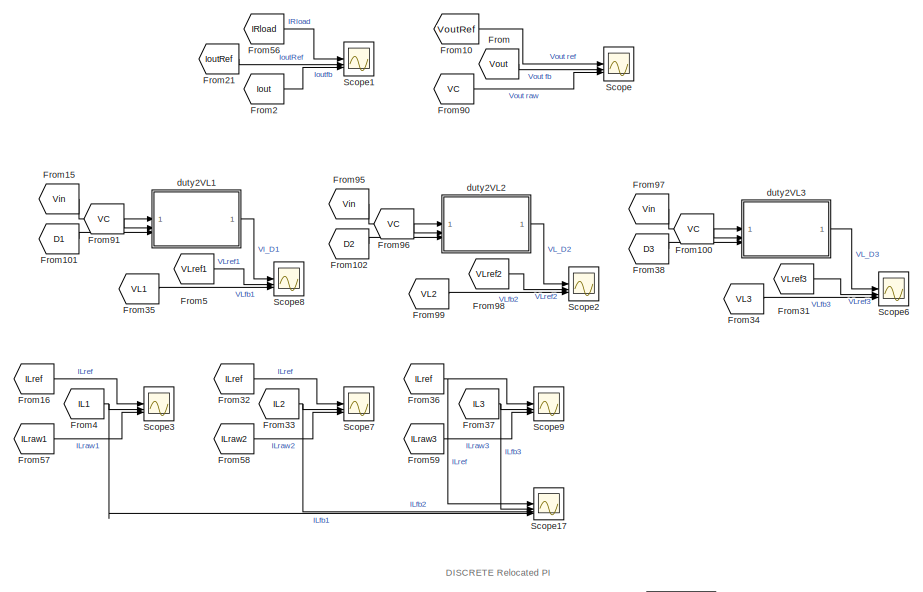
[diagram: root canvas - part 1/4, top center region]
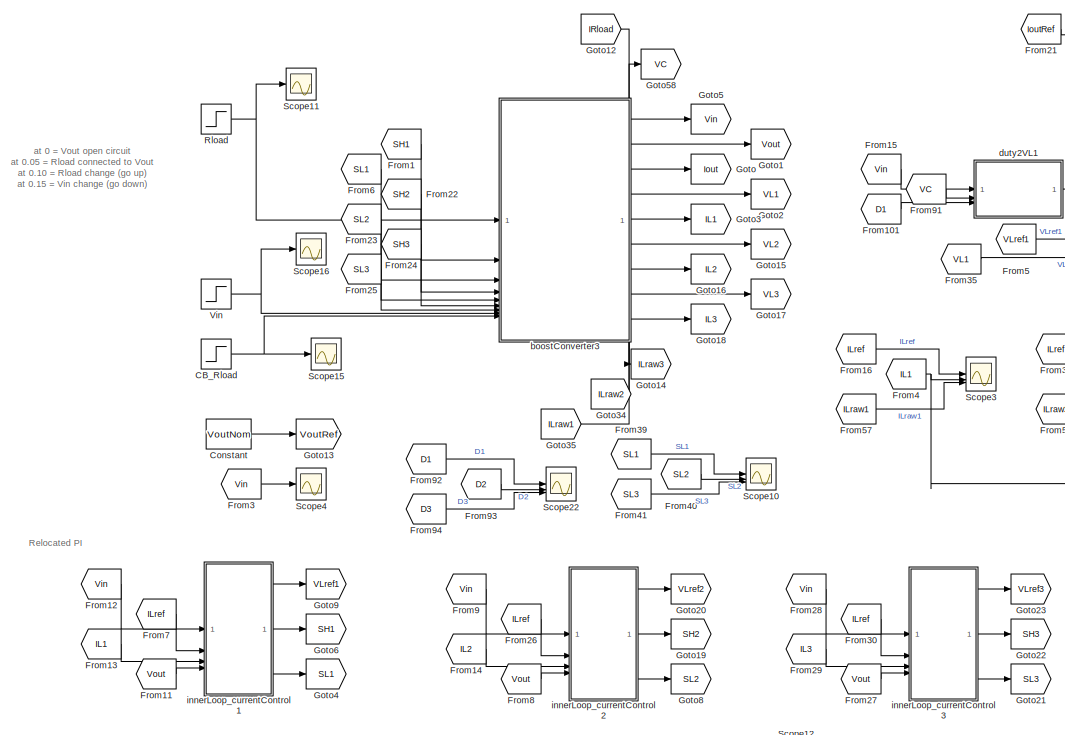
[diagram: root canvas - part 2/4, top left region]
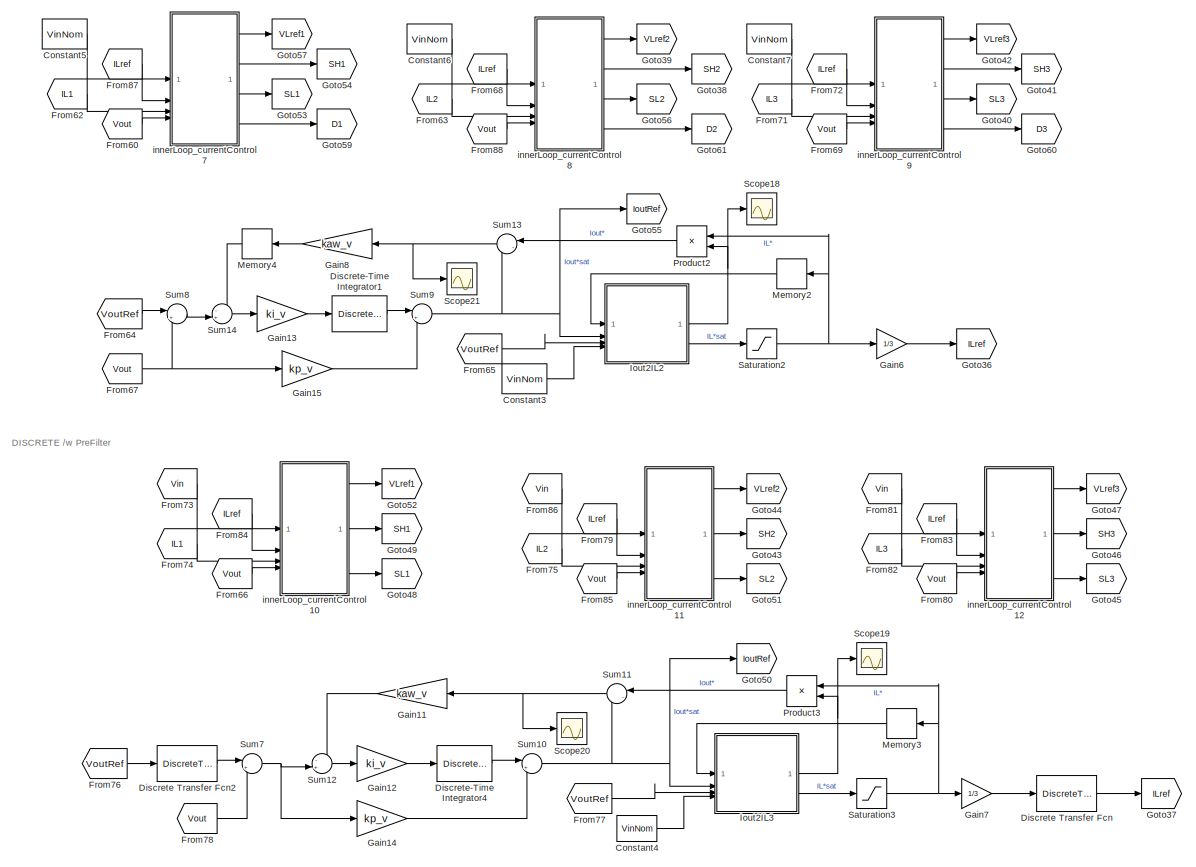
[diagram: root canvas - part 3/4, bottom right region]
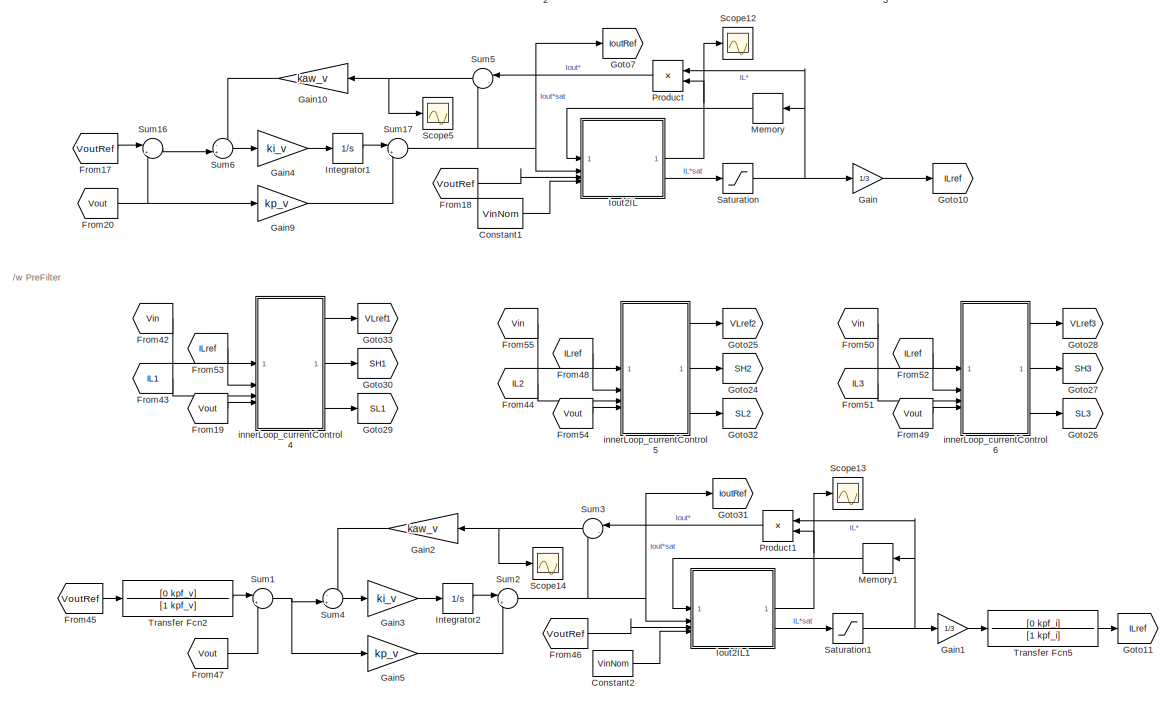
[diagram: root canvas - part 4/4, bottom left region]
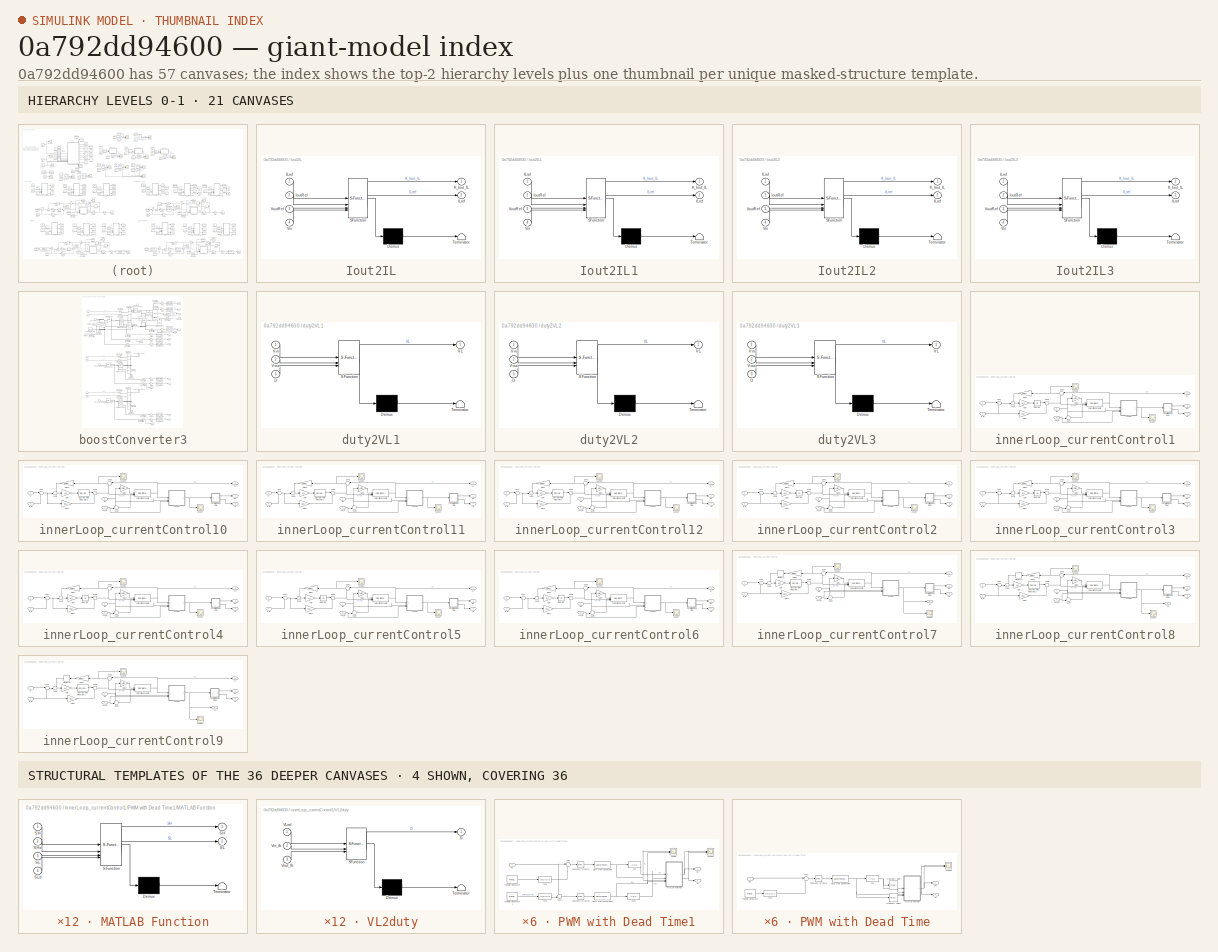
[diagram: thumbnail index - top-2 hierarchy levels (21 canvases) + 4 structural-template representatives of the remaining 36 canvases]
MODEL slx_0a792dd94600
KIND model
CONFIG AbsTol = auto
CONFIG EnableMultiTasking = off
CONFIG FixedStep = Tstep
CONFIG MaxStep = auto
CONFIG MinStep = auto
CONFIG RelTol = 1e-3
CONFIG SampleTimeConstraint = Unconstrained
CONFIG SolverName = VariableStepAuto
CONFIG StartTime = 0.0
CONFIG StopTime = Tsim_outLoop
BLOCK [Step] CB_Rload
  SampleTime = 0
  Time = 0.05
BLOCK [Constant] Constant
  Value = VoutNom
BLOCK [Constant] Constant1
  Commented = on
  Value = VinNom
BLOCK [Constant] Constant2
  Commented = on
  Value = VinNom
BLOCK [Constant] Constant3
  Value = VinNom
BLOCK [Constant] Constant4
  Commented = on
  Value = VinNom
BLOCK [Constant] Constant5
  Value = VinNom
BLOCK [Constant] Constant6
  Value = VinNom
BLOCK [Constant] Constant7
  Value = VinNom
BLOCK [DiscreteTransferFcn] Discrete Transfer Fcn
  Commented = on
  Denominator = zden_pf_i
  InputPortMap = u0
  Numerator = znum_pf_i
BLOCK [DiscreteTransferFcn] Discrete Transfer Fcn2
  Commented = on
  Denominator = zden_pf_v
  InputPortMap = u0
  Numerator = znum_pf_v
BLOCK [DiscreteIntegrator] Discrete-Time Integrator1
  ICPrevOutput = DiscIntNeverNeededParam
  ICPrevScaledInput = DiscIntNeverNeededParam
  InitialConditionSetting = Auto
  IntegratorMethod = Integration: Trapezoidal
  SampleTime = Tsw
BLOCK [DiscreteIntegrator] Discrete-Time Integrator4
  Commented = on
  ICPrevOutput = DiscIntNeverNeededParam
  ICPrevScaledInput = DiscIntNeverNeededParam
  InitialConditionSetting = Auto
  IntegratorMethod = Integration: Trapezoidal
  SampleTime = Tsw
BLOCK [From] From
  GotoTag = Vout
BLOCK [From] From1
  GotoTag = SH1
BLOCK [From] From10
  GotoTag = VoutRef
BLOCK [From] From100
  GotoTag = VC
BLOCK [From] From101
  GotoTag = D1
BLOCK [From] From102
  GotoTag = D2
BLOCK [From] From11
  Commented = on
  GotoTag = Vout
BLOCK [From] From12
  Commented = on
  GotoTag = Vin
BLOCK [From] From13
  Commented = on
  GotoTag = IL1
BLOCK [From] From14
  Commented = on
  GotoTag = IL2
BLOCK [From] From15
  GotoTag = Vin
BLOCK [From] From16
  GotoTag = ILref
BLOCK [From] From17
  Commented = on
  GotoTag = VoutRef
BLOCK [From] From18
  Commented = on
  GotoTag = VoutRef
BLOCK [From] From19
  Commented = on
  GotoTag = Vout
BLOCK [From] From2
  GotoTag = Iout
BLOCK [From] From20
  Commented = on
  GotoTag = Vout
BLOCK [From] From21
  GotoTag = IoutRef
BLOCK [From] From22
  GotoTag = SH2
BLOCK [From] From23
  GotoTag = SL2
BLOCK [From] From24
  GotoTag = SH3
BLOCK [From] From25
  GotoTag = SL3
BLOCK [From] From26
  Commented = on
  GotoTag = ILref
BLOCK [From] From27
  Commented = on
  GotoTag = Vout
BLOCK [From] From28
  Commented = on
  GotoTag = Vin
BLOCK [From] From29
  Commented = on
  GotoTag = IL3
BLOCK [From] From3
  GotoTag = Vin
BLOCK [From] From30
  Commented = on
  GotoTag = ILref
BLOCK [From] From31
  GotoTag = VLref3
BLOCK [From] From32
  GotoTag = ILref
BLOCK [From] From33
  GotoTag = IL2
BLOCK [From] From34
  GotoTag = VL3
BLOCK [From] From35
  GotoTag = VL1
BLOCK [From] From36
  GotoTag = ILref
BLOCK [From] From37
  GotoTag = IL3
BLOCK [From] From38
  GotoTag = D3
BLOCK [From] From39
  GotoTag = SL1
BLOCK [From] From4
  GotoTag = IL1
BLOCK [From] From40
  GotoTag = SL2
BLOCK [From] From41
  GotoTag = SL3
BLOCK [From] From42
  Commented = on
  GotoTag = Vin
BLOCK [From] From43
  Commented = on
  GotoTag = IL1
BLOCK [From] From44
  Commented = on
  GotoTag = IL2
BLOCK [From] From45
  Commented = on
  GotoTag = VoutRef
BLOCK [From] From46
  Commented = on
  GotoTag = VoutRef
BLOCK [From] From47
  Commented = on
  GotoTag = Vout
BLOCK [From] From48
  Commented = on
  GotoTag = ILref
BLOCK [From] From49
  Commented = on
  GotoTag = Vout
BLOCK [From] From5
  GotoTag = VLref1
BLOCK [From] From50
  Commented = on
  GotoTag = Vin
BLOCK [From] From51
  Commented = on
  GotoTag = IL3
BLOCK [From] From52
  Commented = on
  GotoTag = ILref
BLOCK [From] From53
  Commented = on
  GotoTag = ILref
BLOCK [From] From54
  Commented = on
  GotoTag = Vout
BLOCK [From] From55
  Commented = on
  GotoTag = Vin
BLOCK [From] From56
  GotoTag = IRload
BLOCK [From] From57
  GotoTag = ILraw1
BLOCK [From] From58
  GotoTag = ILraw2
BLOCK [From] From59
  GotoTag = ILraw3
BLOCK [From] From6
  GotoTag = SL1
BLOCK [From] From60
  GotoTag = Vout
BLOCK [From] From62
  GotoTag = IL1
BLOCK [From] From63
  GotoTag = IL2
BLOCK [From] From64
  GotoTag = VoutRef
BLOCK [From] From65
  GotoTag = VoutRef
BLOCK [From] From66
  Commented = on
  GotoTag = Vout
BLOCK [From] From67
  GotoTag = Vout
BLOCK [From] From68
  GotoTag = ILref
BLOCK [From] From69
  GotoTag = Vout
BLOCK [From] From7
  Commented = on
  GotoTag = ILref
BLOCK [From] From71
  GotoTag = IL3
BLOCK [From] From72
  GotoTag = ILref
BLOCK [From] From73
  Commented = on
  GotoTag = Vin
BLOCK [From] From74
  Commented = on
  GotoTag = IL1
BLOCK [From] From75
  Commented = on
  GotoTag = IL2
BLOCK [From] From76
  Commented = on
  GotoTag = VoutRef
BLOCK [From] From77
  Commented = on
  GotoTag = VoutRef
BLOCK [From] From78
  Commented = on
  GotoTag = Vout
BLOCK [From] From79
  Commented = on
  GotoTag = ILref
BLOCK [From] From8
  Commented = on
  GotoTag = Vout
BLOCK [From] From80
  Commented = on
  GotoTag = Vout
BLOCK [From] From81
  Commented = on
  GotoTag = Vin
BLOCK [From] From82
  Commented = on
  GotoTag = IL3
BLOCK [From] From83
  Commented = on
  GotoTag = ILref
BLOCK [From] From84
  Commented = on
  GotoTag = ILref
BLOCK [From] From85
  Commented = on
  GotoTag = Vout
BLOCK [From] From86
  Commented = on
  GotoTag = Vin
BLOCK [From] From87
  GotoTag = ILref
BLOCK [From] From88
  GotoTag = Vout
BLOCK [From] From9
  Commented = on
  GotoTag = Vin
BLOCK [From] From90
  GotoTag = VC
BLOCK [From] From91
  GotoTag = VC
BLOCK [From] From92
  GotoTag = D1
BLOCK [From] From93
  GotoTag = D2
BLOCK [From] From94
  GotoTag = D3
BLOCK [From] From95
  GotoTag = Vin
BLOCK [From] From96
  GotoTag = VC
BLOCK [From] From97
  GotoTag = Vin
BLOCK [From] From98
  GotoTag = VLref2
BLOCK [From] From99
  GotoTag = VL2
BLOCK [Gain] Gain
  Commented = on
  Gain = 1/3
BLOCK [Gain] Gain1
  Commented = on
  Gain = 1/3
BLOCK [Gain] Gain10
  Commented = on
  Gain = kaw_v
  NameLocation = top
BLOCK [Gain] Gain11
  Commented = on
  Gain = kaw_v
  NameLocation = top
BLOCK [Gain] Gain12
  Commented = on
  Gain = ki_v
BLOCK [Gain] Gain13
  Gain = ki_v
BLOCK [Gain] Gain14
  Commented = on
  Gain = kp_v
BLOCK [Gain] Gain15
  Gain = kp_v
BLOCK [Gain] Gain2
  Commented = on
  Gain = kaw_v
  NameLocation = top
BLOCK [Gain] Gain3
  Commented = on
  Gain = ki_v
BLOCK [Gain] Gain4
  Commented = on
  Gain = ki_v
BLOCK [Gain] Gain5
  Commented = on
  Gain = kp_v
BLOCK [Gain] Gain6
  Gain = 1/3
BLOCK [Gain] Gain7
  Commented = on
  Gain = 1/3
BLOCK [Gain] Gain8
  Gain = kaw_v
  NameLocation = top
BLOCK [Gain] Gain9
  Commented = on
  Gain = kp_v
BLOCK [Goto] Goto
  GotoTag = Iout
BLOCK [Goto] Goto1
  GotoTag = Vout
BLOCK [Goto] Goto10
  Commented = on
  GotoTag = ILref
BLOCK [Goto] Goto11
  Commented = on
  GotoTag = ILref
BLOCK [Goto] Goto12
  GotoTag = IRload
BLOCK [Goto] Goto13
  GotoTag = VoutRef
BLOCK [Goto] Goto14
  GotoTag = ILraw3
BLOCK [Goto] Goto15
  GotoTag = VL2
BLOCK [Goto] Goto16
  GotoTag = IL2
BLOCK [Goto] Goto17
  GotoTag = VL3
BLOCK [Goto] Goto18
  GotoTag = IL3
BLOCK [Goto] Goto19
  Commented = on
  GotoTag = SH2
BLOCK [Goto] Goto2
  GotoTag = VL1
BLOCK [Goto] Goto20
  Commented = on
  GotoTag = VLref2
BLOCK [Goto] Goto21
  Commented = on
  GotoTag = SL3
BLOCK [Goto] Goto22
  Commented = on
  GotoTag = SH3
BLOCK [Goto] Goto23
  Commented = on
  GotoTag = VLref3
BLOCK [Goto] Goto24
  Commented = on
  GotoTag = SH2
BLOCK [Goto] Goto25
  Commented = on
  GotoTag = VLref2
BLOCK [Goto] Goto26
  Commented = on
  GotoTag = SL3
BLOCK [Goto] Goto27
  Commented = on
  GotoTag = SH3
BLOCK [Goto] Goto28
  Commented = on
  GotoTag = VLref3
BLOCK [Goto] Goto29
  Commented = on
  GotoTag = SL1
BLOCK [Goto] Goto3
  GotoTag = IL1
BLOCK [Goto] Goto30
  Commented = on
  GotoTag = SH1
BLOCK [Goto] Goto31
  Commented = on
  GotoTag = IoutRef
BLOCK [Goto] Goto32
  Commented = on
  GotoTag = SL2
BLOCK [Goto] Goto33
  Commented = on
  GotoTag = VLref1
BLOCK [Goto] Goto34
  GotoTag = ILraw2
BLOCK [Goto] Goto35
  GotoTag = ILraw1
BLOCK [Goto] Goto36
  GotoTag = ILref
BLOCK [Goto] Goto37
  Commented = on
  GotoTag = ILref
BLOCK [Goto] Goto38
  GotoTag = SH2
BLOCK [Goto] Goto39
  GotoTag = VLref2
BLOCK [Goto] Goto4
  Commented = on
  GotoTag = SL1
BLOCK [Goto] Goto40
  GotoTag = SL3
BLOCK [Goto] Goto41
  GotoTag = SH3
BLOCK [Goto] Goto42
  GotoTag = VLref3
BLOCK [Goto] Goto43
  Commented = on
  GotoTag = SH2
BLOCK [Goto] Goto44
  Commented = on
  GotoTag = VLref2
BLOCK [Goto] Goto45
  Commented = on
  GotoTag = SL3
BLOCK [Goto] Goto46
  Commented = on
  GotoTag = SH3
BLOCK [Goto] Goto47
  Commented = on
  GotoTag = VLref3
BLOCK [Goto] Goto48
  Commented = on
  GotoTag = SL1
BLOCK [Goto] Goto49
  Commented = on
  GotoTag = SH1
BLOCK [Goto] Goto5
  GotoTag = Vin
BLOCK [Goto] Goto50
  Commented = on
  GotoTag = IoutRef
BLOCK [Goto] Goto51
  Commented = on
  GotoTag = SL2
BLOCK [Goto] Goto52
  Commented = on
  GotoTag = VLref1
BLOCK [Goto] Goto53
  GotoTag = SL1
BLOCK [Goto] Goto54
  GotoTag = SH1
BLOCK [Goto] Goto55
  GotoTag = IoutRef
BLOCK [Goto] Goto56
  GotoTag = SL2
BLOCK [Goto] Goto57
  GotoTag = VLref1
BLOCK [Goto] Goto58
  GotoTag = VC
BLOCK [Goto] Goto59
  GotoTag = D1
BLOCK [Goto] Goto6
  Commented = on
  GotoTag = SH1
BLOCK [Goto] Goto60
  GotoTag = D3
BLOCK [Goto] Goto61
  GotoTag = D2
BLOCK [Goto] Goto7
  Commented = on
  GotoTag = IoutRef
BLOCK [Goto] Goto8
  Commented = on
  GotoTag = SL2
BLOCK [Goto] Goto9
  Commented = on
  GotoTag = VLref1
BLOCK [Integrator] Integrator1
  Commented = on
BLOCK [Integrator] Integrator2
  Commented = on
BLOCK [SubSystem] Iout2IL
  Commented = on
  ErrorFcn = Stateflow.Translate.translate
  PermitHierarchicalResolution = ExplicitOnly
  SFBlockType = MATLAB Function
  TreatAsAtomicUnit = on
BLOCK [Demux] Iout2IL/ Demux 
  Outputs = 1
BLOCK [S-Function] Iout2IL/ SFunction 
  EnableBusSupport = on
  FunctionName = sf_sfun
  Parameters = RserL
  PortCounts = [4 3]
  SFcnIsStateOwnerBlock = off
  SFunctionDeploymentMode = off
  Tag = Stateflow S-Function 3
BLOCK [Terminator] Iout2IL/ Terminator 
BLOCK [Outport] Iout2IL/ILref
  Port = 2
  VectorParamsAs1DForOutWhenUnconnected = off
BLOCK [Inport] Iout2IL/ILref 
BLOCK [Inport] Iout2IL/IoutRef
  Port = 2
BLOCK [Outport] Iout2IL/K_Iout_IL
  VectorParamsAs1DForOutWhenUnconnected = off
BLOCK [Inport] Iout2IL/Vin
  Port = 4
BLOCK [Inport] Iout2IL/VoutRef
  Port = 3
BLOCK [SubSystem] Iout2IL1
  Commented = on
  ErrorFcn = Stateflow.Translate.translate
  PermitHierarchicalResolution = ExplicitOnly
  SFBlockType = MATLAB Function
  TreatAsAtomicUnit = on
BLOCK [Demux] Iout2IL1/ Demux 
  Outputs = 1
BLOCK [S-Function] Iout2IL1/ SFunction 
  EnableBusSupport = off
  FunctionName = sf_sfun
  Parameters = RserL
  PortCounts = [4 3]
  SFcnIsStateOwnerBlock = off
  SFunctionDeploymentMode = off
  Tag = Stateflow S-Function 6
BLOCK [Terminator] Iout2IL1/ Terminator 
BLOCK [Outport] Iout2IL1/ILref
  Port = 2
  VectorParamsAs1DForOutWhenUnconnected = off
BLOCK [Inport] Iout2IL1/ILref 
BLOCK [Inport] Iout2IL1/IoutRef
  Port = 2
BLOCK [Outport] Iout2IL1/K_Iout_IL
  VectorParamsAs1DForOutWhenUnconnected = off
BLOCK [Inport] Iout2IL1/Vin
  Port = 4
BLOCK [Inport] Iout2IL1/VoutRef
  Port = 3
BLOCK [SubSystem] Iout2IL2
  ErrorFcn = Stateflow.Translate.translate
  PermitHierarchicalResolution = ExplicitOnly
  SFBlockType = MATLAB Function
  TreatAsAtomicUnit = on
BLOCK [Demux] Iout2IL2/ Demux 
  Outputs = 1
BLOCK [S-Function] Iout2IL2/ SFunction 
  EnableBusSupport = on
  FunctionName = sf_sfun
  Parameters = RserL
  PortCounts = [4 3]
  SFcnIsStateOwnerBlock = off
  SFunctionDeploymentMode = off
  Tag = Stateflow S-Function 8
BLOCK [Terminator] Iout2IL2/ Terminator 
BLOCK [Outport] Iout2IL2/ILref
  Port = 2
  VectorParamsAs1DForOutWhenUnconnected = off
BLOCK [Inport] Iout2IL2/ILref 
BLOCK [Inport] Iout2IL2/IoutRef
  Port = 2
BLOCK [Outport] Iout2IL2/K_Iout_IL
  VectorParamsAs1DForOutWhenUnconnected = off
BLOCK [Inport] Iout2IL2/Vin
  Port = 4
BLOCK [Inport] Iout2IL2/VoutRef
  Port = 3
BLOCK [SubSystem] Iout2IL3
  Commented = on
  ErrorFcn = Stateflow.Translate.translate
  PermitHierarchicalResolution = ExplicitOnly
  SFBlockType = MATLAB Function
  TreatAsAtomicUnit = on
BLOCK [Demux] Iout2IL3/ Demux 
  Outputs = 1
BLOCK [S-Function] Iout2IL3/ SFunction 
  EnableBusSupport = on
  FunctionName = sf_sfun
  Parameters = RserL
  PortCounts = [4 3]
  SFcnIsStateOwnerBlock = off
  SFunctionDeploymentMode = off
  Tag = Stateflow S-Function 16
BLOCK [Terminator] Iout2IL3/ Terminator 
BLOCK [Outport] Iout2IL3/ILref
  Port = 2
  VectorParamsAs1DForOutWhenUnconnected = off
BLOCK [Inport] Iout2IL3/ILref 
BLOCK [Inport] Iout2IL3/IoutRef
  Port = 2
BLOCK [Outport] Iout2IL3/K_Iout_IL
  VectorParamsAs1DForOutWhenUnconnected = off
BLOCK [Inport] Iout2IL3/Vin
  Port = 4
BLOCK [Inport] Iout2IL3/VoutRef
  Port = 3
BLOCK [Memory] Memory
  Commented = on
  NameLocation = top
BLOCK [Memory] Memory1
  Commented = on
  NameLocation = top
BLOCK [Memory] Memory2
  NameLocation = top
BLOCK [Memory] Memory3
  Commented = on
  NameLocation = top
BLOCK [Memory] Memory4
  NameLocation = top
BLOCK [Product] Product
  Commented = on
  NameLocation = top
BLOCK [Product] Product1
  Commented = on
  NameLocation = top
BLOCK [Product] Product2
  NameLocation = top
BLOCK [Product] Product3
  Commented = on
  NameLocation = top
BLOCK [Step] Rload
  After = Rload*2
  Before = Rload
  SampleTime = 0
  Time = 0.1
BLOCK [Saturate] Saturation
  Commented = on
  LowerLimit = -ILmax
  UpperLimit = ILmax
BLOCK [Saturate] Saturation1
  Commented = on
  LowerLimit = -ILmax
  UpperLimit = ILmax
BLOCK [Saturate] Saturation2
  LowerLimit = -ILmax
  UpperLimit = ILmax
BLOCK [Saturate] Saturation3
  Commented = on
  LowerLimit = -ILmax
  UpperLimit = ILmax
BLOCK [Scope] Scope
  Floating = off
  NumInputPorts = 3
  ScopeSpecificationString = Simulink.scopes.TimeScopeBlockCfg('CurrentConfiguration', extmgr.ConfigurationSet(extmgr.Configuration('Core','General UI',true),extmgr.Configuration('Core','Source UI',true),extmgr.Configuration('Sources','WiredSimulink',true,'DataLoggingVariableName','ScopeData1'),extmgr.Configuration('Visuals','Time Domain',true,'SerializedDisplays',{struct('MinYLimReal','0','MaxYLimReal','70','YLabelReal','','...<+1524ch>
BLOCK [Scope] Scope1
  Floating = off
  NumInputPorts = 3
  ScopeSpecificationString = Simulink.scopes.TimeScopeBlockCfg('CurrentConfiguration', extmgr.ConfigurationSet(extmgr.Configuration('Core','General UI',true),extmgr.Configuration('Core','Source UI',true),extmgr.Configuration('Sources','WiredSimulink',true,'DataLoggingVariableName','ScopeData1'),extmgr.Configuration('Visuals','Time Domain',true,'SerializedDisplays',{struct('MinYLimReal','-16.24874','MaxYLimReal','41.06087','YL...<+1548ch>
BLOCK [Scope] Scope10
  Floating = off
  NumInputPorts = 3
  ScopeSpecificationString = Simulink.scopes.TimeScopeBlockCfg('CurrentConfiguration', extmgr.ConfigurationSet(extmgr.Configuration('Core','General UI',true),extmgr.Configuration('Core','Source UI',true),extmgr.Configuration('Sources','WiredSimulink',true,'DataLoggingVariableName','ScopeData5'),extmgr.Configuration('Visuals','Time Domain',true,'SerializedDisplays',{struct('MinYLimReal','-0.125','MaxYLimReal','1.125','YLabelRe...<+1474ch>
BLOCK [Scope] Scope11
  Floating = off
  NumInputPorts = 1
  ScopeSpecificationString = Simulink.scopes.TimeScopeBlockCfg('CurrentConfiguration', extmgr.ConfigurationSet(extmgr.Configuration('Core','General UI',true),extmgr.Configuration('Core','Source UI',true),extmgr.Configuration('Sources','WiredSimulink',true,'DataLoggingVariableName','ScopeData1'),extmgr.Configuration('Visuals','Time Domain',true,'SerializedDisplays',{struct('MinYLimReal','2.5','MaxYLimReal','22.5','YLabelReal',...<+1337ch>
BLOCK [Scope] Scope12
  Commented = on
  Floating = off
  NumInputPorts = 1
  ScopeSpecificationString = Simulink.scopes.TimeScopeBlockCfg('CurrentConfiguration', extmgr.ConfigurationSet(extmgr.Configuration('Core','General UI',true),extmgr.Configuration('Core','Source UI',true),extmgr.Configuration('Sources','WiredSimulink',true,'DataLoggingVariableName','ScopeData1'),extmgr.Configuration('Visuals','Time Domain',true,'SerializedDisplays',{struct('MinYLimReal','1.04374','MaxYLimReal','1.64016','YLabe...<+1374ch>
BLOCK [Scope] Scope13
  Commented = on
  Floating = off
  NumInputPorts = 1
  ScopeSpecificationString = Simulink.scopes.TimeScopeBlockCfg('CurrentConfiguration', extmgr.ConfigurationSet(extmgr.Configuration('Core','General UI',true),extmgr.Configuration('Core','Source UI',true),extmgr.Configuration('Sources','WiredSimulink',true,'DataLoggingVariableName','ScopeData3'),extmgr.Configuration('Visuals','Time Domain',true,'SerializedDisplays',{struct('MinYLimReal','1.04374','MaxYLimReal','1.64016','YLabe...<+1374ch>
BLOCK [Scope] Scope14
  Commented = on
  Floating = off
  NumInputPorts = 1
  ScopeSpecificationString = Simulink.scopes.TimeScopeBlockCfg('CurrentConfiguration', extmgr.ConfigurationSet(extmgr.Configuration('Core','General UI',true),extmgr.Configuration('Core','Source UI',true),extmgr.Configuration('Sources','WiredSimulink',true,'DataLoggingVariableName','ScopeData4'),extmgr.Configuration('Visuals','Time Domain',true,'SerializedDisplays',{struct('MinYLimReal','-0.0000000000000011','MaxYLimReal','0.0...<+1570ch>
BLOCK [Scope] Scope15
  Floating = off
  NumInputPorts = 1
  ScopeSpecificationString = Simulink.scopes.TimeScopeBlockCfg('CurrentConfiguration', extmgr.ConfigurationSet(extmgr.Configuration('Core','General UI',true),extmgr.Configuration('Core','Source UI',true),extmgr.Configuration('Sources','WiredSimulink',true,'DataLoggingVariableName','ScopeData1'),extmgr.Configuration('Visuals','Time Domain',true,'SerializedDisplays',{struct('MinYLimReal','0.9','MaxYLimReal','1.1','YLabelReal','...<+1333ch>
BLOCK [Scope] Scope16
  Floating = off
  NumInputPorts = 1
  ScopeSpecificationString = Simulink.scopes.TimeScopeBlockCfg('CurrentConfiguration', extmgr.ConfigurationSet(extmgr.Configuration('Core','General UI',true),extmgr.Configuration('Core','Source UI',true),extmgr.Configuration('Sources','WiredSimulink',true,'DataLoggingVariableName','ScopeData2'),extmgr.Configuration('Visuals','Time Domain',true,'SerializedDisplays',{struct('MinYLimReal','18.75','MaxYLimReal','31.25','YLabelRea...<+1344ch>
BLOCK [Scope] Scope17
  Floating = off
  NumInputPorts = 4
  ScopeSpecificationString = Simulink.scopes.TimeScopeBlockCfg('CurrentConfiguration', extmgr.ConfigurationSet(extmgr.Configuration('Core','General UI',true),extmgr.Configuration('Core','Source UI',true),extmgr.Configuration('Sources','WiredSimulink',true,'DataLoggingVariableName','ScopeData1'),extmgr.Configuration('Visuals','Time Domain',true,'SerializedDisplays',{struct('MinYLimReal','-8','MaxYLimReal','13','YLabelReal','',...<+1617ch>
BLOCK [Scope] Scope18
  Floating = off
  NumInputPorts = 1
  ScopeSpecificationString = Simulink.scopes.TimeScopeBlockCfg('CurrentConfiguration', extmgr.ConfigurationSet(extmgr.Configuration('Core','General UI',true),extmgr.Configuration('Core','Source UI',true),extmgr.Configuration('Sources','WiredSimulink',true,'DataLoggingVariableName','ScopeData1'),extmgr.Configuration('Visuals','Time Domain',true,'SerializedDisplays',{struct('MinYLimReal','1.04374','MaxYLimReal','1.64016','YLabe...<+1374ch>
BLOCK [Scope] Scope19
  Commented = on
  Floating = off
  NumInputPorts = 1
  ScopeSpecificationString = Simulink.scopes.TimeScopeBlockCfg('CurrentConfiguration', extmgr.ConfigurationSet(extmgr.Configuration('Core','General UI',true),extmgr.Configuration('Core','Source UI',true),extmgr.Configuration('Sources','WiredSimulink',true,'DataLoggingVariableName','ScopeData2'),extmgr.Configuration('Visuals','Time Domain',true,'SerializedDisplays',{struct('MinYLimReal','1.04374','MaxYLimReal','1.64016','YLabe...<+1374ch>
BLOCK [Scope] Scope2
  Floating = off
  NumInputPorts = 3
  ScopeSpecificationString = Simulink.scopes.TimeScopeBlockCfg('CurrentConfiguration', extmgr.ConfigurationSet(extmgr.Configuration('Core','General UI',true),extmgr.Configuration('Core','Source UI',true),extmgr.Configuration('Sources','WiredSimulink',true,'DataLoggingVariableName','ScopeData8'),extmgr.Configuration('Visuals','Time Domain',true,'SerializedDisplays',{struct('MinYLimReal','-113.80492','MaxYLimReal','151.46488','...<+1506ch>
BLOCK [Scope] Scope20
  Commented = on
  Floating = off
  NumInputPorts = 1
  ScopeSpecificationString = Simulink.scopes.TimeScopeBlockCfg('CurrentConfiguration', extmgr.ConfigurationSet(extmgr.Configuration('Core','General UI',true),extmgr.Configuration('Core','Source UI',true),extmgr.Configuration('Sources','WiredSimulink',true,'DataLoggingVariableName','ScopeData3'),extmgr.Configuration('Visuals','Time Domain',true,'SerializedDisplays',{struct('MinYLimReal','-0.0000000000000011','MaxYLimReal','0.0...<+1570ch>
BLOCK [Scope] Scope21
  Floating = off
  NumInputPorts = 1
  ScopeSpecificationString = Simulink.scopes.TimeScopeBlockCfg('CurrentConfiguration', extmgr.ConfigurationSet(extmgr.Configuration('Core','General UI',true),extmgr.Configuration('Core','Source UI',true),extmgr.Configuration('Sources','WiredSimulink',true,'DataLoggingVariableName','ScopeData4'),extmgr.Configuration('Visuals','Time Domain',true,'SerializedDisplays',{struct('MinYLimReal','-0.98393','MaxYLimReal','0.10933','YLab...<+1482ch>
BLOCK [Scope] Scope22
  Floating = off
  NumInputPorts = 3
  ScopeSpecificationString = Simulink.scopes.TimeScopeBlockCfg('CurrentConfiguration', extmgr.ConfigurationSet(extmgr.Configuration('Core','General UI',true),extmgr.Configuration('Core','Source UI',true),extmgr.Configuration('Sources','WiredSimulink',true,'DataLoggingVariableName','ScopeData2'),extmgr.Configuration('Visuals','Time Domain',true,'SerializedDisplays',{struct('MinYLimReal','-0.1','MaxYLimReal','1','YLabelReal',''...<+1597ch>
BLOCK [Scope] Scope3
  Floating = off
  NumInputPorts = 3
  ScopeSpecificationString = Simulink.scopes.TimeScopeBlockCfg('CurrentConfiguration', extmgr.ConfigurationSet(extmgr.Configuration('Core','General UI',true),extmgr.Configuration('Core','Source UI',true),extmgr.Configuration('Sources','WiredSimulink',true,'DataLoggingVariableName','ScopeData3'),extmgr.Configuration('Visuals','Time Domain',true,'SerializedDisplays',{struct('MinYLimReal','-7.68117','MaxYLimReal','13.93927','YLa...<+1612ch>
BLOCK [Scope] Scope4
  Floating = off
  NumInputPorts = 1
  ScopeSpecificationString = Simulink.scopes.TimeScopeBlockCfg('CurrentConfiguration', extmgr.ConfigurationSet(extmgr.Configuration('Core','General UI',true),extmgr.Configuration('Core','Source UI',true),extmgr.Configuration('Sources','WiredSimulink',true,'DataLoggingVariableName','ScopeData4'),extmgr.Configuration('Visuals','Time Domain',true),extmgr.Configuration('Tools','Plot Navigation',true),extmgr.Configuration('Tools',...<+40ch>
BLOCK [Scope] Scope5
  Commented = on
  Floating = off
  NumInputPorts = 1
  ScopeSpecificationString = Simulink.scopes.TimeScopeBlockCfg('CurrentConfiguration', extmgr.ConfigurationSet(extmgr.Configuration('Core','General UI',true),extmgr.Configuration('Core','Source UI',true),extmgr.Configuration('Sources','WiredSimulink',true,'DataLoggingVariableName','ScopeData2'),extmgr.Configuration('Visuals','Time Domain',true,'SerializedDisplays',{struct('MinYLimReal','-0.98393','MaxYLimReal','0.10933','YLab...<+1482ch>
BLOCK [Scope] Scope6
  Floating = off
  NumInputPorts = 3
  ScopeSpecificationString = Simulink.scopes.TimeScopeBlockCfg('CurrentConfiguration', extmgr.ConfigurationSet(extmgr.Configuration('Core','General UI',true),extmgr.Configuration('Core','Source UI',true),extmgr.Configuration('Sources','WiredSimulink',true,'DataLoggingVariableName','ScopeData9'),extmgr.Configuration('Visuals','Time Domain',true,'SerializedDisplays',{struct('MinYLimReal','-33.23663','MaxYLimReal','37.02629','YL...<+1520ch>
BLOCK [Scope] Scope7
  Floating = off
  NumInputPorts = 3
  ScopeSpecificationString = Simulink.scopes.TimeScopeBlockCfg('CurrentConfiguration', extmgr.ConfigurationSet(extmgr.Configuration('Core','General UI',true),extmgr.Configuration('Core','Source UI',true),extmgr.Configuration('Sources','WiredSimulink',true,'DataLoggingVariableName','ScopeData2'),extmgr.Configuration('Visuals','Time Domain',true,'SerializedDisplays',{struct('MinYLimReal','-7.72731','MaxYLimReal','13.94439','YLa...<+1545ch>
BLOCK [Scope] Scope8
  Floating = off
  NumInputPorts = 3
  ScopeSpecificationString = Simulink.scopes.TimeScopeBlockCfg('CurrentConfiguration', extmgr.ConfigurationSet(extmgr.Configuration('Core','General UI',true),extmgr.Configuration('Core','Source UI',true),extmgr.Configuration('Sources','WiredSimulink',true,'DataLoggingVariableName','ScopeData10'),extmgr.Configuration('Visuals','Time Domain',true,'SerializedDisplays',{struct('MinYLimReal','-33.73418','MaxYLimReal','37.07114','Y...<+1548ch>
BLOCK [Scope] Scope9
  Floating = off
  NumInputPorts = 3
  ScopeSpecificationString = Simulink.scopes.TimeScopeBlockCfg('CurrentConfiguration', extmgr.ConfigurationSet(extmgr.Configuration('Core','General UI',true),extmgr.Configuration('Core','Source UI',true),extmgr.Configuration('Sources','WiredSimulink',true,'DataLoggingVariableName','ScopeData4'),extmgr.Configuration('Visuals','Time Domain',true,'SerializedDisplays',{struct('MinYLimReal','-52.0635','MaxYLimReal','155.812','YLab...<+1442ch>
BLOCK [Sum] Sum1
  Commented = on
  Inputs = |+-
BLOCK [Sum] Sum10
  Commented = on
  Inputs = |++
BLOCK [Sum] Sum11
  Commented = on
  Inputs = |-+
  NameLocation = top
BLOCK [Sum] Sum12
  Commented = on
  Inputs = -+|
BLOCK [Sum] Sum13
  Inputs = |-+
  NameLocation = top
BLOCK [Sum] Sum14
  Inputs = -+|
BLOCK [Sum] Sum16
  Commented = on
  Inputs = |+-
BLOCK [Sum] Sum17
  Commented = on
  Inputs = |+-
BLOCK [Sum] Sum2
  Commented = on
  Inputs = |++
BLOCK [Sum] Sum3
  Commented = on
  Inputs = |-+
  NameLocation = top
BLOCK [Sum] Sum4
  Commented = on
  Inputs = -+|
BLOCK [Sum] Sum5
  Commented = on
  Inputs = |-+
  NameLocation = top
BLOCK [Sum] Sum6
  Commented = on
  Inputs = -+|
BLOCK [Sum] Sum7
  Commented = on
  Inputs = |+-
BLOCK [Sum] Sum8
  Inputs = |+-
BLOCK [Sum] Sum9
  Inputs = |+-
BLOCK [TransferFcn] Transfer Fcn2
  Commented = on
  Denominator = [1 kpf_v]
  Numerator = [0 kpf_v]
BLOCK [TransferFcn] Transfer Fcn5
  Commented = on
  Denominator = [1 kpf_i]
  Numerator = [0 kpf_i]
BLOCK [Step] Vin
  After = 20
  Before = VinNom
  SampleTime = 0
  Time = 0.15
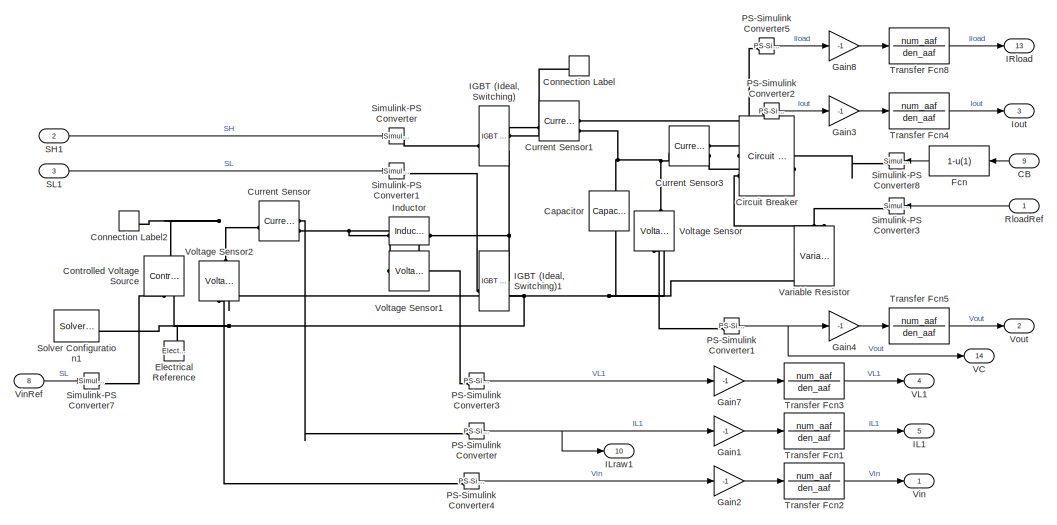
[diagram: boostConverter3 - part 1/2, full width, top band]
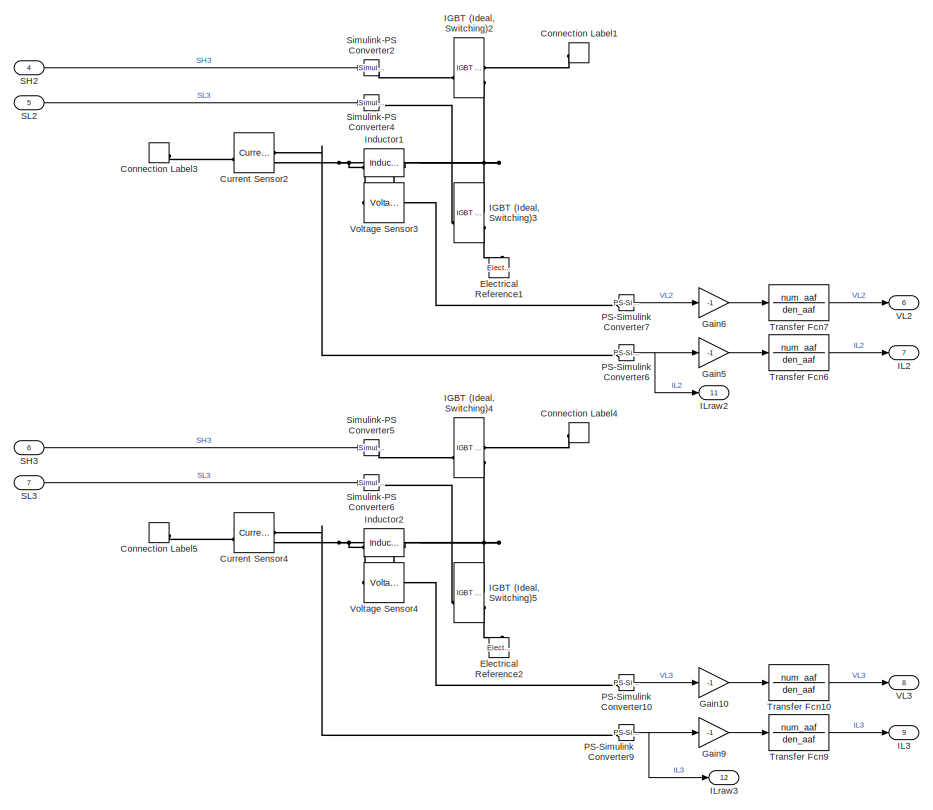
[diagram: boostConverter3 - part 2/2, full width, bottom band]
BLOCK [SubSystem] boostConverter3
  NameLocation = top
  PortSchema = {"entries":[{"content":{"sides":[{"content":{"connectorIds":["In1","In2","In3","In4","In5","In6","In7","In8","In9"]},"type":"ConnectorPlacement.EquallySpacedRectSide","uuid":"b55511d0-facb-4a91-89ed-441d6ed333ad"},{"content":{"connectorIds":["Out1","Out2","Out3","Out4","Out5","Out6","Out7","Out8","Out9"],"side":"RIGHT"},"type":"ConnectorPlacement.EquallySpacedRectSide","uuid":"ead4c989-543f-44ce-a...<+526ch>
BLOCK [Inport] boostConverter3/CB
  NameLocation = top
  Port = 9
BLOCK [Reference] boostConverter3/Capacitor  REF=fl_lib/Electrical/Electrical Elements/Capacitor
  NameLocation = left
  SourceBlock = fl_lib/Electrical/Electrical Elements/Capacitor
  SourceType = Capacitor
BLOCK [Reference] boostConverter3/Circuit Breaker  REF=ee_lib/Switches & Breakers/Circuit Breaker
  NameLocation = top
  SourceBlock = ee_lib/Switches & Breakers/Circuit Breaker
  SourceType = Circuit Breaker
BLOCK [ConnectionLabel] boostConverter3/Connection Label
  Label = Vout_DClink
BLOCK [ConnectionLabel] boostConverter3/Connection Label1
  Label = Vout_DClink
BLOCK [ConnectionLabel] boostConverter3/Connection Label2
  Label = Vin
  NameLocation = top
BLOCK [ConnectionLabel] boostConverter3/Connection Label3
  Label = Vin
  NameLocation = top
BLOCK [ConnectionLabel] boostConverter3/Connection Label4
  Label = Vout_DClink
BLOCK [ConnectionLabel] boostConverter3/Connection Label5
  Label = Vin
  NameLocation = top
BLOCK [Reference] boostConverter3/Controlled Voltage Source  REF=fl_lib/Electrical/Electrical Sources/Controlled Voltage
Source
  NameLocation = right
  SourceBlock = fl_lib/Electrical/Electrical Sources/Controlled Voltage\nSource
  SourceType = Controlled Voltage\nSource
BLOCK [Reference] boostConverter3/Current Sensor  REF=fl_lib/Electrical/Electrical Sensors/Current Sensor
  LibrarySourceBlock = ee_lib/Sensors &\nTransducers/Current Sensor
  SourceBlock = fl_lib/Electrical/Electrical Sensors/Current Sensor
  SourceType = Current Sensor
BLOCK [Reference] boostConverter3/Current Sensor1  REF=fl_lib/Electrical/Electrical Sensors/Current Sensor
  LibrarySourceBlock = ee_lib/Sensors &\nTransducers/Current Sensor
  SourceBlock = fl_lib/Electrical/Electrical Sensors/Current Sensor
  SourceType = Current Sensor
BLOCK [Reference] boostConverter3/Current Sensor2  REF=fl_lib/Electrical/Electrical Sensors/Current Sensor
  LibrarySourceBlock = ee_lib/Sensors &\nTransducers/Current Sensor
  SourceBlock = fl_lib/Electrical/Electrical Sensors/Current Sensor
  SourceType = Current Sensor
BLOCK [Reference] boostConverter3/Current Sensor3  REF=fl_lib/Electrical/Electrical Sensors/Current Sensor
  LibrarySourceBlock = ee_lib/Sensors &\nTransducers/Current Sensor
  SourceBlock = fl_lib/Electrical/Electrical Sensors/Current Sensor
  SourceType = Current Sensor
BLOCK [Reference] boostConverter3/Current Sensor4  REF=fl_lib/Electrical/Electrical Sensors/Current Sensor
  LibrarySourceBlock = ee_lib/Sensors &\nTransducers/Current Sensor
  SourceBlock = fl_lib/Electrical/Electrical Sensors/Current Sensor
  SourceType = Current Sensor
BLOCK [Reference] boostConverter3/Electrical Reference  REF=fl_lib/Electrical/Electrical Elements/Electrical Reference
  NameLocation = right
  SourceBlock = fl_lib/Electrical/Electrical Elements/Electrical Reference
  SourceType = Electrical Reference
BLOCK [Reference] boostConverter3/Electrical Reference1  REF=fl_lib/Electrical/Electrical Elements/Electrical Reference
  NameLocation = right
  SourceBlock = fl_lib/Electrical/Electrical Elements/Electrical Reference
  SourceType = Electrical Reference
BLOCK [Reference] boostConverter3/Electrical Reference2  REF=fl_lib/Electrical/Electrical Elements/Electrical Reference
  NameLocation = right
  SourceBlock = fl_lib/Electrical/Electrical Elements/Electrical Reference
  SourceType = Electrical Reference
BLOCK [Fcn] boostConverter3/Fcn
  Expr = 1-u(1)
  NameLocation = top
BLOCK [Gain] boostConverter3/Gain1
  Gain = -1
BLOCK [Gain] boostConverter3/Gain10
  Gain = -1
BLOCK [Gain] boostConverter3/Gain2
  Gain = -1
BLOCK [Gain] boostConverter3/Gain3
  Gain = -1
BLOCK [Gain] boostConverter3/Gain4
  Gain = -1
BLOCK [Gain] boostConverter3/Gain5
  Gain = -1
BLOCK [Gain] boostConverter3/Gain6
  Gain = -1
BLOCK [Gain] boostConverter3/Gain7
  Gain = -1
BLOCK [Gain] boostConverter3/Gain8
  Gain = -1
BLOCK [Gain] boostConverter3/Gain9
  Gain = -1
BLOCK [Reference] boostConverter3/IGBT (Ideal, Switching)  REF=ee_lib/Semiconductors &
Converters/IGBT
(Ideal,
Switching)
  SourceBlock = ee_lib/Semiconductors &\nConverters/IGBT\n(Ideal,\nSwitching)
  SourceType = IGBT\n(Ideal,\nSwitching)
BLOCK [Reference] boostConverter3/IGBT (Ideal, Switching)1  REF=ee_lib/Semiconductors &
Converters/IGBT
(Ideal,
Switching)
  SourceBlock = ee_lib/Semiconductors &\nConverters/IGBT\n(Ideal,\nSwitching)
  SourceType = IGBT\n(Ideal,\nSwitching)
BLOCK [Reference] boostConverter3/IGBT (Ideal, Switching)2  REF=ee_lib/Semiconductors &
Converters/IGBT
(Ideal,
Switching)
  SourceBlock = ee_lib/Semiconductors &\nConverters/IGBT\n(Ideal,\nSwitching)
  SourceType = IGBT\n(Ideal,\nSwitching)
BLOCK [Reference] boostConverter3/IGBT (Ideal, Switching)3  REF=ee_lib/Semiconductors &
Converters/IGBT
(Ideal,
Switching)
  SourceBlock = ee_lib/Semiconductors &\nConverters/IGBT\n(Ideal,\nSwitching)
  SourceType = IGBT\n(Ideal,\nSwitching)
BLOCK [Reference] boostConverter3/IGBT (Ideal, Switching)4  REF=ee_lib/Semiconductors &
Converters/IGBT
(Ideal,
Switching)
  SourceBlock = ee_lib/Semiconductors &\nConverters/IGBT\n(Ideal,\nSwitching)
  SourceType = IGBT\n(Ideal,\nSwitching)
BLOCK [Reference] boostConverter3/IGBT (Ideal, Switching)5  REF=ee_lib/Semiconductors &
Converters/IGBT
(Ideal,
Switching)
  SourceBlock = ee_lib/Semiconductors &\nConverters/IGBT\n(Ideal,\nSwitching)
  SourceType = IGBT\n(Ideal,\nSwitching)
BLOCK [Outport] boostConverter3/IL1
  Port = 5
BLOCK [Outport] boostConverter3/IL2
  Port = 7
BLOCK [Outport] boostConverter3/IL3
  Port = 9
BLOCK [Outport] boostConverter3/ILraw1
  Port = 10
BLOCK [Outport] boostConverter3/ILraw2
  Port = 11
BLOCK [Outport] boostConverter3/ILraw3
  Port = 12
BLOCK [Outport] boostConverter3/IRload
  Port = 13
BLOCK [Reference] boostConverter3/Inductor  REF=fl_lib/Electrical/Electrical Elements/Inductor
  SourceBlock = fl_lib/Electrical/Electrical Elements/Inductor
  SourceType = Inductor
BLOCK [Reference] boostConverter3/Inductor1  REF=fl_lib/Electrical/Electrical Elements/Inductor
  SourceBlock = fl_lib/Electrical/Electrical Elements/Inductor
  SourceType = Inductor
BLOCK [Reference] boostConverter3/Inductor2  REF=fl_lib/Electrical/Electrical Elements/Inductor
  SourceBlock = fl_lib/Electrical/Electrical Elements/Inductor
  SourceType = Inductor
BLOCK [Outport] boostConverter3/Iout
  Port = 3
BLOCK [Reference] boostConverter3/PS-Simulink Converter  REF=nesl_utility/PS-Simulink
Converter
  SourceBlock = nesl_utility/PS-Simulink\nConverter
  SourceType = PS-Simulink\nConverter
BLOCK [Reference] boostConverter3/PS-Simulink Converter1  REF=nesl_utility/PS-Simulink
Converter
  SourceBlock = nesl_utility/PS-Simulink\nConverter
  SourceType = PS-Simulink\nConverter
BLOCK [Reference] boostConverter3/PS-Simulink Converter10  REF=nesl_utility/PS-Simulink
Converter
  SourceBlock = nesl_utility/PS-Simulink\nConverter
  SourceType = PS-Simulink\nConverter
BLOCK [Reference] boostConverter3/PS-Simulink Converter2  REF=nesl_utility/PS-Simulink
Converter
  SourceBlock = nesl_utility/PS-Simulink\nConverter
  SourceType = PS-Simulink\nConverter
BLOCK [Reference] boostConverter3/PS-Simulink Converter3  REF=nesl_utility/PS-Simulink
Converter
  SourceBlock = nesl_utility/PS-Simulink\nConverter
  SourceType = PS-Simulink\nConverter
BLOCK [Reference] boostConverter3/PS-Simulink Converter4  REF=nesl_utility/PS-Simulink
Converter
  SourceBlock = nesl_utility/PS-Simulink\nConverter
  SourceType = PS-Simulink\nConverter
BLOCK [Reference] boostConverter3/PS-Simulink Converter5  REF=nesl_utility/PS-Simulink
Converter
  SourceBlock = nesl_utility/PS-Simulink\nConverter
  SourceType = PS-Simulink\nConverter
BLOCK [Reference] boostConverter3/PS-Simulink Converter6  REF=nesl_utility/PS-Simulink
Converter
  SourceBlock = nesl_utility/PS-Simulink\nConverter
  SourceType = PS-Simulink\nConverter
BLOCK [Reference] boostConverter3/PS-Simulink Converter7  REF=nesl_utility/PS-Simulink
Converter
  SourceBlock = nesl_utility/PS-Simulink\nConverter
  SourceType = PS-Simulink\nConverter
BLOCK [Reference] boostConverter3/PS-Simulink Converter9  REF=nesl_utility/PS-Simulink
Converter
  SourceBlock = nesl_utility/PS-Simulink\nConverter
  SourceType = PS-Simulink\nConverter
BLOCK [Inport] boostConverter3/RloadRef
  NameLocation = top
BLOCK [Inport] boostConverter3/SH1
  Port = 2
BLOCK [Inport] boostConverter3/SH2
  Port = 4
BLOCK [Inport] boostConverter3/SH3
  Port = 6
BLOCK [Inport] boostConverter3/SL1
  Port = 3
BLOCK [Inport] boostConverter3/SL2
  Port = 5
BLOCK [Inport] boostConverter3/SL3
  Port = 7
BLOCK [Reference] boostConverter3/Simulink-PS Converter  REF=nesl_utility/Simulink-PS
Converter
  SourceBlock = nesl_utility/Simulink-PS\nConverter
  SourceType = Simulink-PS\nConverter
BLOCK [Reference] boostConverter3/Simulink-PS Converter1  REF=nesl_utility/Simulink-PS
Converter
  SourceBlock = nesl_utility/Simulink-PS\nConverter
  SourceType = Simulink-PS\nConverter
BLOCK [Reference] boostConverter3/Simulink-PS Converter2  REF=nesl_utility/Simulink-PS
Converter
  SourceBlock = nesl_utility/Simulink-PS\nConverter
  SourceType = Simulink-PS\nConverter
BLOCK [Reference] boostConverter3/Simulink-PS Converter3  REF=nesl_utility/Simulink-PS
Converter
  SourceBlock = nesl_utility/Simulink-PS\nConverter
  SourceType = Simulink-PS\nConverter
BLOCK [Reference] boostConverter3/Simulink-PS Converter4  REF=nesl_utility/Simulink-PS
Converter
  SourceBlock = nesl_utility/Simulink-PS\nConverter
  SourceType = Simulink-PS\nConverter
BLOCK [Reference] boostConverter3/Simulink-PS Converter5  REF=nesl_utility/Simulink-PS
Converter
  SourceBlock = nesl_utility/Simulink-PS\nConverter
  SourceType = Simulink-PS\nConverter
BLOCK [Reference] boostConverter3/Simulink-PS Converter6  REF=nesl_utility/Simulink-PS
Converter
  SourceBlock = nesl_utility/Simulink-PS\nConverter
  SourceType = Simulink-PS\nConverter
BLOCK [Reference] boostConverter3/Simulink-PS Converter7  REF=nesl_utility/Simulink-PS
Converter
  SourceBlock = nesl_utility/Simulink-PS\nConverter
  SourceType = Simulink-PS\nConverter
BLOCK [Reference] boostConverter3/Simulink-PS Converter8  REF=nesl_utility/Simulink-PS
Converter
  SourceBlock = nesl_utility/Simulink-PS\nConverter
  SourceType = Simulink-PS\nConverter
BLOCK [Reference] boostConverter3/Solver Configuration1  REF=nesl_utility/Solver
Configuration
  SourceBlock = nesl_utility/Solver\nConfiguration
  SourceType = Solver\nConfiguration
BLOCK [TransferFcn] boostConverter3/Transfer Fcn1
  Denominator = den_aaf
  Numerator = num_aaf
BLOCK [TransferFcn] boostConverter3/Transfer Fcn10
  Denominator = den_aaf
  Numerator = num_aaf
BLOCK [TransferFcn] boostConverter3/Transfer Fcn2
  Denominator = den_aaf
  Numerator = num_aaf
BLOCK [TransferFcn] boostConverter3/Transfer Fcn3
  Denominator = den_aaf
  Numerator = num_aaf
BLOCK [TransferFcn] boostConverter3/Transfer Fcn4
  Denominator = den_aaf
  Numerator = num_aaf
BLOCK [TransferFcn] boostConverter3/Transfer Fcn5
  Denominator = den_aaf
  Numerator = num_aaf
BLOCK [TransferFcn] boostConverter3/Transfer Fcn6
  Denominator = den_aaf
  Numerator = num_aaf
BLOCK [TransferFcn] boostConverter3/Transfer Fcn7
  Denominator = den_aaf
  Numerator = num_aaf
BLOCK [TransferFcn] boostConverter3/Transfer Fcn8
  Denominator = den_aaf
  Numerator = num_aaf
BLOCK [TransferFcn] boostConverter3/Transfer Fcn9
  Denominator = den_aaf
  Numerator = num_aaf
BLOCK [Outport] boostConverter3/VC
  Port = 14
BLOCK [Outport] boostConverter3/VL1
  Port = 4
BLOCK [Outport] boostConverter3/VL2
  Port = 6
BLOCK [Outport] boostConverter3/VL3
  Port = 8
BLOCK [Reference] boostConverter3/Variable Resistor  REF=fl_lib/Electrical/Electrical Elements/Variable Resistor
  NameLocation = left
  SourceBlock = fl_lib/Electrical/Electrical Elements/Variable Resistor
  SourceType = Variable Resistor
BLOCK [Outport] boostConverter3/Vin
BLOCK [Inport] boostConverter3/VinRef
  Port = 8
BLOCK [Reference] boostConverter3/Voltage Sensor  REF=fl_lib/Electrical/Electrical Sensors/Voltage Sensor
  LibrarySourceBlock = ee_lib/Sensors &\nTransducers/Voltage Sensor
  NameLocation = right
  SourceBlock = fl_lib/Electrical/Electrical Sensors/Voltage Sensor
  SourceType = Voltage Sensor
BLOCK [Reference] boostConverter3/Voltage Sensor1  REF=fl_lib/Electrical/Electrical Sensors/Voltage Sensor
  LibrarySourceBlock = ee_lib/Sensors &\nTransducers/Voltage Sensor
  NameLocation = top
  SourceBlock = fl_lib/Electrical/Electrical Sensors/Voltage Sensor
  SourceType = Voltage Sensor
BLOCK [Reference] boostConverter3/Voltage Sensor2  REF=fl_lib/Electrical/Electrical Sensors/Voltage Sensor
  LibrarySourceBlock = ee_lib/Sensors &\nTransducers/Voltage Sensor
  NameLocation = right
  SourceBlock = fl_lib/Electrical/Electrical Sensors/Voltage Sensor
  SourceType = Voltage Sensor
BLOCK [Reference] boostConverter3/Voltage Sensor3  REF=fl_lib/Electrical/Electrical Sensors/Voltage Sensor
  LibrarySourceBlock = ee_lib/Sensors &\nTransducers/Voltage Sensor
  NameLocation = top
  SourceBlock = fl_lib/Electrical/Electrical Sensors/Voltage Sensor
  SourceType = Voltage Sensor
BLOCK [Reference] boostConverter3/Voltage Sensor4  REF=fl_lib/Electrical/Electrical Sensors/Voltage Sensor
  LibrarySourceBlock = ee_lib/Sensors &\nTransducers/Voltage Sensor
  NameLocation = top
  SourceBlock = fl_lib/Electrical/Electrical Sensors/Voltage Sensor
  SourceType = Voltage Sensor
BLOCK [Outport] boostConverter3/Vout
  Port = 2
BLOCK [SubSystem] duty2VL1
  ErrorFcn = Stateflow.Translate.translate
  NameLocation = top
  PermitHierarchicalResolution = ExplicitOnly
  SFBlockType = MATLAB Function
  TreatAsAtomicUnit = on
BLOCK [Demux] duty2VL1/ Demux 
  Outputs = 1
BLOCK [S-Function] duty2VL1/ SFunction 
  EnableBusSupport = on
  FunctionName = sf_sfun
  PortCounts = [3 2]
  SFcnIsStateOwnerBlock = off
  SFunctionDeploymentMode = off
  Tag = Stateflow S-Function 29
BLOCK [Terminator] duty2VL1/ Terminator 
BLOCK [Inport] duty2VL1/D
  Port = 3
BLOCK [Outport] duty2VL1/VL
  VectorParamsAs1DForOutWhenUnconnected = off
BLOCK [Inport] duty2VL1/Vin
BLOCK [Inport] duty2VL1/Vout
  Port = 2
BLOCK [SubSystem] duty2VL2
  ErrorFcn = Stateflow.Translate.translate
  NameLocation = top
  PermitHierarchicalResolution = ExplicitOnly
  SFBlockType = MATLAB Function
  TreatAsAtomicUnit = on
BLOCK [Demux] duty2VL2/ Demux 
  Outputs = 1
BLOCK [S-Function] duty2VL2/ SFunction 
  EnableBusSupport = on
  FunctionName = sf_sfun
  PortCounts = [3 2]
  SFcnIsStateOwnerBlock = off
  SFunctionDeploymentMode = off
  Tag = Stateflow S-Function 30
BLOCK [Terminator] duty2VL2/ Terminator 
BLOCK [Inport] duty2VL2/D
  Port = 3
BLOCK [Outport] duty2VL2/VL
  VectorParamsAs1DForOutWhenUnconnected = off
BLOCK [Inport] duty2VL2/Vin
BLOCK [Inport] duty2VL2/Vout
  Port = 2
BLOCK [SubSystem] duty2VL3
  ErrorFcn = Stateflow.Translate.translate
  NameLocation = top
  PermitHierarchicalResolution = ExplicitOnly
  SFBlockType = MATLAB Function
  TreatAsAtomicUnit = on
BLOCK [Demux] duty2VL3/ Demux 
  Outputs = 1
BLOCK [S-Function] duty2VL3/ SFunction 
  EnableBusSupport = on
  FunctionName = sf_sfun
  PortCounts = [3 2]
  SFcnIsStateOwnerBlock = off
  SFunctionDeploymentMode = off
  Tag = Stateflow S-Function 31
BLOCK [Terminator] duty2VL3/ Terminator 
BLOCK [Inport] duty2VL3/D
  Port = 3
BLOCK [Outport] duty2VL3/VL
  VectorParamsAs1DForOutWhenUnconnected = off
BLOCK [Inport] duty2VL3/Vin
BLOCK [Inport] duty2VL3/Vout
  Port = 2
BLOCK [SubSystem] innerLoop_currentControl1
  Commented = on
BLOCK [Gain] innerLoop_currentControl1/Gain
  Gain = ki_i
BLOCK [Gain] innerLoop_currentControl1/Gain1
  Gain = kp_i
BLOCK [Gain] innerLoop_currentControl1/Gain2
  Gain = kaw_i
  NameLocation = top
BLOCK [Gain] innerLoop_currentControl1/Gain3
  Gain = VLlim
BLOCK [Inport] innerLoop_currentControl1/IL*
  Port = 2
BLOCK [Inport] innerLoop_currentControl1/IL_fb
  Port = 3
BLOCK [Integrator] innerLoop_currentControl1/Integrator
BLOCK [SubSystem] innerLoop_currentControl1/PWM with Dead Time1
BLOCK [Reference] innerLoop_currentControl1/PWM with Dead Time1/Compare To Zero1  REF=simulink/Logic and Bit
Operations/Compare
To Zero
  SourceBlock = simulink/Logic and Bit\nOperations/Compare\nTo Zero
  SourceType = Compare To Zero
BLOCK [Reference] innerLoop_currentControl1/PWM with Dead Time1/Compare To Zero2  REF=simulink/Logic and Bit
Operations/Compare
To Zero
  SourceBlock = simulink/Logic and Bit\nOperations/Compare\nTo Zero
  SourceType = Compare To Zero
BLOCK [Inport] innerLoop_currentControl1/PWM with Dead Time1/DC
BLOCK [DataTypeConversion] innerLoop_currentControl1/PWM with Dead Time1/Data Type Conversion
  RndMeth = Floor
  SaturateOnIntegerOverflow = off
BLOCK [DataTypeConversion] innerLoop_currentControl1/PWM with Dead Time1/Data Type Conversion1
  RndMeth = Floor
  SaturateOnIntegerOverflow = off
BLOCK [Fcn] innerLoop_currentControl1/PWM with Dead Time1/Fcn
  Expr = 1-u(1)
BLOCK [Fcn] innerLoop_currentControl1/PWM with Dead Time1/Fcn1
  Expr = (u(1)+1)/2
BLOCK [Fcn] innerLoop_currentControl1/PWM with Dead Time1/Fcn2
  Expr = (u(1)+1)/2
BLOCK [Fcn] innerLoop_currentControl1/PWM with Dead Time1/Fcn3
  Expr = 1-u(1)
BLOCK [SubSystem] innerLoop_currentControl1/PWM with Dead Time1/MATLAB Function
  ErrorFcn = Stateflow.Translate.translate
  PermitHierarchicalResolution = ExplicitOnly
  SFBlockType = MATLAB Function
  TreatAsAtomicUnit = on
BLOCK [Demux] innerLoop_currentControl1/PWM with Dead Time1/MATLAB Function/ Demux 
  Outputs = 1
BLOCK [S-Function] innerLoop_currentControl1/PWM with Dead Time1/MATLAB Function/ SFunction 
  EnableBusSupport = on
  FunctionName = sf_sfun
  PortCounts = [4 3]
  SFcnIsStateOwnerBlock = off
  SFunctionDeploymentMode = off
  Tag = Stateflow S-Function 4
BLOCK [Terminator] innerLoop_currentControl1/PWM with Dead Time1/MATLAB Function/ Terminator 
BLOCK [Outport] innerLoop_currentControl1/PWM with Dead Time1/MATLAB Function/SH
BLOCK [Inport] innerLoop_currentControl1/PWM with Dead Time1/MATLAB Function/SH 
BLOCK [Inport] innerLoop_currentControl1/PWM with Dead Time1/MATLAB Function/SHd
  Port = 2
BLOCK [Outport] innerLoop_currentControl1/PWM with Dead Time1/MATLAB Function/SL
  Port = 2
BLOCK [Inport] innerLoop_currentControl1/PWM with Dead Time1/MATLAB Function/SL 
  Port = 3
BLOCK [Inport] innerLoop_currentControl1/PWM with Dead Time1/MATLAB Function/SLd
  Port = 4
BLOCK [Outport] innerLoop_currentControl1/PWM with Dead Time1/SH
BLOCK [Outport] innerLoop_currentControl1/PWM with Dead Time1/SL
  Port = 2
BLOCK [Scope] innerLoop_currentControl1/PWM with Dead Time1/Scope
  Floating = off
  NameLocation = left
  NumInputPorts = 2
  ScopeSpecificationString = Simulink.scopes.TimeScopeBlockCfg('CurrentConfiguration', extmgr.ConfigurationSet(extmgr.Configuration('Core','General UI',true),extmgr.Configuration('Core','Source UI',true),extmgr.Configuration('Sources','WiredSimulink',true,'DataLoggingVariableName','ScopeData1'),extmgr.Configuration('Visuals','Time Domain',true,'SerializedDisplays',{struct('MinYLimReal','-0.125','MaxYLimReal','1.125','YLabelRe...<+1399ch>  <repeated x6 — deduplicated; at blocks: Scope>
BLOCK [Scope] innerLoop_currentControl1/PWM with Dead Time1/Scope5
  Floating = off
  NumInputPorts = 2
  ScopeSpecificationString = Simulink.scopes.TimeScopeBlockCfg('CurrentConfiguration', extmgr.ConfigurationSet(extmgr.Configuration('Core','General UI',true),extmgr.Configuration('Core','Source UI',true),extmgr.Configuration('Sources','WiredSimulink',true,'DataLoggingVariableName','ScopeData1'),extmgr.Configuration('Visuals','Time Domain',true,'SerializedDisplays',{struct('MinYLimReal','-0.125','MaxYLimReal','1.125','YLabelRe...<+1482ch>  <repeated x6 — deduplicated; at blocks: Scope5>
BLOCK [Sum] innerLoop_currentControl1/PWM with Dead Time1/Sum
  Inputs = |+-
BLOCK [Sum] innerLoop_currentControl1/PWM with Dead Time1/Sum1
  Inputs = +-|
BLOCK [Reference] innerLoop_currentControl1/PWM with Dead Time1/Triangle Generator  REF=spsTriangleGeneratorLib/Triangle
Generator
  LibrarySourceBlock = sps_lib/Sources/Signal Generator Sources/Triangle\nGenerator
  SourceBlock = spsTriangleGeneratorLib/Triangle\nGenerator
  SourceType = Triangle Generator
BLOCK [Reference] innerLoop_currentControl1/PWM with Dead Time1/Triangle Generator1  REF=spsTriangleGeneratorLib/Triangle
Generator
  LibrarySourceBlock = sps_lib/Sources/Signal Generator Sources/Triangle\nGenerator
  SourceBlock = spsTriangleGeneratorLib/Triangle\nGenerator
  SourceType = Triangle Generator
BLOCK [Outport] innerLoop_currentControl1/SH
  Port = 2
BLOCK [Outport] innerLoop_currentControl1/SL
  Port = 3
BLOCK [Reference] innerLoop_currentControl1/Saturation Dynamic  REF=simulink/Discontinuities/Saturation
Dynamic
  SourceBlock = simulink/Discontinuities/Saturation\nDynamic
  SourceType = Saturation Dynamic
BLOCK [Scope] innerLoop_currentControl1/Scope6
  Floating = off
  NumInputPorts = 1
  ScopeSpecificationString = Simulink.scopes.TimeScopeBlockCfg('CurrentConfiguration', extmgr.ConfigurationSet(extmgr.Configuration('Core','General UI',true),extmgr.Configuration('Core','Source UI',true),extmgr.Configuration('Sources','WiredSimulink',true,'DataLoggingVariableName','ScopeData2'),extmgr.Configuration('Visuals','Time Domain',true,'SerializedDisplays',{struct('MinYLimReal','-67.46443','MaxYLimReal','7.49605','YLa...<+1367ch>
BLOCK [Scope] innerLoop_currentControl1/Scope7
  Floating = off
  NumInputPorts = 1
  ScopeSpecificationString = Simulink.scopes.TimeScopeBlockCfg('CurrentConfiguration', extmgr.ConfigurationSet(extmgr.Configuration('Core','General UI',true),extmgr.Configuration('Core','Source UI',true),extmgr.Configuration('Sources','WiredSimulink',true,'DataLoggingVariableName','ScopeData2'),extmgr.Configuration('Visuals','Time Domain',true,'SerializedDisplays',{struct('MinYLimReal','-0.09453','MaxYLimReal','0.85081','YLab...<+1366ch>
BLOCK [Sum] innerLoop_currentControl1/Sum
  Inputs = |+-
BLOCK [Sum] innerLoop_currentControl1/Sum1
  Inputs = |+-
BLOCK [Sum] innerLoop_currentControl1/Sum2
  Inputs = |-+
  NameLocation = top
BLOCK [Sum] innerLoop_currentControl1/Sum3
  Inputs = -+|
BLOCK [Sum] innerLoop_currentControl1/Sum4
  Inputs = +-|
BLOCK [Outport] innerLoop_currentControl1/VL*
BLOCK [SubSystem] innerLoop_currentControl1/VL2duty
  ErrorFcn = Stateflow.Translate.translate
  PermitHierarchicalResolution = ExplicitOnly
  SFBlockType = MATLAB Function
  TreatAsAtomicUnit = on
BLOCK [Demux] innerLoop_currentControl1/VL2duty/ Demux 
  Outputs = 1
BLOCK [S-Function] innerLoop_currentControl1/VL2duty/ SFunction 
  EnableBusSupport = on
  FunctionName = sf_sfun
  PortCounts = [3 2]
  SFcnIsStateOwnerBlock = off
  SFunctionDeploymentMode = off
  Tag = Stateflow S-Function 1
BLOCK [Terminator] innerLoop_currentControl1/VL2duty/ Terminator 
BLOCK [Outport] innerLoop_currentControl1/VL2duty/D
  VectorParamsAs1DForOutWhenUnconnected = off
BLOCK [Inport] innerLoop_currentControl1/VL2duty/VLref
BLOCK [Inport] innerLoop_currentControl1/VL2duty/Vin_fb
  Port = 2
BLOCK [Inport] innerLoop_currentControl1/VL2duty/Vout_fb
  Port = 3
BLOCK [Inport] innerLoop_currentControl1/Vin
BLOCK [Inport] innerLoop_currentControl1/Vout_fb
  Port = 4
BLOCK [SubSystem] innerLoop_currentControl10
  Commented = on
BLOCK [DiscreteIntegrator] innerLoop_currentControl10/Discrete-Time Integrator3
  ICPrevOutput = DiscIntNeverNeededParam
  ICPrevScaledInput = DiscIntNeverNeededParam
  InitialConditionSetting = Auto
  IntegratorMethod = Integration: Trapezoidal
  SampleTime = Tsw
BLOCK [Gain] innerLoop_currentControl10/Gain
  Gain = ki_i
BLOCK [Gain] innerLoop_currentControl10/Gain1
  Gain = kp_i
BLOCK [Gain] innerLoop_currentControl10/Gain2
  Gain = kaw_i
  NameLocation = top
BLOCK [Gain] innerLoop_currentControl10/Gain3
  Gain = VLlim
BLOCK [Inport] innerLoop_currentControl10/IL*
  Port = 2
BLOCK [Inport] innerLoop_currentControl10/IL_fb
  Port = 3
BLOCK [SubSystem] innerLoop_currentControl10/PWM with Dead Time
BLOCK [Reference] innerLoop_currentControl10/PWM with Dead Time/Compare To Zero1  REF=simulink/Logic and Bit
Operations/Compare
To Zero
  SourceBlock = simulink/Logic and Bit\nOperations/Compare\nTo Zero
  SourceType = Compare To Zero
BLOCK [Inport] innerLoop_currentControl10/PWM with Dead Time/DC
BLOCK [DataTypeConversion] innerLoop_currentControl10/PWM with Dead Time/Data Type Conversion
  RndMeth = Floor
  SaturateOnIntegerOverflow = off
BLOCK [Fcn] innerLoop_currentControl10/PWM with Dead Time/Fcn
  Expr = 1-u(1)
BLOCK [Fcn] innerLoop_currentControl10/PWM with Dead Time/Fcn1
  Expr = (u(1)+1)/2
BLOCK [SubSystem] innerLoop_currentControl10/PWM with Dead Time/MATLAB Function
  ErrorFcn = Stateflow.Translate.translate
  PermitHierarchicalResolution = ExplicitOnly
  SFBlockType = MATLAB Function
  TreatAsAtomicUnit = on
BLOCK [Demux] innerLoop_currentControl10/PWM with Dead Time/MATLAB Function/ Demux 
  Outputs = 1
BLOCK [S-Function] innerLoop_currentControl10/PWM with Dead Time/MATLAB Function/ SFunction 
  EnableBusSupport = on
  FunctionName = sf_sfun
  PortCounts = [4 3]
  SFcnIsStateOwnerBlock = off
  SFunctionDeploymentMode = off
  Tag = Stateflow S-Function 17
BLOCK [Terminator] innerLoop_currentControl10/PWM with Dead Time/MATLAB Function/ Terminator 
BLOCK [Outport] innerLoop_currentControl10/PWM with Dead Time/MATLAB Function/SH
BLOCK [Inport] innerLoop_currentControl10/PWM with Dead Time/MATLAB Function/SH 
BLOCK [Inport] innerLoop_currentControl10/PWM with Dead Time/MATLAB Function/SHd
  Port = 2
BLOCK [Outport] innerLoop_currentControl10/PWM with Dead Time/MATLAB Function/SL
  Port = 2
BLOCK [Inport] innerLoop_currentControl10/PWM with Dead Time/MATLAB Function/SL 
  Port = 3
BLOCK [Inport] innerLoop_currentControl10/PWM with Dead Time/MATLAB Function/SLd
  Port = 4
BLOCK [Outport] innerLoop_currentControl10/PWM with Dead Time/SH
BLOCK [Outport] innerLoop_currentControl10/PWM with Dead Time/SL
  Port = 2
BLOCK [Scope] innerLoop_currentControl10/PWM with Dead Time/Scope5
  Floating = off
  NumInputPorts = 2
  ScopeSpecificationString = Simulink.scopes.TimeScopeBlockCfg('CurrentConfiguration', extmgr.ConfigurationSet(extmgr.Configuration('Core','General UI',true),extmgr.Configuration('Core','Source UI',true),extmgr.Configuration('Sources','WiredSimulink',true,'DataLoggingVariableName','ScopeData1'),extmgr.Configuration('Visuals','Time Domain',true,'SerializedDisplays',{struct('MinYLimReal','-0.125','MaxYLimReal','1.125','YLabelRe...<+1430ch>  <repeated x6 — deduplicated; at blocks: Scope5>
BLOCK [Sum] innerLoop_currentControl10/PWM with Dead Time/Sum
  Inputs = |+-
BLOCK [TransportDelay] innerLoop_currentControl10/PWM with Dead Time/Transport Delay
  DelayTime = deadtimesw
  InitialOutput = 1
BLOCK [TransportDelay] innerLoop_currentControl10/PWM with Dead Time/Transport Delay1
  DelayTime = deadtimesw
  InitialOutput = 1
BLOCK [Reference] innerLoop_currentControl10/PWM with Dead Time/Triangle Generator  REF=spsTriangleGeneratorLib/Triangle
Generator
  LibrarySourceBlock = sps_lib/Sources/Signal Generator Sources/Triangle\nGenerator
  SourceBlock = spsTriangleGeneratorLib/Triangle\nGenerator
  SourceType = Triangle Generator
BLOCK [Outport] innerLoop_currentControl10/SH
  Port = 2
BLOCK [Outport] innerLoop_currentControl10/SL
  Port = 3
BLOCK [Reference] innerLoop_currentControl10/Saturation Dynamic  REF=simulink/Discontinuities/Saturation
Dynamic
  SourceBlock = simulink/Discontinuities/Saturation\nDynamic
  SourceType = Saturation Dynamic
BLOCK [Scope] innerLoop_currentControl10/Scope6
  Floating = off
  NumInputPorts = 1
  ScopeSpecificationString = Simulink.scopes.TimeScopeBlockCfg('CurrentConfiguration', extmgr.ConfigurationSet(extmgr.Configuration('Core','General UI',true),extmgr.Configuration('Core','Source UI',true),extmgr.Configuration('Sources','WiredSimulink',true,'DataLoggingVariableName','ScopeData2'),extmgr.Configuration('Visuals','Time Domain',true,'SerializedDisplays',{struct('MinYLimReal','-417.1238','MaxYLimReal','46.38546','YL...<+1371ch>  <repeated x6 — deduplicated; at blocks: Scope6>
BLOCK [Scope] innerLoop_currentControl10/Scope7
  Floating = off
  NumInputPorts = 1
  ScopeSpecificationString = Simulink.scopes.TimeScopeBlockCfg('CurrentConfiguration', extmgr.ConfigurationSet(extmgr.Configuration('Core','General UI',true),extmgr.Configuration('Core','Source UI',true),extmgr.Configuration('Sources','WiredSimulink',true,'DataLoggingVariableName','ScopeData2'),extmgr.Configuration('Visuals','Time Domain',true,'SerializedDisplays',{struct('MinYLimReal','-0.125','MaxYLimReal','1.125','YLabelRe...<+1354ch>
BLOCK [Sum] innerLoop_currentControl10/Sum
  Inputs = |+-
BLOCK [Sum] innerLoop_currentControl10/Sum1
  Inputs = |++
BLOCK [Sum] innerLoop_currentControl10/Sum2
  Inputs = |-+
  NameLocation = top
BLOCK [Sum] innerLoop_currentControl10/Sum3
  Inputs = -+|
BLOCK [Sum] innerLoop_currentControl10/Sum4
  Inputs = +-|
BLOCK [Outport] innerLoop_currentControl10/VL*
BLOCK [SubSystem] innerLoop_currentControl10/VL2duty
  ErrorFcn = Stateflow.Translate.translate
  PermitHierarchicalResolution = ExplicitOnly
  SFBlockType = MATLAB Function
  TreatAsAtomicUnit = on
BLOCK [Demux] innerLoop_currentControl10/VL2duty/ Demux 
  Outputs = 1
BLOCK [S-Function] innerLoop_currentControl10/VL2duty/ SFunction 
  EnableBusSupport = on
  FunctionName = sf_sfun
  PortCounts = [3 2]
  SFcnIsStateOwnerBlock = off
  SFunctionDeploymentMode = off
  Tag = Stateflow S-Function 18
BLOCK [Terminator] innerLoop_currentControl10/VL2duty/ Terminator 
BLOCK [Outport] innerLoop_currentControl10/VL2duty/D
  VectorParamsAs1DForOutWhenUnconnected = off
BLOCK [Inport] innerLoop_currentControl10/VL2duty/VLref
BLOCK [Inport] innerLoop_currentControl10/VL2duty/Vin_fb
  Port = 2
BLOCK [Inport] innerLoop_currentControl10/VL2duty/Vout_fb
  Port = 3
BLOCK [Inport] innerLoop_currentControl10/Vin
BLOCK [Inport] innerLoop_currentControl10/Vout_fb
  Port = 4
BLOCK [SubSystem] innerLoop_currentControl11
  Commented = on
BLOCK [DiscreteIntegrator] innerLoop_currentControl11/Discrete-Time Integrator3
  ICPrevOutput = DiscIntNeverNeededParam
  ICPrevScaledInput = DiscIntNeverNeededParam
  InitialConditionSetting = Auto
  IntegratorMethod = Integration: Trapezoidal
  SampleTime = Tsw
BLOCK [Gain] innerLoop_currentControl11/Gain
  Gain = ki_i
BLOCK [Gain] innerLoop_currentControl11/Gain1
  Gain = kp_i
BLOCK [Gain] innerLoop_currentControl11/Gain2
  Gain = kaw_i
  NameLocation = top
BLOCK [Gain] innerLoop_currentControl11/Gain3
  Gain = VLlim
BLOCK [Inport] innerLoop_currentControl11/IL*
  Port = 2
BLOCK [Inport] innerLoop_currentControl11/IL_fb
  Port = 3
BLOCK [SubSystem] innerLoop_currentControl11/PWM with Dead Time
BLOCK [Reference] innerLoop_currentControl11/PWM with Dead Time/Compare To Zero1  REF=simulink/Logic and Bit
Operations/Compare
To Zero
  SourceBlock = simulink/Logic and Bit\nOperations/Compare\nTo Zero
  SourceType = Compare To Zero
BLOCK [Inport] innerLoop_currentControl11/PWM with Dead Time/DC
BLOCK [DataTypeConversion] innerLoop_currentControl11/PWM with Dead Time/Data Type Conversion
  RndMeth = Floor
  SaturateOnIntegerOverflow = off
BLOCK [Fcn] innerLoop_currentControl11/PWM with Dead Time/Fcn
  Expr = 1-u(1)
BLOCK [Fcn] innerLoop_currentControl11/PWM with Dead Time/Fcn1
  Expr = (u(1)+1)/2
BLOCK [SubSystem] innerLoop_currentControl11/PWM with Dead Time/MATLAB Function
  ErrorFcn = Stateflow.Translate.translate
  PermitHierarchicalResolution = ExplicitOnly
  SFBlockType = MATLAB Function
  TreatAsAtomicUnit = on
BLOCK [Demux] innerLoop_currentControl11/PWM with Dead Time/MATLAB Function/ Demux 
  Outputs = 1
BLOCK [S-Function] innerLoop_currentControl11/PWM with Dead Time/MATLAB Function/ SFunction 
  EnableBusSupport = on
  FunctionName = sf_sfun
  PortCounts = [4 3]
  SFcnIsStateOwnerBlock = off
  SFunctionDeploymentMode = off
  Tag = Stateflow S-Function 19
BLOCK [Terminator] innerLoop_currentControl11/PWM with Dead Time/MATLAB Function/ Terminator 
BLOCK [Outport] innerLoop_currentControl11/PWM with Dead Time/MATLAB Function/SH
BLOCK [Inport] innerLoop_currentControl11/PWM with Dead Time/MATLAB Function/SH 
BLOCK [Inport] innerLoop_currentControl11/PWM with Dead Time/MATLAB Function/SHd
  Port = 2
BLOCK [Outport] innerLoop_currentControl11/PWM with Dead Time/MATLAB Function/SL
  Port = 2
BLOCK [Inport] innerLoop_currentControl11/PWM with Dead Time/MATLAB Function/SL 
  Port = 3
BLOCK [Inport] innerLoop_currentControl11/PWM with Dead Time/MATLAB Function/SLd
  Port = 4
BLOCK [Outport] innerLoop_currentControl11/PWM with Dead Time/SH
BLOCK [Outport] innerLoop_currentControl11/PWM with Dead Time/SL
  Port = 2
BLOCK [Scope] innerLoop_currentControl11/PWM with Dead Time/Scope5
  Floating = off
  NumInputPorts = 2
BLOCK [Sum] innerLoop_currentControl11/PWM with Dead Time/Sum
  Inputs = |+-
BLOCK [TransportDelay] innerLoop_currentControl11/PWM with Dead Time/Transport Delay
  DelayTime = deadtimesw
  InitialOutput = 1
BLOCK [TransportDelay] innerLoop_currentControl11/PWM with Dead Time/Transport Delay1
  DelayTime = deadtimesw
  InitialOutput = 1
BLOCK [Reference] innerLoop_currentControl11/PWM with Dead Time/Triangle Generator  REF=spsTriangleGeneratorLib/Triangle
Generator
  LibrarySourceBlock = sps_lib/Sources/Signal Generator Sources/Triangle\nGenerator
  SourceBlock = spsTriangleGeneratorLib/Triangle\nGenerator
  SourceType = Triangle Generator
BLOCK [Outport] innerLoop_currentControl11/SH
  Port = 2
BLOCK [Outport] innerLoop_currentControl11/SL
  Port = 3
BLOCK [Reference] innerLoop_currentControl11/Saturation Dynamic  REF=simulink/Discontinuities/Saturation
Dynamic
  SourceBlock = simulink/Discontinuities/Saturation\nDynamic
  SourceType = Saturation Dynamic
BLOCK [Scope] innerLoop_currentControl11/Scope6
  Floating = off
  NumInputPorts = 1
BLOCK [Scope] innerLoop_currentControl11/Scope7
  Floating = off
  NumInputPorts = 1
  ScopeSpecificationString = Simulink.scopes.TimeScopeBlockCfg('CurrentConfiguration', extmgr.ConfigurationSet(extmgr.Configuration('Core','General UI',true),extmgr.Configuration('Core','Source UI',true),extmgr.Configuration('Sources','WiredSimulink',true,'DataLoggingVariableName','ScopeData2'),extmgr.Configuration('Visuals','Time Domain',true,'SerializedDisplays',{struct('MinYLimReal','-1.00000','MaxYLimReal','1.00000','YLab...<+1366ch>  <repeated x8 — deduplicated; at blocks: Scope7>
BLOCK [Sum] innerLoop_currentControl11/Sum
  Inputs = |+-
BLOCK [Sum] innerLoop_currentControl11/Sum1
  Inputs = |++
BLOCK [Sum] innerLoop_currentControl11/Sum2
  Inputs = |-+
  NameLocation = top
BLOCK [Sum] innerLoop_currentControl11/Sum3
  Inputs = -+|
BLOCK [Sum] innerLoop_currentControl11/Sum4
  Inputs = +-|
BLOCK [Outport] innerLoop_currentControl11/VL*
BLOCK [SubSystem] innerLoop_currentControl11/VL2duty
  ErrorFcn = Stateflow.Translate.translate
  PermitHierarchicalResolution = ExplicitOnly
  SFBlockType = MATLAB Function
  TreatAsAtomicUnit = on
BLOCK [Demux] innerLoop_currentControl11/VL2duty/ Demux 
  Outputs = 1
BLOCK [S-Function] innerLoop_currentControl11/VL2duty/ SFunction 
  EnableBusSupport = on
  FunctionName = sf_sfun
  PortCounts = [3 2]
  SFcnIsStateOwnerBlock = off
  SFunctionDeploymentMode = off
  Tag = Stateflow S-Function 20
BLOCK [Terminator] innerLoop_currentControl11/VL2duty/ Terminator 
BLOCK [Outport] innerLoop_currentControl11/VL2duty/D
  VectorParamsAs1DForOutWhenUnconnected = off
BLOCK [Inport] innerLoop_currentControl11/VL2duty/VLref
BLOCK [Inport] innerLoop_currentControl11/VL2duty/Vin_fb
  Port = 2
BLOCK [Inport] innerLoop_currentControl11/VL2duty/Vout_fb
  Port = 3
BLOCK [Inport] innerLoop_currentControl11/Vin
BLOCK [Inport] innerLoop_currentControl11/Vout_fb
  Port = 4
BLOCK [SubSystem] innerLoop_currentControl12
  Commented = on
BLOCK [DiscreteIntegrator] innerLoop_currentControl12/Discrete-Time Integrator3
  ICPrevOutput = DiscIntNeverNeededParam
  ICPrevScaledInput = DiscIntNeverNeededParam
  InitialConditionSetting = Auto
  IntegratorMethod = Integration: Trapezoidal
  SampleTime = Tsw
BLOCK [Gain] innerLoop_currentControl12/Gain
  Gain = ki_i
BLOCK [Gain] innerLoop_currentControl12/Gain1
  Gain = kp_i
BLOCK [Gain] innerLoop_currentControl12/Gain2
  Gain = kaw_i
  NameLocation = top
BLOCK [Gain] innerLoop_currentControl12/Gain3
  Gain = VLlim
BLOCK [Inport] innerLoop_currentControl12/IL*
  Port = 2
BLOCK [Inport] innerLoop_currentControl12/IL_fb
  Port = 3
BLOCK [SubSystem] innerLoop_currentControl12/PWM with Dead Time
BLOCK [Reference] innerLoop_currentControl12/PWM with Dead Time/Compare To Zero1  REF=simulink/Logic and Bit
Operations/Compare
To Zero
  SourceBlock = simulink/Logic and Bit\nOperations/Compare\nTo Zero
  SourceType = Compare To Zero
BLOCK [Inport] innerLoop_currentControl12/PWM with Dead Time/DC
BLOCK [DataTypeConversion] innerLoop_currentControl12/PWM with Dead Time/Data Type Conversion
  RndMeth = Floor
  SaturateOnIntegerOverflow = off
BLOCK [Fcn] innerLoop_currentControl12/PWM with Dead Time/Fcn
  Expr = 1-u(1)
BLOCK [Fcn] innerLoop_currentControl12/PWM with Dead Time/Fcn1
  Expr = (u(1)+1)/2
BLOCK [SubSystem] innerLoop_currentControl12/PWM with Dead Time/MATLAB Function
  ErrorFcn = Stateflow.Translate.translate
  PermitHierarchicalResolution = ExplicitOnly
  SFBlockType = MATLAB Function
  TreatAsAtomicUnit = on
BLOCK [Demux] innerLoop_currentControl12/PWM with Dead Time/MATLAB Function/ Demux 
  Outputs = 1
BLOCK [S-Function] innerLoop_currentControl12/PWM with Dead Time/MATLAB Function/ SFunction 
  EnableBusSupport = on
  FunctionName = sf_sfun
  PortCounts = [4 3]
  SFcnIsStateOwnerBlock = off
  SFunctionDeploymentMode = off
  Tag = Stateflow S-Function 21
BLOCK [Terminator] innerLoop_currentControl12/PWM with Dead Time/MATLAB Function/ Terminator 
BLOCK [Outport] innerLoop_currentControl12/PWM with Dead Time/MATLAB Function/SH
BLOCK [Inport] innerLoop_currentControl12/PWM with Dead Time/MATLAB Function/SH 
BLOCK [Inport] innerLoop_currentControl12/PWM with Dead Time/MATLAB Function/SHd
  Port = 2
BLOCK [Outport] innerLoop_currentControl12/PWM with Dead Time/MATLAB Function/SL
  Port = 2
BLOCK [Inport] innerLoop_currentControl12/PWM with Dead Time/MATLAB Function/SL 
  Port = 3
BLOCK [Inport] innerLoop_currentControl12/PWM with Dead Time/MATLAB Function/SLd
  Port = 4
BLOCK [Outport] innerLoop_currentControl12/PWM with Dead Time/SH
BLOCK [Outport] innerLoop_currentControl12/PWM with Dead Time/SL
  Port = 2
BLOCK [Scope] innerLoop_currentControl12/PWM with Dead Time/Scope5
  Floating = off
  NumInputPorts = 2
BLOCK [Sum] innerLoop_currentControl12/PWM with Dead Time/Sum
  Inputs = |+-
BLOCK [TransportDelay] innerLoop_currentControl12/PWM with Dead Time/Transport Delay
  DelayTime = deadtimesw
  InitialOutput = 1
BLOCK [TransportDelay] innerLoop_currentControl12/PWM with Dead Time/Transport Delay1
  DelayTime = deadtimesw
  InitialOutput = 1
BLOCK [Reference] innerLoop_currentControl12/PWM with Dead Time/Triangle Generator  REF=spsTriangleGeneratorLib/Triangle
Generator
  LibrarySourceBlock = sps_lib/Sources/Signal Generator Sources/Triangle\nGenerator
  SourceBlock = spsTriangleGeneratorLib/Triangle\nGenerator
  SourceType = Triangle Generator
BLOCK [Outport] innerLoop_currentControl12/SH
  Port = 2
BLOCK [Outport] innerLoop_currentControl12/SL
  Port = 3
BLOCK [Reference] innerLoop_currentControl12/Saturation Dynamic  REF=simulink/Discontinuities/Saturation
Dynamic
  SourceBlock = simulink/Discontinuities/Saturation\nDynamic
  SourceType = Saturation Dynamic
BLOCK [Scope] innerLoop_currentControl12/Scope6
  Floating = off
  NumInputPorts = 1
  ScopeSpecificationString = Simulink.scopes.TimeScopeBlockCfg('CurrentConfiguration', extmgr.ConfigurationSet(extmgr.Configuration('Core','General UI',true),extmgr.Configuration('Core','Source UI',true),extmgr.Configuration('Sources','WiredSimulink',true,'DataLoggingVariableName','ScopeData2'),extmgr.Configuration('Visuals','Time Domain',true,'SerializedDisplays',{struct('MinYLimReal','-1.00000','MaxYLimReal','1.00000','YLab...<+1363ch>  <repeated x4 — deduplicated; at blocks: Scope6>
BLOCK [Scope] innerLoop_currentControl12/Scope7
  Floating = off
  NumInputPorts = 1
BLOCK [Sum] innerLoop_currentControl12/Sum
  Inputs = |+-
BLOCK [Sum] innerLoop_currentControl12/Sum1
  Inputs = |++
BLOCK [Sum] innerLoop_currentControl12/Sum2
  Inputs = |-+
  NameLocation = top
BLOCK [Sum] innerLoop_currentControl12/Sum3
  Inputs = -+|
BLOCK [Sum] innerLoop_currentControl12/Sum4
  Inputs = +-|
BLOCK [Outport] innerLoop_currentControl12/VL*
BLOCK [SubSystem] innerLoop_currentControl12/VL2duty
  ErrorFcn = Stateflow.Translate.translate
  PermitHierarchicalResolution = ExplicitOnly
  SFBlockType = MATLAB Function
  TreatAsAtomicUnit = on
BLOCK [Demux] innerLoop_currentControl12/VL2duty/ Demux 
  Outputs = 1
BLOCK [S-Function] innerLoop_currentControl12/VL2duty/ SFunction 
  EnableBusSupport = on
  FunctionName = sf_sfun
  PortCounts = [3 2]
  SFcnIsStateOwnerBlock = off
  SFunctionDeploymentMode = off
  Tag = Stateflow S-Function 22
BLOCK [Terminator] innerLoop_currentControl12/VL2duty/ Terminator 
BLOCK [Outport] innerLoop_currentControl12/VL2duty/D
  VectorParamsAs1DForOutWhenUnconnected = off
BLOCK [Inport] innerLoop_currentControl12/VL2duty/VLref
BLOCK [Inport] innerLoop_currentControl12/VL2duty/Vin_fb
  Port = 2
BLOCK [Inport] innerLoop_currentControl12/VL2duty/Vout_fb
  Port = 3
BLOCK [Inport] innerLoop_currentControl12/Vin
BLOCK [Inport] innerLoop_currentControl12/Vout_fb
  Port = 4
BLOCK [SubSystem] innerLoop_currentControl2
  Commented = on
BLOCK [Gain] innerLoop_currentControl2/Gain
  Gain = ki_i
BLOCK [Gain] innerLoop_currentControl2/Gain1
  Gain = kp_i
BLOCK [Gain] innerLoop_currentControl2/Gain2
  Gain = kaw_i
  NameLocation = top
BLOCK [Gain] innerLoop_currentControl2/Gain3
  Gain = VLlim
BLOCK [Inport] innerLoop_currentControl2/IL*
  Port = 2
BLOCK [Inport] innerLoop_currentControl2/IL_fb
  Port = 3
BLOCK [Integrator] innerLoop_currentControl2/Integrator
BLOCK [SubSystem] innerLoop_currentControl2/PWM with Dead Time2
BLOCK [Reference] innerLoop_currentControl2/PWM with Dead Time2/Compare To Zero1  REF=simulink/Logic and Bit
Operations/Compare
To Zero
  SourceBlock = simulink/Logic and Bit\nOperations/Compare\nTo Zero
  SourceType = Compare To Zero
BLOCK [Reference] innerLoop_currentControl2/PWM with Dead Time2/Compare To Zero2  REF=simulink/Logic and Bit
Operations/Compare
To Zero
  SourceBlock = simulink/Logic and Bit\nOperations/Compare\nTo Zero
  SourceType = Compare To Zero
BLOCK [Inport] innerLoop_currentControl2/PWM with Dead Time2/DC
BLOCK [DataTypeConversion] innerLoop_currentControl2/PWM with Dead Time2/Data Type Conversion
  RndMeth = Floor
  SaturateOnIntegerOverflow = off
BLOCK [DataTypeConversion] innerLoop_currentControl2/PWM with Dead Time2/Data Type Conversion1
  RndMeth = Floor
  SaturateOnIntegerOverflow = off
BLOCK [Fcn] innerLoop_currentControl2/PWM with Dead Time2/Fcn
  Expr = 1-u(1)
BLOCK [Fcn] innerLoop_currentControl2/PWM with Dead Time2/Fcn1
  Expr = (u(1)+1)/2
BLOCK [Fcn] innerLoop_currentControl2/PWM with Dead Time2/Fcn2
  Expr = (u(1)+1)/2
BLOCK [Fcn] innerLoop_currentControl2/PWM with Dead Time2/Fcn3
  Expr = 1-u(1)
BLOCK [SubSystem] innerLoop_currentControl2/PWM with Dead Time2/MATLAB Function
  ErrorFcn = Stateflow.Translate.translate
  PermitHierarchicalResolution = ExplicitOnly
  SFBlockType = MATLAB Function
  TreatAsAtomicUnit = on
BLOCK [Demux] innerLoop_currentControl2/PWM with Dead Time2/MATLAB Function/ Demux 
  Outputs = 1
BLOCK [S-Function] innerLoop_currentControl2/PWM with Dead Time2/MATLAB Function/ SFunction 
  EnableBusSupport = on
  FunctionName = sf_sfun
  PortCounts = [4 3]
  SFcnIsStateOwnerBlock = off
  SFunctionDeploymentMode = off
  Tag = Stateflow S-Function 2
BLOCK [Terminator] innerLoop_currentControl2/PWM with Dead Time2/MATLAB Function/ Terminator 
BLOCK [Outport] innerLoop_currentControl2/PWM with Dead Time2/MATLAB Function/SH
BLOCK [Inport] innerLoop_currentControl2/PWM with Dead Time2/MATLAB Function/SH 
BLOCK [Inport] innerLoop_currentControl2/PWM with Dead Time2/MATLAB Function/SHd
  Port = 2
BLOCK [Outport] innerLoop_currentControl2/PWM with Dead Time2/MATLAB Function/SL
  Port = 2
BLOCK [Inport] innerLoop_currentControl2/PWM with Dead Time2/MATLAB Function/SL 
  Port = 3
BLOCK [Inport] innerLoop_currentControl2/PWM with Dead Time2/MATLAB Function/SLd
  Port = 4
BLOCK [Outport] innerLoop_currentControl2/PWM with Dead Time2/SH
BLOCK [Outport] innerLoop_currentControl2/PWM with Dead Time2/SL
  Port = 2
BLOCK [Scope] innerLoop_currentControl2/PWM with Dead Time2/Scope
  Floating = off
  NameLocation = left
  NumInputPorts = 2
BLOCK [Scope] innerLoop_currentControl2/PWM with Dead Time2/Scope5
  Floating = off
  NumInputPorts = 2
BLOCK [Sum] innerLoop_currentControl2/PWM with Dead Time2/Sum
  Inputs = |+-
BLOCK [Sum] innerLoop_currentControl2/PWM with Dead Time2/Sum1
  Inputs = +-|
BLOCK [Reference] innerLoop_currentControl2/PWM with Dead Time2/Triangle Generator  REF=spsTriangleGeneratorLib/Triangle
Generator
  LibrarySourceBlock = sps_lib/Sources/Signal Generator Sources/Triangle\nGenerator
  SourceBlock = spsTriangleGeneratorLib/Triangle\nGenerator
  SourceType = Triangle Generator
BLOCK [Reference] innerLoop_currentControl2/PWM with Dead Time2/Triangle Generator1  REF=spsTriangleGeneratorLib/Triangle
Generator
  LibrarySourceBlock = sps_lib/Sources/Signal Generator Sources/Triangle\nGenerator
  SourceBlock = spsTriangleGeneratorLib/Triangle\nGenerator
  SourceType = Triangle Generator
BLOCK [Outport] innerLoop_currentControl2/SH
  Port = 2
BLOCK [Outport] innerLoop_currentControl2/SL
  Port = 3
BLOCK [Reference] innerLoop_currentControl2/Saturation Dynamic  REF=simulink/Discontinuities/Saturation
Dynamic
  SourceBlock = simulink/Discontinuities/Saturation\nDynamic
  SourceType = Saturation Dynamic
BLOCK [Scope] innerLoop_currentControl2/Scope6
  Floating = off
  NumInputPorts = 1
BLOCK [Scope] innerLoop_currentControl2/Scope7
  Floating = off
  NumInputPorts = 1
BLOCK [Sum] innerLoop_currentControl2/Sum
  Inputs = |+-
BLOCK [Sum] innerLoop_currentControl2/Sum1
  Inputs = |+-
BLOCK [Sum] innerLoop_currentControl2/Sum2
  Inputs = |-+
  NameLocation = top
BLOCK [Sum] innerLoop_currentControl2/Sum3
  Inputs = -+|
BLOCK [Sum] innerLoop_currentControl2/Sum4
  Inputs = +-|
BLOCK [Outport] innerLoop_currentControl2/VL*
BLOCK [SubSystem] innerLoop_currentControl2/VL2duty
  ErrorFcn = Stateflow.Translate.translate
  PermitHierarchicalResolution = ExplicitOnly
  SFBlockType = MATLAB Function
  TreatAsAtomicUnit = on
BLOCK [Demux] innerLoop_currentControl2/VL2duty/ Demux 
  Outputs = 1
BLOCK [S-Function] innerLoop_currentControl2/VL2duty/ SFunction 
  EnableBusSupport = on
  FunctionName = sf_sfun
  PortCounts = [3 2]
  SFcnIsStateOwnerBlock = off
  SFunctionDeploymentMode = off
  Tag = Stateflow S-Function 5
BLOCK [Terminator] innerLoop_currentControl2/VL2duty/ Terminator 
BLOCK [Outport] innerLoop_currentControl2/VL2duty/D
  VectorParamsAs1DForOutWhenUnconnected = off
BLOCK [Inport] innerLoop_currentControl2/VL2duty/VLref
BLOCK [Inport] innerLoop_currentControl2/VL2duty/Vin_fb
  Port = 2
BLOCK [Inport] innerLoop_currentControl2/VL2duty/Vout_fb
  Port = 3
BLOCK [Inport] innerLoop_currentControl2/Vin
BLOCK [Inport] innerLoop_currentControl2/Vout_fb
  Port = 4
BLOCK [SubSystem] innerLoop_currentControl3
  Commented = on
BLOCK [Gain] innerLoop_currentControl3/Gain
  Gain = ki_i
BLOCK [Gain] innerLoop_currentControl3/Gain1
  Gain = kp_i
BLOCK [Gain] innerLoop_currentControl3/Gain2
  Gain = kaw_i
  NameLocation = top
BLOCK [Gain] innerLoop_currentControl3/Gain3
  Gain = VLlim
BLOCK [Inport] innerLoop_currentControl3/IL*
  Port = 2
BLOCK [Inport] innerLoop_currentControl3/IL_fb
  Port = 3
BLOCK [Integrator] innerLoop_currentControl3/Integrator
BLOCK [SubSystem] innerLoop_currentControl3/PWM with Dead Time3
BLOCK [Reference] innerLoop_currentControl3/PWM with Dead Time3/Compare To Zero1  REF=simulink/Logic and Bit
Operations/Compare
To Zero
  SourceBlock = simulink/Logic and Bit\nOperations/Compare\nTo Zero
  SourceType = Compare To Zero
BLOCK [Reference] innerLoop_currentControl3/PWM with Dead Time3/Compare To Zero2  REF=simulink/Logic and Bit
Operations/Compare
To Zero
  SourceBlock = simulink/Logic and Bit\nOperations/Compare\nTo Zero
  SourceType = Compare To Zero
BLOCK [Inport] innerLoop_currentControl3/PWM with Dead Time3/DC
BLOCK [DataTypeConversion] innerLoop_currentControl3/PWM with Dead Time3/Data Type Conversion
  RndMeth = Floor
  SaturateOnIntegerOverflow = off
BLOCK [DataTypeConversion] innerLoop_currentControl3/PWM with Dead Time3/Data Type Conversion1
  RndMeth = Floor
  SaturateOnIntegerOverflow = off
BLOCK [Fcn] innerLoop_currentControl3/PWM with Dead Time3/Fcn
  Expr = 1-u(1)
BLOCK [Fcn] innerLoop_currentControl3/PWM with Dead Time3/Fcn1
  Expr = (u(1)+1)/2
BLOCK [Fcn] innerLoop_currentControl3/PWM with Dead Time3/Fcn2
  Expr = (u(1)+1)/2
BLOCK [Fcn] innerLoop_currentControl3/PWM with Dead Time3/Fcn3
  Expr = 1-u(1)
BLOCK [SubSystem] innerLoop_currentControl3/PWM with Dead Time3/MATLAB Function
  ErrorFcn = Stateflow.Translate.translate
  PermitHierarchicalResolution = ExplicitOnly
  SFBlockType = MATLAB Function
  TreatAsAtomicUnit = on
BLOCK [Demux] innerLoop_currentControl3/PWM with Dead Time3/MATLAB Function/ Demux 
  Outputs = 1
BLOCK [S-Function] innerLoop_currentControl3/PWM with Dead Time3/MATLAB Function/ SFunction 
  EnableBusSupport = on
  FunctionName = sf_sfun
  PortCounts = [4 3]
  SFcnIsStateOwnerBlock = off
  SFunctionDeploymentMode = off
  Tag = Stateflow S-Function 15
BLOCK [Terminator] innerLoop_currentControl3/PWM with Dead Time3/MATLAB Function/ Terminator 
BLOCK [Outport] innerLoop_currentControl3/PWM with Dead Time3/MATLAB Function/SH
BLOCK [Inport] innerLoop_currentControl3/PWM with Dead Time3/MATLAB Function/SH 
BLOCK [Inport] innerLoop_currentControl3/PWM with Dead Time3/MATLAB Function/SHd
  Port = 2
BLOCK [Outport] innerLoop_currentControl3/PWM with Dead Time3/MATLAB Function/SL
  Port = 2
BLOCK [Inport] innerLoop_currentControl3/PWM with Dead Time3/MATLAB Function/SL 
  Port = 3
BLOCK [Inport] innerLoop_currentControl3/PWM with Dead Time3/MATLAB Function/SLd
  Port = 4
BLOCK [Outport] innerLoop_currentControl3/PWM with Dead Time3/SH
BLOCK [Outport] innerLoop_currentControl3/PWM with Dead Time3/SL
  Port = 2
BLOCK [Scope] innerLoop_currentControl3/PWM with Dead Time3/Scope
  Floating = off
  NameLocation = left
  NumInputPorts = 2
BLOCK [Scope] innerLoop_currentControl3/PWM with Dead Time3/Scope5
  Floating = off
  NumInputPorts = 2
BLOCK [Sum] innerLoop_currentControl3/PWM with Dead Time3/Sum
  Inputs = |+-
BLOCK [Sum] innerLoop_currentControl3/PWM with Dead Time3/Sum1
  Inputs = +-|
BLOCK [Reference] innerLoop_currentControl3/PWM with Dead Time3/Triangle Generator  REF=spsTriangleGeneratorLib/Triangle
Generator
  LibrarySourceBlock = sps_lib/Sources/Signal Generator Sources/Triangle\nGenerator
  SourceBlock = spsTriangleGeneratorLib/Triangle\nGenerator
  SourceType = Triangle Generator
BLOCK [Reference] innerLoop_currentControl3/PWM with Dead Time3/Triangle Generator1  REF=spsTriangleGeneratorLib/Triangle
Generator
  LibrarySourceBlock = sps_lib/Sources/Signal Generator Sources/Triangle\nGenerator
  SourceBlock = spsTriangleGeneratorLib/Triangle\nGenerator
  SourceType = Triangle Generator
BLOCK [Outport] innerLoop_currentControl3/SH
  Port = 2
BLOCK [Outport] innerLoop_currentControl3/SL
  Port = 3
BLOCK [Reference] innerLoop_currentControl3/Saturation Dynamic  REF=simulink/Discontinuities/Saturation
Dynamic
  SourceBlock = simulink/Discontinuities/Saturation\nDynamic
  SourceType = Saturation Dynamic
BLOCK [Scope] innerLoop_currentControl3/Scope6
  Floating = off
  NumInputPorts = 1
BLOCK [Scope] innerLoop_currentControl3/Scope7
  Floating = off
  NumInputPorts = 1
BLOCK [Sum] innerLoop_currentControl3/Sum
  Inputs = |+-
BLOCK [Sum] innerLoop_currentControl3/Sum1
  Inputs = |+-
BLOCK [Sum] innerLoop_currentControl3/Sum2
  Inputs = |-+
  NameLocation = top
BLOCK [Sum] innerLoop_currentControl3/Sum3
  Inputs = -+|
BLOCK [Sum] innerLoop_currentControl3/Sum4
  Inputs = +-|
BLOCK [Outport] innerLoop_currentControl3/VL*
BLOCK [SubSystem] innerLoop_currentControl3/VL2duty
  ErrorFcn = Stateflow.Translate.translate
  PermitHierarchicalResolution = ExplicitOnly
  SFBlockType = MATLAB Function
  TreatAsAtomicUnit = on
BLOCK [Demux] innerLoop_currentControl3/VL2duty/ Demux 
  Outputs = 1
BLOCK [S-Function] innerLoop_currentControl3/VL2duty/ SFunction 
  EnableBusSupport = on
  FunctionName = sf_sfun
  PortCounts = [3 2]
  SFcnIsStateOwnerBlock = off
  SFunctionDeploymentMode = off
  Tag = Stateflow S-Function 7
BLOCK [Terminator] innerLoop_currentControl3/VL2duty/ Terminator 
BLOCK [Outport] innerLoop_currentControl3/VL2duty/D
  VectorParamsAs1DForOutWhenUnconnected = off
BLOCK [Inport] innerLoop_currentControl3/VL2duty/VLref
BLOCK [Inport] innerLoop_currentControl3/VL2duty/Vin_fb
  Port = 2
BLOCK [Inport] innerLoop_currentControl3/VL2duty/Vout_fb
  Port = 3
BLOCK [Inport] innerLoop_currentControl3/Vin
BLOCK [Inport] innerLoop_currentControl3/Vout_fb
  Port = 4
BLOCK [SubSystem] innerLoop_currentControl4
  Commented = on
BLOCK [Gain] innerLoop_currentControl4/Gain
  Gain = ki_i
BLOCK [Gain] innerLoop_currentControl4/Gain1
  Gain = kp_i
BLOCK [Gain] innerLoop_currentControl4/Gain2
  Gain = kaw_i
  NameLocation = top
BLOCK [Gain] innerLoop_currentControl4/Gain3
  Gain = VLlim
BLOCK [Inport] innerLoop_currentControl4/IL*
  Port = 2
BLOCK [Inport] innerLoop_currentControl4/IL_fb
  Port = 3
BLOCK [Integrator] innerLoop_currentControl4/Integrator
BLOCK [SubSystem] innerLoop_currentControl4/PWM with Dead Time
BLOCK [Reference] innerLoop_currentControl4/PWM with Dead Time/Compare To Zero1  REF=simulink/Logic and Bit
Operations/Compare
To Zero
  SourceBlock = simulink/Logic and Bit\nOperations/Compare\nTo Zero
  SourceType = Compare To Zero
BLOCK [Inport] innerLoop_currentControl4/PWM with Dead Time/DC
BLOCK [DataTypeConversion] innerLoop_currentControl4/PWM with Dead Time/Data Type Conversion
  RndMeth = Floor
  SaturateOnIntegerOverflow = off
BLOCK [Fcn] innerLoop_currentControl4/PWM with Dead Time/Fcn
  Expr = 1-u(1)
BLOCK [Fcn] innerLoop_currentControl4/PWM with Dead Time/Fcn1
  Expr = (u(1)+1)/2
BLOCK [SubSystem] innerLoop_currentControl4/PWM with Dead Time/MATLAB Function
  ErrorFcn = Stateflow.Translate.translate
  PermitHierarchicalResolution = ExplicitOnly
  SFBlockType = MATLAB Function
  TreatAsAtomicUnit = on
BLOCK [Demux] innerLoop_currentControl4/PWM with Dead Time/MATLAB Function/ Demux 
  Outputs = 1
BLOCK [S-Function] innerLoop_currentControl4/PWM with Dead Time/MATLAB Function/ SFunction 
  EnableBusSupport = off
  FunctionName = sf_sfun
  PortCounts = [4 3]
  SFcnIsStateOwnerBlock = off
  SFunctionDeploymentMode = off
  Tag = Stateflow S-Function 9
BLOCK [Terminator] innerLoop_currentControl4/PWM with Dead Time/MATLAB Function/ Terminator 
BLOCK [Outport] innerLoop_currentControl4/PWM with Dead Time/MATLAB Function/SH
BLOCK [Inport] innerLoop_currentControl4/PWM with Dead Time/MATLAB Function/SH 
BLOCK [Inport] innerLoop_currentControl4/PWM with Dead Time/MATLAB Function/SHd
  Port = 2
BLOCK [Outport] innerLoop_currentControl4/PWM with Dead Time/MATLAB Function/SL
  Port = 2
BLOCK [Inport] innerLoop_currentControl4/PWM with Dead Time/MATLAB Function/SL 
  Port = 3
BLOCK [Inport] innerLoop_currentControl4/PWM with Dead Time/MATLAB Function/SLd
  Port = 4
BLOCK [Outport] innerLoop_currentControl4/PWM with Dead Time/SH
BLOCK [Outport] innerLoop_currentControl4/PWM with Dead Time/SL
  Port = 2
BLOCK [Scope] innerLoop_currentControl4/PWM with Dead Time/Scope5
  Floating = off
  NumInputPorts = 2
BLOCK [Sum] innerLoop_currentControl4/PWM with Dead Time/Sum
  Inputs = |+-
BLOCK [TransportDelay] innerLoop_currentControl4/PWM with Dead Time/Transport Delay
  DelayTime = deadtimesw
  InitialOutput = 1
BLOCK [TransportDelay] innerLoop_currentControl4/PWM with Dead Time/Transport Delay1
  DelayTime = deadtimesw
  InitialOutput = 1
BLOCK [Reference] innerLoop_currentControl4/PWM with Dead Time/Triangle Generator  REF=spsTriangleGeneratorLib/Triangle
Generator
  LibrarySourceBlock = sps_lib/Sources/Signal Generator Sources/Triangle\nGenerator
  SourceBlock = spsTriangleGeneratorLib/Triangle\nGenerator
  SourceType = Triangle Generator
BLOCK [Outport] innerLoop_currentControl4/SH
  Port = 2
BLOCK [Outport] innerLoop_currentControl4/SL
  Port = 3
BLOCK [Reference] innerLoop_currentControl4/Saturation Dynamic  REF=simulink/Discontinuities/Saturation
Dynamic
  SourceBlock = simulink/Discontinuities/Saturation\nDynamic
  SourceType = Saturation Dynamic
BLOCK [Scope] innerLoop_currentControl4/Scope6
  Floating = off
  NumInputPorts = 1
BLOCK [Scope] innerLoop_currentControl4/Scope7
  Floating = off
  NumInputPorts = 1
  ScopeSpecificationString = Simulink.scopes.TimeScopeBlockCfg('CurrentConfiguration', extmgr.ConfigurationSet(extmgr.Configuration('Core','General UI',true),extmgr.Configuration('Core','Source UI',true),extmgr.Configuration('Sources','WiredSimulink',true,'DataLoggingVariableName','ScopeData2'),extmgr.Configuration('Visuals','Time Domain',true,'SerializedDisplays',{struct('MinYLimReal','-0.125','MaxYLimReal','1.125','YLabelRe...<+1354ch>
BLOCK [Sum] innerLoop_currentControl4/Sum
  Inputs = |+-
BLOCK [Sum] innerLoop_currentControl4/Sum1
  Inputs = |++
BLOCK [Sum] innerLoop_currentControl4/Sum2
  Inputs = |-+
  NameLocation = top
BLOCK [Sum] innerLoop_currentControl4/Sum3
  Inputs = -+|
BLOCK [Sum] innerLoop_currentControl4/Sum4
  Inputs = +-|
BLOCK [Outport] innerLoop_currentControl4/VL*
BLOCK [SubSystem] innerLoop_currentControl4/VL2duty
  ErrorFcn = Stateflow.Translate.translate
  PermitHierarchicalResolution = ExplicitOnly
  SFBlockType = MATLAB Function
  TreatAsAtomicUnit = on
BLOCK [Demux] innerLoop_currentControl4/VL2duty/ Demux 
  Outputs = 1
BLOCK [S-Function] innerLoop_currentControl4/VL2duty/ SFunction 
  EnableBusSupport = off
  FunctionName = sf_sfun
  PortCounts = [3 2]
  SFcnIsStateOwnerBlock = off
  SFunctionDeploymentMode = off
  Tag = Stateflow S-Function 10
BLOCK [Terminator] innerLoop_currentControl4/VL2duty/ Terminator 
BLOCK [Outport] innerLoop_currentControl4/VL2duty/D
  VectorParamsAs1DForOutWhenUnconnected = off
BLOCK [Inport] innerLoop_currentControl4/VL2duty/VLref
BLOCK [Inport] innerLoop_currentControl4/VL2duty/Vin_fb
  Port = 2
BLOCK [Inport] innerLoop_currentControl4/VL2duty/Vout_fb
  Port = 3
BLOCK [Inport] innerLoop_currentControl4/Vin
BLOCK [Inport] innerLoop_currentControl4/Vout_fb
  Port = 4
BLOCK [SubSystem] innerLoop_currentControl5
  Commented = on
BLOCK [Gain] innerLoop_currentControl5/Gain
  Gain = ki_i
BLOCK [Gain] innerLoop_currentControl5/Gain1
  Gain = kp_i
BLOCK [Gain] innerLoop_currentControl5/Gain2
  Gain = kaw_i
  NameLocation = top
BLOCK [Gain] innerLoop_currentControl5/Gain3
  Gain = VLlim
BLOCK [Inport] innerLoop_currentControl5/IL*
  Port = 2
BLOCK [Inport] innerLoop_currentControl5/IL_fb
  Port = 3
BLOCK [Integrator] innerLoop_currentControl5/Integrator
BLOCK [SubSystem] innerLoop_currentControl5/PWM with Dead Time
BLOCK [Reference] innerLoop_currentControl5/PWM with Dead Time/Compare To Zero1  REF=simulink/Logic and Bit
Operations/Compare
To Zero
  SourceBlock = simulink/Logic and Bit\nOperations/Compare\nTo Zero
  SourceType = Compare To Zero
BLOCK [Inport] innerLoop_currentControl5/PWM with Dead Time/DC
BLOCK [DataTypeConversion] innerLoop_currentControl5/PWM with Dead Time/Data Type Conversion
  RndMeth = Floor
  SaturateOnIntegerOverflow = off
BLOCK [Fcn] innerLoop_currentControl5/PWM with Dead Time/Fcn
  Expr = 1-u(1)
BLOCK [Fcn] innerLoop_currentControl5/PWM with Dead Time/Fcn1
  Expr = (u(1)+1)/2
BLOCK [SubSystem] innerLoop_currentControl5/PWM with Dead Time/MATLAB Function
  ErrorFcn = Stateflow.Translate.translate
  PermitHierarchicalResolution = ExplicitOnly
  SFBlockType = MATLAB Function
  TreatAsAtomicUnit = on
BLOCK [Demux] innerLoop_currentControl5/PWM with Dead Time/MATLAB Function/ Demux 
  Outputs = 1
BLOCK [S-Function] innerLoop_currentControl5/PWM with Dead Time/MATLAB Function/ SFunction 
  EnableBusSupport = off
  FunctionName = sf_sfun
  PortCounts = [4 3]
  SFcnIsStateOwnerBlock = off
  SFunctionDeploymentMode = off
  Tag = Stateflow S-Function 11
BLOCK [Terminator] innerLoop_currentControl5/PWM with Dead Time/MATLAB Function/ Terminator 
BLOCK [Outport] innerLoop_currentControl5/PWM with Dead Time/MATLAB Function/SH
BLOCK [Inport] innerLoop_currentControl5/PWM with Dead Time/MATLAB Function/SH 
BLOCK [Inport] innerLoop_currentControl5/PWM with Dead Time/MATLAB Function/SHd
  Port = 2
BLOCK [Outport] innerLoop_currentControl5/PWM with Dead Time/MATLAB Function/SL
  Port = 2
BLOCK [Inport] innerLoop_currentControl5/PWM with Dead Time/MATLAB Function/SL 
  Port = 3
BLOCK [Inport] innerLoop_currentControl5/PWM with Dead Time/MATLAB Function/SLd
  Port = 4
BLOCK [Outport] innerLoop_currentControl5/PWM with Dead Time/SH
BLOCK [Outport] innerLoop_currentControl5/PWM with Dead Time/SL
  Port = 2
BLOCK [Scope] innerLoop_currentControl5/PWM with Dead Time/Scope5
  Floating = off
  NumInputPorts = 2
BLOCK [Sum] innerLoop_currentControl5/PWM with Dead Time/Sum
  Inputs = |+-
BLOCK [TransportDelay] innerLoop_currentControl5/PWM with Dead Time/Transport Delay
  DelayTime = deadtimesw
  InitialOutput = 1
BLOCK [TransportDelay] innerLoop_currentControl5/PWM with Dead Time/Transport Delay1
  DelayTime = deadtimesw
  InitialOutput = 1
BLOCK [Reference] innerLoop_currentControl5/PWM with Dead Time/Triangle Generator  REF=spsTriangleGeneratorLib/Triangle
Generator
  LibrarySourceBlock = sps_lib/Sources/Signal Generator Sources/Triangle\nGenerator
  SourceBlock = spsTriangleGeneratorLib/Triangle\nGenerator
  SourceType = Triangle Generator
BLOCK [Outport] innerLoop_currentControl5/SH
  Port = 2
BLOCK [Outport] innerLoop_currentControl5/SL
  Port = 3
BLOCK [Reference] innerLoop_currentControl5/Saturation Dynamic  REF=simulink/Discontinuities/Saturation
Dynamic
  SourceBlock = simulink/Discontinuities/Saturation\nDynamic
  SourceType = Saturation Dynamic
BLOCK [Scope] innerLoop_currentControl5/Scope6
  Floating = off
  NumInputPorts = 1
BLOCK [Scope] innerLoop_currentControl5/Scope7
  Floating = off
  NumInputPorts = 1
BLOCK [Sum] innerLoop_currentControl5/Sum
  Inputs = |+-
BLOCK [Sum] innerLoop_currentControl5/Sum1
  Inputs = |++
BLOCK [Sum] innerLoop_currentControl5/Sum2
  Inputs = |-+
  NameLocation = top
BLOCK [Sum] innerLoop_currentControl5/Sum3
  Inputs = -+|
BLOCK [Sum] innerLoop_currentControl5/Sum4
  Inputs = +-|
BLOCK [Outport] innerLoop_currentControl5/VL*
BLOCK [SubSystem] innerLoop_currentControl5/VL2duty
  ErrorFcn = Stateflow.Translate.translate
  PermitHierarchicalResolution = ExplicitOnly
  SFBlockType = MATLAB Function
  TreatAsAtomicUnit = on
BLOCK [Demux] innerLoop_currentControl5/VL2duty/ Demux 
  Outputs = 1
BLOCK [S-Function] innerLoop_currentControl5/VL2duty/ SFunction 
  EnableBusSupport = off
  FunctionName = sf_sfun
  PortCounts = [3 2]
  SFcnIsStateOwnerBlock = off
  SFunctionDeploymentMode = off
  Tag = Stateflow S-Function 12
BLOCK [Terminator] innerLoop_currentControl5/VL2duty/ Terminator 
BLOCK [Outport] innerLoop_currentControl5/VL2duty/D
  VectorParamsAs1DForOutWhenUnconnected = off
BLOCK [Inport] innerLoop_currentControl5/VL2duty/VLref
BLOCK [Inport] innerLoop_currentControl5/VL2duty/Vin_fb
  Port = 2
BLOCK [Inport] innerLoop_currentControl5/VL2duty/Vout_fb
  Port = 3
BLOCK [Inport] innerLoop_currentControl5/Vin
BLOCK [Inport] innerLoop_currentControl5/Vout_fb
  Port = 4
BLOCK [SubSystem] innerLoop_currentControl6
  Commented = on
BLOCK [Gain] innerLoop_currentControl6/Gain
  Gain = ki_i
BLOCK [Gain] innerLoop_currentControl6/Gain1
  Gain = kp_i
BLOCK [Gain] innerLoop_currentControl6/Gain2
  Gain = kaw_i
  NameLocation = top
BLOCK [Gain] innerLoop_currentControl6/Gain3
  Gain = VLlim
BLOCK [Inport] innerLoop_currentControl6/IL*
  Port = 2
BLOCK [Inport] innerLoop_currentControl6/IL_fb
  Port = 3
BLOCK [Integrator] innerLoop_currentControl6/Integrator
BLOCK [SubSystem] innerLoop_currentControl6/PWM with Dead Time
BLOCK [Reference] innerLoop_currentControl6/PWM with Dead Time/Compare To Zero1  REF=simulink/Logic and Bit
Operations/Compare
To Zero
  SourceBlock = simulink/Logic and Bit\nOperations/Compare\nTo Zero
  SourceType = Compare To Zero
BLOCK [Inport] innerLoop_currentControl6/PWM with Dead Time/DC
BLOCK [DataTypeConversion] innerLoop_currentControl6/PWM with Dead Time/Data Type Conversion
  RndMeth = Floor
  SaturateOnIntegerOverflow = off
BLOCK [Fcn] innerLoop_currentControl6/PWM with Dead Time/Fcn
  Expr = 1-u(1)
BLOCK [Fcn] innerLoop_currentControl6/PWM with Dead Time/Fcn1
  Expr = (u(1)+1)/2
BLOCK [SubSystem] innerLoop_currentControl6/PWM with Dead Time/MATLAB Function
  ErrorFcn = Stateflow.Translate.translate
  PermitHierarchicalResolution = ExplicitOnly
  SFBlockType = MATLAB Function
  TreatAsAtomicUnit = on
BLOCK [Demux] innerLoop_currentControl6/PWM with Dead Time/MATLAB Function/ Demux 
  Outputs = 1
BLOCK [S-Function] innerLoop_currentControl6/PWM with Dead Time/MATLAB Function/ SFunction 
  EnableBusSupport = off
  FunctionName = sf_sfun
  PortCounts = [4 3]
  SFcnIsStateOwnerBlock = off
  SFunctionDeploymentMode = off
  Tag = Stateflow S-Function 13
BLOCK [Terminator] innerLoop_currentControl6/PWM with Dead Time/MATLAB Function/ Terminator 
BLOCK [Outport] innerLoop_currentControl6/PWM with Dead Time/MATLAB Function/SH
BLOCK [Inport] innerLoop_currentControl6/PWM with Dead Time/MATLAB Function/SH 
BLOCK [Inport] innerLoop_currentControl6/PWM with Dead Time/MATLAB Function/SHd
  Port = 2
BLOCK [Outport] innerLoop_currentControl6/PWM with Dead Time/MATLAB Function/SL
  Port = 2
BLOCK [Inport] innerLoop_currentControl6/PWM with Dead Time/MATLAB Function/SL 
  Port = 3
BLOCK [Inport] innerLoop_currentControl6/PWM with Dead Time/MATLAB Function/SLd
  Port = 4
BLOCK [Outport] innerLoop_currentControl6/PWM with Dead Time/SH
BLOCK [Outport] innerLoop_currentControl6/PWM with Dead Time/SL
  Port = 2
BLOCK [Scope] innerLoop_currentControl6/PWM with Dead Time/Scope5
  Floating = off
  NumInputPorts = 2
BLOCK [Sum] innerLoop_currentControl6/PWM with Dead Time/Sum
  Inputs = |+-
BLOCK [TransportDelay] innerLoop_currentControl6/PWM with Dead Time/Transport Delay
  DelayTime = deadtimesw
  InitialOutput = 1
BLOCK [TransportDelay] innerLoop_currentControl6/PWM with Dead Time/Transport Delay1
  DelayTime = deadtimesw
  InitialOutput = 1
BLOCK [Reference] innerLoop_currentControl6/PWM with Dead Time/Triangle Generator  REF=spsTriangleGeneratorLib/Triangle
Generator
  LibrarySourceBlock = sps_lib/Sources/Signal Generator Sources/Triangle\nGenerator
  SourceBlock = spsTriangleGeneratorLib/Triangle\nGenerator
  SourceType = Triangle Generator
BLOCK [Outport] innerLoop_currentControl6/SH
  Port = 2
BLOCK [Outport] innerLoop_currentControl6/SL
  Port = 3
BLOCK [Reference] innerLoop_currentControl6/Saturation Dynamic  REF=simulink/Discontinuities/Saturation
Dynamic
  SourceBlock = simulink/Discontinuities/Saturation\nDynamic
  SourceType = Saturation Dynamic
BLOCK [Scope] innerLoop_currentControl6/Scope6
  Floating = off
  NumInputPorts = 1
BLOCK [Scope] innerLoop_currentControl6/Scope7
  Floating = off
  NumInputPorts = 1
BLOCK [Sum] innerLoop_currentControl6/Sum
  Inputs = |+-
BLOCK [Sum] innerLoop_currentControl6/Sum1
  Inputs = |++
BLOCK [Sum] innerLoop_currentControl6/Sum2
  Inputs = |-+
  NameLocation = top
BLOCK [Sum] innerLoop_currentControl6/Sum3
  Inputs = -+|
BLOCK [Sum] innerLoop_currentControl6/Sum4
  Inputs = +-|
BLOCK [Outport] innerLoop_currentControl6/VL*
BLOCK [SubSystem] innerLoop_currentControl6/VL2duty
  ErrorFcn = Stateflow.Translate.translate
  PermitHierarchicalResolution = ExplicitOnly
  SFBlockType = MATLAB Function
  TreatAsAtomicUnit = on
BLOCK [Demux] innerLoop_currentControl6/VL2duty/ Demux 
  Outputs = 1
BLOCK [S-Function] innerLoop_currentControl6/VL2duty/ SFunction 
  EnableBusSupport = off
  FunctionName = sf_sfun
  PortCounts = [3 2]
  SFcnIsStateOwnerBlock = off
  SFunctionDeploymentMode = off
  Tag = Stateflow S-Function 14
BLOCK [Terminator] innerLoop_currentControl6/VL2duty/ Terminator 
BLOCK [Outport] innerLoop_currentControl6/VL2duty/D
  VectorParamsAs1DForOutWhenUnconnected = off
BLOCK [Inport] innerLoop_currentControl6/VL2duty/VLref
BLOCK [Inport] innerLoop_currentControl6/VL2duty/Vin_fb
  Port = 2
BLOCK [Inport] innerLoop_currentControl6/VL2duty/Vout_fb
  Port = 3
BLOCK [Inport] innerLoop_currentControl6/Vin
BLOCK [Inport] innerLoop_currentControl6/Vout_fb
  Port = 4
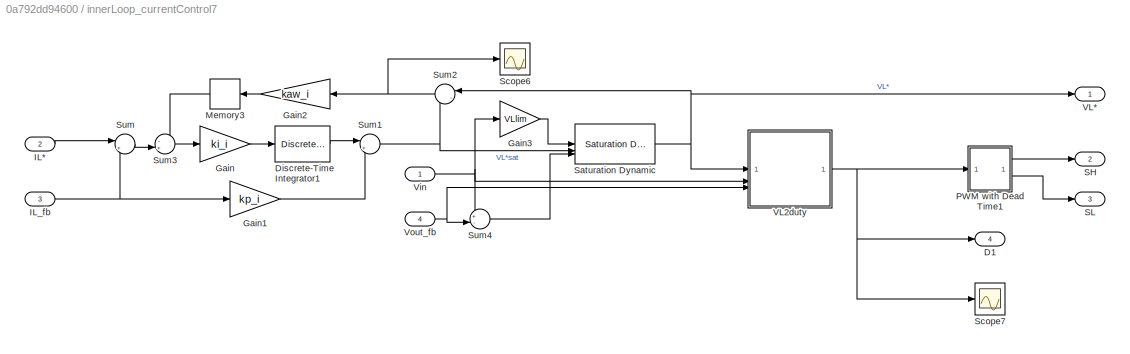
BLOCK [SubSystem] innerLoop_currentControl7
BLOCK [Outport] innerLoop_currentControl7/D1
  Port = 4
BLOCK [DiscreteIntegrator] innerLoop_currentControl7/Discrete-Time Integrator1
  ICPrevOutput = DiscIntNeverNeededParam
  ICPrevScaledInput = DiscIntNeverNeededParam
  InitialConditionSetting = Auto
  IntegratorMethod = Integration: Trapezoidal
  SampleTime = Tsw
BLOCK [Gain] innerLoop_currentControl7/Gain
  Gain = ki_i
BLOCK [Gain] innerLoop_currentControl7/Gain1
  Gain = kp_i
BLOCK [Gain] innerLoop_currentControl7/Gain2
  Gain = kaw_i
  NameLocation = top
BLOCK [Gain] innerLoop_currentControl7/Gain3
  Gain = VLlim
BLOCK [Inport] innerLoop_currentControl7/IL*
  Port = 2
BLOCK [Inport] innerLoop_currentControl7/IL_fb
  Port = 3
BLOCK [Memory] innerLoop_currentControl7/Memory3
  NameLocation = top
BLOCK [SubSystem] innerLoop_currentControl7/PWM with Dead Time1
BLOCK [Reference] innerLoop_currentControl7/PWM with Dead Time1/Compare To Zero1  REF=simulink/Logic and Bit
Operations/Compare
To Zero
  SourceBlock = simulink/Logic and Bit\nOperations/Compare\nTo Zero
  SourceType = Compare To Zero
BLOCK [Reference] innerLoop_currentControl7/PWM with Dead Time1/Compare To Zero2  REF=simulink/Logic and Bit
Operations/Compare
To Zero
  SourceBlock = simulink/Logic and Bit\nOperations/Compare\nTo Zero
  SourceType = Compare To Zero
BLOCK [Inport] innerLoop_currentControl7/PWM with Dead Time1/DC
BLOCK [DataTypeConversion] innerLoop_currentControl7/PWM with Dead Time1/Data Type Conversion
  RndMeth = Floor
  SaturateOnIntegerOverflow = off
BLOCK [DataTypeConversion] innerLoop_currentControl7/PWM with Dead Time1/Data Type Conversion1
  RndMeth = Floor
  SaturateOnIntegerOverflow = off
BLOCK [Fcn] innerLoop_currentControl7/PWM with Dead Time1/Fcn
  Expr = 1-u(1)
BLOCK [Fcn] innerLoop_currentControl7/PWM with Dead Time1/Fcn1
  Expr = (u(1)+1)/2
BLOCK [Fcn] innerLoop_currentControl7/PWM with Dead Time1/Fcn2
  Expr = (u(1)+1)/2
BLOCK [Fcn] innerLoop_currentControl7/PWM with Dead Time1/Fcn3
  Expr = 1-u(1)
BLOCK [SubSystem] innerLoop_currentControl7/PWM with Dead Time1/MATLAB Function
  ErrorFcn = Stateflow.Translate.translate
  PermitHierarchicalResolution = ExplicitOnly
  SFBlockType = MATLAB Function
  TreatAsAtomicUnit = on
BLOCK [Demux] innerLoop_currentControl7/PWM with Dead Time1/MATLAB Function/ Demux 
  Outputs = 1
BLOCK [S-Function] innerLoop_currentControl7/PWM with Dead Time1/MATLAB Function/ SFunction 
  EnableBusSupport = on
  FunctionName = sf_sfun
  PortCounts = [4 3]
  SFcnIsStateOwnerBlock = off
  SFunctionDeploymentMode = off
  Tag = Stateflow S-Function 23
BLOCK [Terminator] innerLoop_currentControl7/PWM with Dead Time1/MATLAB Function/ Terminator 
BLOCK [Outport] innerLoop_currentControl7/PWM with Dead Time1/MATLAB Function/SH
BLOCK [Inport] innerLoop_currentControl7/PWM with Dead Time1/MATLAB Function/SH 
BLOCK [Inport] innerLoop_currentControl7/PWM with Dead Time1/MATLAB Function/SHd
  Port = 2
BLOCK [Outport] innerLoop_currentControl7/PWM with Dead Time1/MATLAB Function/SL
  Port = 2
BLOCK [Inport] innerLoop_currentControl7/PWM with Dead Time1/MATLAB Function/SL 
  Port = 3
BLOCK [Inport] innerLoop_currentControl7/PWM with Dead Time1/MATLAB Function/SLd
  Port = 4
BLOCK [Outport] innerLoop_currentControl7/PWM with Dead Time1/SH
BLOCK [Outport] innerLoop_currentControl7/PWM with Dead Time1/SL
  Port = 2
BLOCK [Scope] innerLoop_currentControl7/PWM with Dead Time1/Scope
  Floating = off
  NameLocation = left
  NumInputPorts = 2
BLOCK [Scope] innerLoop_currentControl7/PWM with Dead Time1/Scope5
  Floating = off
  NumInputPorts = 2
BLOCK [Sum] innerLoop_currentControl7/PWM with Dead Time1/Sum
  Inputs = |+-
BLOCK [Sum] innerLoop_currentControl7/PWM with Dead Time1/Sum1
  Inputs = +-|
BLOCK [Reference] innerLoop_currentControl7/PWM with Dead Time1/Triangle Generator  REF=spsTriangleGeneratorLib/Triangle
Generator
  LibrarySourceBlock = sps_lib/Sources/Signal Generator Sources/Triangle\nGenerator
  SourceBlock = spsTriangleGeneratorLib/Triangle\nGenerator
  SourceType = Triangle Generator
BLOCK [Reference] innerLoop_currentControl7/PWM with Dead Time1/Triangle Generator1  REF=spsTriangleGeneratorLib/Triangle
Generator
  LibrarySourceBlock = sps_lib/Sources/Signal Generator Sources/Triangle\nGenerator
  SourceBlock = spsTriangleGeneratorLib/Triangle\nGenerator
  SourceType = Triangle Generator
BLOCK [Outport] innerLoop_currentControl7/SH
  Port = 2
BLOCK [Outport] innerLoop_currentControl7/SL
  Port = 3
BLOCK [Reference] innerLoop_currentControl7/Saturation Dynamic  REF=simulink/Discontinuities/Saturation
Dynamic
  SourceBlock = simulink/Discontinuities/Saturation\nDynamic
  SourceType = Saturation Dynamic
BLOCK [Scope] innerLoop_currentControl7/Scope6
  Floating = off
  NumInputPorts = 1
  ScopeSpecificationString = Simulink.scopes.TimeScopeBlockCfg('CurrentConfiguration', extmgr.ConfigurationSet(extmgr.Configuration('Core','General UI',true),extmgr.Configuration('Core','Source UI',true),extmgr.Configuration('Sources','WiredSimulink',true,'DataLoggingVariableName','ScopeData2'),extmgr.Configuration('Visuals','Time Domain',true,'SerializedDisplays',{struct('MinYLimReal','-67.46443','MaxYLimReal','7.49605','YLa...<+1367ch>
BLOCK [Scope] innerLoop_currentControl7/Scope7
  Floating = off
  NumInputPorts = 1
  ScopeSpecificationString = Simulink.scopes.TimeScopeBlockCfg('CurrentConfiguration', extmgr.ConfigurationSet(extmgr.Configuration('Core','General UI',true),extmgr.Configuration('Core','Source UI',true),extmgr.Configuration('Sources','WiredSimulink',true,'DataLoggingVariableName','ScopeData2'),extmgr.Configuration('Visuals','Time Domain',true,'SerializedDisplays',{struct('MinYLimReal','-0.05496','MaxYLimReal','0.4946','YLabe...<+1451ch>
BLOCK [Sum] innerLoop_currentControl7/Sum
  Inputs = |+-
BLOCK [Sum] innerLoop_currentControl7/Sum1
  Inputs = |+-
BLOCK [Sum] innerLoop_currentControl7/Sum2
  Inputs = |-+
  NameLocation = top
BLOCK [Sum] innerLoop_currentControl7/Sum3
  Inputs = -+|
BLOCK [Sum] innerLoop_currentControl7/Sum4
  Inputs = +-|
BLOCK [Outport] innerLoop_currentControl7/VL*
BLOCK [SubSystem] innerLoop_currentControl7/VL2duty
  ErrorFcn = Stateflow.Translate.translate
  PermitHierarchicalResolution = ExplicitOnly
  SFBlockType = MATLAB Function
  TreatAsAtomicUnit = on
BLOCK [Demux] innerLoop_currentControl7/VL2duty/ Demux 
  Outputs = 1
BLOCK [S-Function] innerLoop_currentControl7/VL2duty/ SFunction 
  EnableBusSupport = on
  FunctionName = sf_sfun
  PortCounts = [3 2]
  SFcnIsStateOwnerBlock = off
  SFunctionDeploymentMode = off
  Tag = Stateflow S-Function 24
BLOCK [Terminator] innerLoop_currentControl7/VL2duty/ Terminator 
BLOCK [Outport] innerLoop_currentControl7/VL2duty/D
  VectorParamsAs1DForOutWhenUnconnected = off
BLOCK [Inport] innerLoop_currentControl7/VL2duty/VLref
BLOCK [Inport] innerLoop_currentControl7/VL2duty/Vin_fb
  Port = 2
BLOCK [Inport] innerLoop_currentControl7/VL2duty/Vout_fb
  Port = 3
BLOCK [Inport] innerLoop_currentControl7/Vin
BLOCK [Inport] innerLoop_currentControl7/Vout_fb
  Port = 4
BLOCK [SubSystem] innerLoop_currentControl8
BLOCK [Outport] innerLoop_currentControl8/D2
  Port = 4
BLOCK [DiscreteIntegrator] innerLoop_currentControl8/Discrete-Time Integrator1
  ICPrevOutput = DiscIntNeverNeededParam
  ICPrevScaledInput = DiscIntNeverNeededParam
  InitialConditionSetting = Auto
  IntegratorMethod = Integration: Trapezoidal
  SampleTime = Tsw
BLOCK [Gain] innerLoop_currentControl8/Gain
  Gain = ki_i
BLOCK [Gain] innerLoop_currentControl8/Gain1
  Gain = kp_i
BLOCK [Gain] innerLoop_currentControl8/Gain2
  Gain = kaw_i
  NameLocation = top
BLOCK [Gain] innerLoop_currentControl8/Gain3
  Gain = VLlim
BLOCK [Inport] innerLoop_currentControl8/IL*
  Port = 2
BLOCK [Inport] innerLoop_currentControl8/IL_fb
  Port = 3
BLOCK [Memory] innerLoop_currentControl8/Memory3
  NameLocation = top
BLOCK [SubSystem] innerLoop_currentControl8/PWM with Dead Time2
BLOCK [Reference] innerLoop_currentControl8/PWM with Dead Time2/Compare To Zero1  REF=simulink/Logic and Bit
Operations/Compare
To Zero
  SourceBlock = simulink/Logic and Bit\nOperations/Compare\nTo Zero
  SourceType = Compare To Zero
BLOCK [Reference] innerLoop_currentControl8/PWM with Dead Time2/Compare To Zero2  REF=simulink/Logic and Bit
Operations/Compare
To Zero
  SourceBlock = simulink/Logic and Bit\nOperations/Compare\nTo Zero
  SourceType = Compare To Zero
BLOCK [Inport] innerLoop_currentControl8/PWM with Dead Time2/DC
BLOCK [DataTypeConversion] innerLoop_currentControl8/PWM with Dead Time2/Data Type Conversion
  RndMeth = Floor
  SaturateOnIntegerOverflow = off
BLOCK [DataTypeConversion] innerLoop_currentControl8/PWM with Dead Time2/Data Type Conversion1
  RndMeth = Floor
  SaturateOnIntegerOverflow = off
BLOCK [Fcn] innerLoop_currentControl8/PWM with Dead Time2/Fcn
  Expr = 1-u(1)
BLOCK [Fcn] innerLoop_currentControl8/PWM with Dead Time2/Fcn1
  Expr = (u(1)+1)/2
BLOCK [Fcn] innerLoop_currentControl8/PWM with Dead Time2/Fcn2
  Expr = (u(1)+1)/2
BLOCK [Fcn] innerLoop_currentControl8/PWM with Dead Time2/Fcn3
  Expr = 1-u(1)
BLOCK [SubSystem] innerLoop_currentControl8/PWM with Dead Time2/MATLAB Function
  ErrorFcn = Stateflow.Translate.translate
  PermitHierarchicalResolution = ExplicitOnly
  SFBlockType = MATLAB Function
  TreatAsAtomicUnit = on
BLOCK [Demux] innerLoop_currentControl8/PWM with Dead Time2/MATLAB Function/ Demux 
  Outputs = 1
BLOCK [S-Function] innerLoop_currentControl8/PWM with Dead Time2/MATLAB Function/ SFunction 
  EnableBusSupport = on
  FunctionName = sf_sfun
  PortCounts = [4 3]
  SFcnIsStateOwnerBlock = off
  SFunctionDeploymentMode = off
  Tag = Stateflow S-Function 25
BLOCK [Terminator] innerLoop_currentControl8/PWM with Dead Time2/MATLAB Function/ Terminator 
BLOCK [Outport] innerLoop_currentControl8/PWM with Dead Time2/MATLAB Function/SH
BLOCK [Inport] innerLoop_currentControl8/PWM with Dead Time2/MATLAB Function/SH 
BLOCK [Inport] innerLoop_currentControl8/PWM with Dead Time2/MATLAB Function/SHd
  Port = 2
BLOCK [Outport] innerLoop_currentControl8/PWM with Dead Time2/MATLAB Function/SL
  Port = 2
BLOCK [Inport] innerLoop_currentControl8/PWM with Dead Time2/MATLAB Function/SL 
  Port = 3
BLOCK [Inport] innerLoop_currentControl8/PWM with Dead Time2/MATLAB Function/SLd
  Port = 4
BLOCK [Outport] innerLoop_currentControl8/PWM with Dead Time2/SH
BLOCK [Outport] innerLoop_currentControl8/PWM with Dead Time2/SL
  Port = 2
BLOCK [Scope] innerLoop_currentControl8/PWM with Dead Time2/Scope
  Floating = off
  NameLocation = left
  NumInputPorts = 2
BLOCK [Scope] innerLoop_currentControl8/PWM with Dead Time2/Scope5
  Floating = off
  NumInputPorts = 2
BLOCK [Sum] innerLoop_currentControl8/PWM with Dead Time2/Sum
  Inputs = |+-
BLOCK [Sum] innerLoop_currentControl8/PWM with Dead Time2/Sum1
  Inputs = +-|
BLOCK [Reference] innerLoop_currentControl8/PWM with Dead Time2/Triangle Generator  REF=spsTriangleGeneratorLib/Triangle
Generator
  LibrarySourceBlock = sps_lib/Sources/Signal Generator Sources/Triangle\nGenerator
  SourceBlock = spsTriangleGeneratorLib/Triangle\nGenerator
  SourceType = Triangle Generator
BLOCK [Reference] innerLoop_currentControl8/PWM with Dead Time2/Triangle Generator1  REF=spsTriangleGeneratorLib/Triangle
Generator
  LibrarySourceBlock = sps_lib/Sources/Signal Generator Sources/Triangle\nGenerator
  SourceBlock = spsTriangleGeneratorLib/Triangle\nGenerator
  SourceType = Triangle Generator
BLOCK [Outport] innerLoop_currentControl8/SH
  Port = 2
BLOCK [Outport] innerLoop_currentControl8/SL
  Port = 3
BLOCK [Reference] innerLoop_currentControl8/Saturation Dynamic  REF=simulink/Discontinuities/Saturation
Dynamic
  SourceBlock = simulink/Discontinuities/Saturation\nDynamic
  SourceType = Saturation Dynamic
BLOCK [Scope] innerLoop_currentControl8/Scope6
  Floating = off
  NumInputPorts = 1
BLOCK [Scope] innerLoop_currentControl8/Scope7
  Floating = off
  NumInputPorts = 1
BLOCK [Sum] innerLoop_currentControl8/Sum
  Inputs = |+-
BLOCK [Sum] innerLoop_currentControl8/Sum1
  Inputs = |+-
BLOCK [Sum] innerLoop_currentControl8/Sum2
  Inputs = |-+
  NameLocation = top
BLOCK [Sum] innerLoop_currentControl8/Sum3
  Inputs = -+|
BLOCK [Sum] innerLoop_currentControl8/Sum4
  Inputs = +-|
BLOCK [Outport] innerLoop_currentControl8/VL*
BLOCK [SubSystem] innerLoop_currentControl8/VL2duty
  ErrorFcn = Stateflow.Translate.translate
  PermitHierarchicalResolution = ExplicitOnly
  SFBlockType = MATLAB Function
  TreatAsAtomicUnit = on
BLOCK [Demux] innerLoop_currentControl8/VL2duty/ Demux 
  Outputs = 1
BLOCK [S-Function] innerLoop_currentControl8/VL2duty/ SFunction 
  EnableBusSupport = on
  FunctionName = sf_sfun
  PortCounts = [3 2]
  SFcnIsStateOwnerBlock = off
  SFunctionDeploymentMode = off
  Tag = Stateflow S-Function 26
BLOCK [Terminator] innerLoop_currentControl8/VL2duty/ Terminator 
BLOCK [Outport] innerLoop_currentControl8/VL2duty/D
  VectorParamsAs1DForOutWhenUnconnected = off
BLOCK [Inport] innerLoop_currentControl8/VL2duty/VLref
BLOCK [Inport] innerLoop_currentControl8/VL2duty/Vin_fb
  Port = 2
BLOCK [Inport] innerLoop_currentControl8/VL2duty/Vout_fb
  Port = 3
BLOCK [Inport] innerLoop_currentControl8/Vin
BLOCK [Inport] innerLoop_currentControl8/Vout_fb
  Port = 4
BLOCK [SubSystem] innerLoop_currentControl9
BLOCK [Outport] innerLoop_currentControl9/D3
  Port = 4
BLOCK [DiscreteIntegrator] innerLoop_currentControl9/Discrete-Time Integrator1
  ICPrevOutput = DiscIntNeverNeededParam
  ICPrevScaledInput = DiscIntNeverNeededParam
  InitialConditionSetting = Auto
  IntegratorMethod = Integration: Trapezoidal
  SampleTime = Tsw
BLOCK [Gain] innerLoop_currentControl9/Gain
  Gain = ki_i
BLOCK [Gain] innerLoop_currentControl9/Gain1
  Gain = kp_i
BLOCK [Gain] innerLoop_currentControl9/Gain2
  Gain = kaw_i
  NameLocation = top
BLOCK [Gain] innerLoop_currentControl9/Gain3
  Gain = VLlim
BLOCK [Inport] innerLoop_currentControl9/IL*
  Port = 2
BLOCK [Inport] innerLoop_currentControl9/IL_fb
  Port = 3
BLOCK [Memory] innerLoop_currentControl9/Memory3
  NameLocation = top
BLOCK [SubSystem] innerLoop_currentControl9/PWM with Dead Time3
BLOCK [Reference] innerLoop_currentControl9/PWM with Dead Time3/Compare To Zero1  REF=simulink/Logic and Bit
Operations/Compare
To Zero
  SourceBlock = simulink/Logic and Bit\nOperations/Compare\nTo Zero
  SourceType = Compare To Zero
BLOCK [Reference] innerLoop_currentControl9/PWM with Dead Time3/Compare To Zero2  REF=simulink/Logic and Bit
Operations/Compare
To Zero
  SourceBlock = simulink/Logic and Bit\nOperations/Compare\nTo Zero
  SourceType = Compare To Zero
BLOCK [Inport] innerLoop_currentControl9/PWM with Dead Time3/DC
BLOCK [DataTypeConversion] innerLoop_currentControl9/PWM with Dead Time3/Data Type Conversion
  RndMeth = Floor
  SaturateOnIntegerOverflow = off
BLOCK [DataTypeConversion] innerLoop_currentControl9/PWM with Dead Time3/Data Type Conversion1
  RndMeth = Floor
  SaturateOnIntegerOverflow = off
BLOCK [Fcn] innerLoop_currentControl9/PWM with Dead Time3/Fcn
  Expr = 1-u(1)
BLOCK [Fcn] innerLoop_currentControl9/PWM with Dead Time3/Fcn1
  Expr = (u(1)+1)/2
BLOCK [Fcn] innerLoop_currentControl9/PWM with Dead Time3/Fcn2
  Expr = (u(1)+1)/2
BLOCK [Fcn] innerLoop_currentControl9/PWM with Dead Time3/Fcn3
  Expr = 1-u(1)
BLOCK [SubSystem] innerLoop_currentControl9/PWM with Dead Time3/MATLAB Function
  ErrorFcn = Stateflow.Translate.translate
  PermitHierarchicalResolution = ExplicitOnly
  SFBlockType = MATLAB Function
  TreatAsAtomicUnit = on
BLOCK [Demux] innerLoop_currentControl9/PWM with Dead Time3/MATLAB Function/ Demux 
  Outputs = 1
BLOCK [S-Function] innerLoop_currentControl9/PWM with Dead Time3/MATLAB Function/ SFunction 
  EnableBusSupport = on
  FunctionName = sf_sfun
  PortCounts = [4 3]
  SFcnIsStateOwnerBlock = off
  SFunctionDeploymentMode = off
  Tag = Stateflow S-Function 27
BLOCK [Terminator] innerLoop_currentControl9/PWM with Dead Time3/MATLAB Function/ Terminator 
BLOCK [Outport] innerLoop_currentControl9/PWM with Dead Time3/MATLAB Function/SH
BLOCK [Inport] innerLoop_currentControl9/PWM with Dead Time3/MATLAB Function/SH 
BLOCK [Inport] innerLoop_currentControl9/PWM with Dead Time3/MATLAB Function/SHd
  Port = 2
BLOCK [Outport] innerLoop_currentControl9/PWM with Dead Time3/MATLAB Function/SL
  Port = 2
BLOCK [Inport] innerLoop_currentControl9/PWM with Dead Time3/MATLAB Function/SL 
  Port = 3
BLOCK [Inport] innerLoop_currentControl9/PWM with Dead Time3/MATLAB Function/SLd
  Port = 4
BLOCK [Outport] innerLoop_currentControl9/PWM with Dead Time3/SH
BLOCK [Outport] innerLoop_currentControl9/PWM with Dead Time3/SL
  Port = 2
BLOCK [Scope] innerLoop_currentControl9/PWM with Dead Time3/Scope
  Floating = off
  NameLocation = left
  NumInputPorts = 2
BLOCK [Scope] innerLoop_currentControl9/PWM with Dead Time3/Scope5
  Floating = off
  NumInputPorts = 2
BLOCK [Sum] innerLoop_currentControl9/PWM with Dead Time3/Sum
  Inputs = |+-
BLOCK [Sum] innerLoop_currentControl9/PWM with Dead Time3/Sum1
  Inputs = +-|
BLOCK [Reference] innerLoop_currentControl9/PWM with Dead Time3/Triangle Generator  REF=spsTriangleGeneratorLib/Triangle
Generator
  LibrarySourceBlock = sps_lib/Sources/Signal Generator Sources/Triangle\nGenerator
  SourceBlock = spsTriangleGeneratorLib/Triangle\nGenerator
  SourceType = Triangle Generator
BLOCK [Reference] innerLoop_currentControl9/PWM with Dead Time3/Triangle Generator1  REF=spsTriangleGeneratorLib/Triangle
Generator
  LibrarySourceBlock = sps_lib/Sources/Signal Generator Sources/Triangle\nGenerator
  SourceBlock = spsTriangleGeneratorLib/Triangle\nGenerator
  SourceType = Triangle Generator
BLOCK [Outport] innerLoop_currentControl9/SH
  Port = 2
BLOCK [Outport] innerLoop_currentControl9/SL
  Port = 3
BLOCK [Reference] innerLoop_currentControl9/Saturation Dynamic  REF=simulink/Discontinuities/Saturation
Dynamic
  SourceBlock = simulink/Discontinuities/Saturation\nDynamic
  SourceType = Saturation Dynamic
BLOCK [Scope] innerLoop_currentControl9/Scope6
  Floating = off
  NumInputPorts = 1
BLOCK [Scope] innerLoop_currentControl9/Scope7
  Floating = off
  NumInputPorts = 1
BLOCK [Sum] innerLoop_currentControl9/Sum
  Inputs = |+-
BLOCK [Sum] innerLoop_currentControl9/Sum1
  Inputs = |+-
BLOCK [Sum] innerLoop_currentControl9/Sum2
  Inputs = |-+
  NameLocation = top
BLOCK [Sum] innerLoop_currentControl9/Sum3
  Inputs = -+|
BLOCK [Sum] innerLoop_currentControl9/Sum4
  Inputs = +-|
BLOCK [Outport] innerLoop_currentControl9/VL*
BLOCK [SubSystem] innerLoop_currentControl9/VL2duty
  ErrorFcn = Stateflow.Translate.translate
  PermitHierarchicalResolution = ExplicitOnly
  SFBlockType = MATLAB Function
  TreatAsAtomicUnit = on
BLOCK [Demux] innerLoop_currentControl9/VL2duty/ Demux 
  Outputs = 1
BLOCK [S-Function] innerLoop_currentControl9/VL2duty/ SFunction 
  EnableBusSupport = on
  FunctionName = sf_sfun
  PortCounts = [3 2]
  SFcnIsStateOwnerBlock = off
  SFunctionDeploymentMode = off
  Tag = Stateflow S-Function 28
BLOCK [Terminator] innerLoop_currentControl9/VL2duty/ Terminator 
BLOCK [Outport] innerLoop_currentControl9/VL2duty/D
  VectorParamsAs1DForOutWhenUnconnected = off
BLOCK [Inport] innerLoop_currentControl9/VL2duty/VLref
BLOCK [Inport] innerLoop_currentControl9/VL2duty/Vin_fb
  Port = 2
BLOCK [Inport] innerLoop_currentControl9/VL2duty/Vout_fb
  Port = 3
BLOCK [Inport] innerLoop_currentControl9/Vin
BLOCK [Inport] innerLoop_currentControl9/Vout_fb
  Port = 4
ANNOTATION (root): /w PreFilter
ANNOTATION (root): DISCRETE /w PreFilter
ANNOTATION (root): DISCRETE Relocated PI
ANNOTATION (root): Relocated PI
ANNOTATION (root): at 0 = Vout open circuit at 0.05 = Rload connected to Vout at 0.10 = Rload change (go up) at 0.15 = Vin change (go down)
NET CB_Rload:1 -> Scope15:1, boostConverter3:9
LINE Constant1:1 -> Iout2IL:4
LINE Constant2:1 -> Iout2IL1:4
LINE Constant3:1 -> Iout2IL2:4
LINE Constant4:1 -> Iout2IL3:4
LINE Constant5:1 -> innerLoop_currentControl7:1
LINE Constant6:1 -> innerLoop_currentControl8:1
LINE Constant7:1 -> innerLoop_currentControl9:1
LINE Constant:1 -> Goto13:1
LINE Discrete Transfer Fcn2:1 -> Sum7:1
LINE Discrete Transfer Fcn:1 -> Goto37:1
LINE Discrete-Time Integrator1:1 -> Sum9:1
LINE Discrete-Time Integrator4:1 -> Sum10:1
LINE From100:1 -> duty2VL3:2
LINE From101:1 -> duty2VL1:3
LINE From102:1 -> duty2VL2:3
LINE From10:1 -> Scope:1
LINE From11:1 -> innerLoop_currentControl1:4
LINE From12:1 -> innerLoop_currentControl1:1
LINE From13:1 -> innerLoop_currentControl1:3
LINE From14:1 -> innerLoop_currentControl2:3
LINE From15:1 -> duty2VL1:1
LINE From16:1 -> Scope3:1
LINE From17:1 -> Sum16:1
LINE From18:1 -> Iout2IL:3
LINE From19:1 -> innerLoop_currentControl4:4
LINE From1:1 -> boostConverter3:2
NET From20:1 -> Gain9:1, Sum16:2
LINE From21:1 -> Scope1:2
LINE From22:1 -> boostConverter3:4
LINE From23:1 -> boostConverter3:5
LINE From24:1 -> boostConverter3:6
LINE From25:1 -> boostConverter3:7
LINE From26:1 -> innerLoop_currentControl2:2
LINE From27:1 -> innerLoop_currentControl3:4
LINE From28:1 -> innerLoop_currentControl3:1
LINE From29:1 -> innerLoop_currentControl3:3
LINE From2:1 -> Scope1:3
LINE From30:1 -> innerLoop_currentControl3:2
LINE From31:1 -> Scope6:2
LINE From32:1 -> Scope7:1
NET From33:1 -> Scope17:3, Scope7:2
LINE From34:1 -> Scope6:3
LINE From35:1 -> Scope8:3
NET From36:1 -> Scope17:1, Scope9:1
NET From37:1 -> Scope17:2, Scope9:2
LINE From38:1 -> duty2VL3:3
LINE From39:1 -> Scope10:1
LINE From3:1 -> Scope4:1
LINE From40:1 -> Scope10:2
LINE From41:1 -> Scope10:3
LINE From42:1 -> innerLoop_currentControl4:1
LINE From43:1 -> innerLoop_currentControl4:3
LINE From44:1 -> innerLoop_currentControl5:3
LINE From45:1 -> Transfer Fcn2:1
LINE From46:1 -> Iout2IL1:3
LINE From47:1 -> Sum1:2
LINE From48:1 -> innerLoop_currentControl5:2
LINE From49:1 -> innerLoop_currentControl6:4
NET From4:1 -> Scope17:4, Scope3:2
LINE From50:1 -> innerLoop_currentControl6:1
LINE From51:1 -> innerLoop_currentControl6:3
LINE From52:1 -> innerLoop_currentControl6:2
LINE From53:1 -> innerLoop_currentControl4:2
LINE From54:1 -> innerLoop_currentControl5:4
LINE From55:1 -> innerLoop_currentControl5:1
LINE From56:1 -> Scope1:1
LINE From57:1 -> Scope3:3
LINE From58:1 -> Scope7:3
LINE From59:1 -> Scope9:3
LINE From5:1 -> Scope8:2
LINE From60:1 -> innerLoop_currentControl7:4
LINE From62:1 -> innerLoop_currentControl7:3
LINE From63:1 -> innerLoop_currentControl8:3
LINE From64:1 -> Sum8:1
LINE From65:1 -> Iout2IL2:3
LINE From66:1 -> innerLoop_currentControl10:4
NET From67:1 -> Gain15:1, Sum8:2
LINE From68:1 -> innerLoop_currentControl8:2
LINE From69:1 -> innerLoop_currentControl9:4
LINE From6:1 -> boostConverter3:3
LINE From71:1 -> innerLoop_currentControl9:3
LINE From72:1 -> innerLoop_currentControl9:2
LINE From73:1 -> innerLoop_currentControl10:1
LINE From74:1 -> innerLoop_currentControl10:3
LINE From75:1 -> innerLoop_currentControl11:3
LINE From76:1 -> Discrete Transfer Fcn2:1
LINE From77:1 -> Iout2IL3:3
LINE From78:1 -> Sum7:2
LINE From79:1 -> innerLoop_currentControl11:2
LINE From7:1 -> innerLoop_currentControl1:2
LINE From80:1 -> innerLoop_currentControl12:4
LINE From81:1 -> innerLoop_currentControl12:1
LINE From82:1 -> innerLoop_currentControl12:3
LINE From83:1 -> innerLoop_currentControl12:2
LINE From84:1 -> innerLoop_currentControl10:2
LINE From85:1 -> innerLoop_currentControl11:4
LINE From86:1 -> innerLoop_currentControl11:1
LINE From87:1 -> innerLoop_currentControl7:2
LINE From88:1 -> innerLoop_currentControl8:4
LINE From8:1 -> innerLoop_currentControl2:4
LINE From90:1 -> Scope:3
LINE From91:1 -> duty2VL1:2
LINE From92:1 -> Scope22:1
LINE From93:1 -> Scope22:2
LINE From94:1 -> Scope22:3
LINE From95:1 -> duty2VL2:1
LINE From96:1 -> duty2VL2:2
LINE From97:1 -> duty2VL3:1
LINE From98:1 -> Scope2:2
LINE From99:1 -> Scope2:3
LINE From9:1 -> innerLoop_currentControl2:1
LINE From:1 -> Scope:2
LINE Gain10:1 -> Sum6:1
LINE Gain11:1 -> Sum12:1
LINE Gain12:1 -> Discrete-Time Integrator4:1
LINE Gain13:1 -> Discrete-Time Integrator1:1
LINE Gain14:1 -> Sum10:2
LINE Gain15:1 -> Sum9:2
LINE Gain1:1 -> Transfer Fcn5:1
LINE Gain2:1 -> Sum4:1
LINE Gain3:1 -> Integrator2:1
LINE Gain4:1 -> Integrator1:1
LINE Gain5:1 -> Sum2:2
LINE Gain6:1 -> Goto36:1
LINE Gain7:1 -> Discrete Transfer Fcn:1
LINE Gain8:1 -> Memory4:1
LINE Gain9:1 -> Sum17:2
LINE Gain:1 -> Goto10:1
LINE Integrator1:1 -> Sum17:1
LINE Integrator2:1 -> Sum2:1
NET Iout2IL1:1 -> Product1:2, Scope13:1
LINE Iout2IL1:2 -> Saturation1:1
NET Iout2IL2:1 -> Product2:2, Scope18:1
LINE Iout2IL2:2 -> Saturation2:1
NET Iout2IL3:1 -> Product3:2, Scope19:1
LINE Iout2IL3:2 -> Saturation3:1
NET Iout2IL:1 -> Product:2, Scope12:1
LINE Iout2IL:2 -> Saturation:1
LINE Memory1:1 -> Iout2IL1:1
LINE Memory2:1 -> Iout2IL2:1
LINE Memory3:1 -> Iout2IL3:1
LINE Memory4:1 -> Sum14:1
LINE Memory:1 -> Iout2IL:1
LINE Product1:1 -> Sum3:1
LINE Product2:1 -> Sum13:1
LINE Product3:1 -> Sum11:1
LINE Product:1 -> Sum5:1
NET Rload:1 -> Scope11:1, boostConverter3:1
NET Saturation1:1 -> Gain1:1, Memory1:1, Product1:1
NET Saturation2:1 -> Gain6:1, Memory2:1, Product2:1
NET Saturation3:1 -> Gain7:1, Memory3:1, Product3:1
NET Saturation:1 -> Gain:1, Memory:1, Product:1
NET Sum10:1 -> Goto50:1, Iout2IL3:2, Sum11:2
NET Sum11:1 -> Gain11:1, Scope20:1
LINE Sum12:1 -> Gain12:1
NET Sum13:1 -> Gain8:1, Scope21:1
LINE Sum14:1 -> Gain13:1
LINE Sum16:1 -> Sum6:2
NET Sum17:1 -> Goto7:1, Iout2IL:2, Sum5:2
NET Sum1:1 -> Gain5:1, Sum4:2
NET Sum2:1 -> Goto31:1, Iout2IL1:2, Sum3:2
NET Sum3:1 -> Gain2:1, Scope14:1
LINE Sum4:1 -> Gain3:1
NET Sum5:1 -> Gain10:1, Scope5:1
LINE Sum6:1 -> Gain4:1
NET Sum7:1 -> Gain14:1, Sum12:2
LINE Sum8:1 -> Sum14:2
NET Sum9:1 -> Goto55:1, Iout2IL2:2, Sum13:2
LINE Transfer Fcn2:1 -> Sum1:1
LINE Transfer Fcn5:1 -> Goto11:1
NET Vin:1 -> Scope16:1, boostConverter3:8
LINE boostConverter3/CB:1 -> boostConverter3/Fcn:1
LINE boostConverter3/Fcn:1 -> boostConverter3/Simulink-PS Converter8:1
LINE boostConverter3/Gain10:1 -> boostConverter3/Transfer Fcn10:1
LINE boostConverter3/Gain1:1 -> boostConverter3/Transfer Fcn1:1
LINE boostConverter3/Gain2:1 -> boostConverter3/Transfer Fcn2:1
LINE boostConverter3/Gain3:1 -> boostConverter3/Transfer Fcn4:1
LINE boostConverter3/Gain4:1 -> boostConverter3/Transfer Fcn5:1
LINE boostConverter3/Gain5:1 -> boostConverter3/Transfer Fcn6:1
LINE boostConverter3/Gain6:1 -> boostConverter3/Transfer Fcn7:1
LINE boostConverter3/Gain7:1 -> boostConverter3/Transfer Fcn3:1
LINE boostConverter3/Gain8:1 -> boostConverter3/Transfer Fcn8:1
LINE boostConverter3/Gain9:1 -> boostConverter3/Transfer Fcn9:1
LINE boostConverter3/PS-Simulink Converter10:1 -> boostConverter3/Gain10:1
NET boostConverter3/PS-Simulink Converter1:1 -> boostConverter3/Gain4:1, boostConverter3/VC:1
LINE boostConverter3/PS-Simulink Converter2:1 -> boostConverter3/Gain3:1
LINE boostConverter3/PS-Simulink Converter3:1 -> boostConverter3/Gain7:1
LINE boostConverter3/PS-Simulink Converter4:1 -> boostConverter3/Gain2:1
LINE boostConverter3/PS-Simulink Converter5:1 -> boostConverter3/Gain8:1
NET boostConverter3/PS-Simulink Converter6:1 -> boostConverter3/Gain5:1, boostConverter3/ILraw2:1
LINE boostConverter3/PS-Simulink Converter7:1 -> boostConverter3/Gain6:1
NET boostConverter3/PS-Simulink Converter9:1 -> boostConverter3/Gain9:1, boostConverter3/ILraw3:1
NET boostConverter3/PS-Simulink Converter:1 -> boostConverter3/Gain1:1, boostConverter3/ILraw1:1
LINE boostConverter3/RloadRef:1 -> boostConverter3/Simulink-PS Converter3:1
LINE boostConverter3/SH1:1 -> boostConverter3/Simulink-PS Converter:1
LINE boostConverter3/SH2:1 -> boostConverter3/Simulink-PS Converter2:1
LINE boostConverter3/SH3:1 -> boostConverter3/Simulink-PS Converter5:1
LINE boostConverter3/SL1:1 -> boostConverter3/Simulink-PS Converter1:1
LINE boostConverter3/SL2:1 -> boostConverter3/Simulink-PS Converter4:1
LINE boostConverter3/SL3:1 -> boostConverter3/Simulink-PS Converter6:1
LINE boostConverter3/Transfer Fcn10:1 -> boostConverter3/VL3:1
LINE boostConverter3/Transfer Fcn1:1 -> boostConverter3/IL1:1
LINE boostConverter3/Transfer Fcn2:1 -> boostConverter3/Vin:1
LINE boostConverter3/Transfer Fcn3:1 -> boostConverter3/VL1:1
LINE boostConverter3/Transfer Fcn4:1 -> boostConverter3/Iout:1
LINE boostConverter3/Transfer Fcn5:1 -> boostConverter3/Vout:1
LINE boostConverter3/Transfer Fcn6:1 -> boostConverter3/IL2:1
LINE boostConverter3/Transfer Fcn7:1 -> boostConverter3/VL2:1
LINE boostConverter3/Transfer Fcn8:1 -> boostConverter3/IRload:1
LINE boostConverter3/Transfer Fcn9:1 -> boostConverter3/IL3:1
LINE boostConverter3/VinRef:1 -> boostConverter3/Simulink-PS Converter7:1
LINE boostConverter3:1 -> Goto5:1
LINE boostConverter3:10 -> Goto35:1
LINE boostConverter3:11 -> Goto34:1
LINE boostConverter3:12 -> Goto14:1
LINE boostConverter3:13 -> Goto12:1
LINE boostConverter3:14 -> Goto58:1
LINE boostConverter3:2 -> Goto1:1
LINE boostConverter3:3 -> Goto:1
LINE boostConverter3:4 -> Goto2:1
LINE boostConverter3:5 -> Goto3:1
LINE boostConverter3:6 -> Goto15:1
LINE boostConverter3:7 -> Goto16:1
LINE boostConverter3:8 -> Goto17:1
LINE boostConverter3:9 -> Goto18:1
LINE duty2VL1:1 -> Scope8:1
LINE duty2VL2:1 -> Scope2:1
LINE duty2VL3:1 -> Scope6:1
LINE innerLoop_currentControl1/Gain1:1 -> innerLoop_currentControl1/Sum1:2
LINE innerLoop_currentControl1/Gain2:1 -> innerLoop_currentControl1/Sum3:1
LINE innerLoop_currentControl1/Gain3:1 -> innerLoop_currentControl1/Saturation Dynamic:1
LINE innerLoop_currentControl1/Gain:1 -> innerLoop_currentControl1/Integrator:1
LINE innerLoop_currentControl1/IL*:1 -> innerLoop_currentControl1/Sum:1
NET innerLoop_currentControl1/IL_fb:1 -> innerLoop_currentControl1/Gain1:1, innerLoop_currentControl1/Sum:2
LINE innerLoop_currentControl1/Integrator:1 -> innerLoop_currentControl1/Sum1:1
LINE innerLoop_currentControl1/PWM with Dead Time1/Compare To Zero1:1 -> innerLoop_currentControl1/PWM with Dead Time1/Data Type Conversion:1
LINE innerLoop_currentControl1/PWM with Dead Time1/Compare To Zero2:1 -> innerLoop_currentControl1/PWM with Dead Time1/Data Type Conversion1:1
NET innerLoop_currentControl1/PWM with Dead Time1/DC:1 -> innerLoop_currentControl1/PWM with Dead Time1/Sum1:1, innerLoop_currentControl1/PWM with Dead Time1/Sum:1
NET innerLoop_currentControl1/PWM with Dead Time1/Data Type Conversion1:1 -> innerLoop_currentControl1/PWM with Dead Time1/Fcn3:1, innerLoop_currentControl1/PWM with Dead Time1/MATLAB Function:4, innerLoop_currentControl1/PWM with Dead Time1/Scope:2
NET innerLoop_currentControl1/PWM with Dead Time1/Data Type Conversion:1 -> innerLoop_currentControl1/PWM with Dead Time1/Fcn:1, innerLoop_currentControl1/PWM with Dead Time1/MATLAB Function:3, innerLoop_currentControl1/PWM with Dead Time1/Scope:1
LINE innerLoop_currentControl1/PWM with Dead Time1/Fcn1:1 -> innerLoop_currentControl1/PWM with Dead Time1/Sum:2
LINE innerLoop_currentControl1/PWM with Dead Time1/Fcn2:1 -> innerLoop_currentControl1/PWM with Dead Time1/Sum1:2
LINE innerLoop_currentControl1/PWM with Dead Time1/Fcn3:1 -> innerLoop_currentControl1/PWM with Dead Time1/MATLAB Function:2
LINE innerLoop_currentControl1/PWM with Dead Time1/Fcn:1 -> innerLoop_currentControl1/PWM with Dead Time1/MATLAB Function:1
NET innerLoop_currentControl1/PWM with Dead Time1/MATLAB Function:1 -> innerLoop_currentControl1/PWM with Dead Time1/SH:1, innerLoop_currentControl1/PWM with Dead Time1/Scope5:1
NET innerLoop_currentControl1/PWM with Dead Time1/MATLAB Function:2 -> innerLoop_currentControl1/PWM with Dead Time1/SL:1, innerLoop_currentControl1/PWM with Dead Time1/Scope5:2
LINE innerLoop_currentControl1/PWM with Dead Time1/Sum1:1 -> innerLoop_currentControl1/PWM with Dead Time1/Compare To Zero2:1
LINE innerLoop_currentControl1/PWM with Dead Time1/Sum:1 -> innerLoop_currentControl1/PWM with Dead Time1/Compare To Zero1:1
LINE innerLoop_currentControl1/PWM with Dead Time1/Triangle Generator1:1 -> innerLoop_currentControl1/PWM with Dead Time1/Fcn2:1
LINE innerLoop_currentControl1/PWM with Dead Time1/Triangle Generator:1 -> innerLoop_currentControl1/PWM with Dead Time1/Fcn1:1
LINE innerLoop_currentControl1/PWM with Dead Time1:1 -> innerLoop_currentControl1/SH:1
LINE innerLoop_currentControl1/PWM with Dead Time1:2 -> innerLoop_currentControl1/SL:1
NET innerLoop_currentControl1/Saturation Dynamic:1 -> innerLoop_currentControl1/Sum2:1, innerLoop_currentControl1/VL*:1, innerLoop_currentControl1/VL2duty:1
NET innerLoop_currentControl1/Sum1:1 -> innerLoop_currentControl1/Saturation Dynamic:2, innerLoop_currentControl1/Sum2:2
NET innerLoop_currentControl1/Sum2:1 -> innerLoop_currentControl1/Gain2:1, innerLoop_currentControl1/Scope6:1
LINE innerLoop_currentControl1/Sum3:1 -> innerLoop_currentControl1/Gain:1
LINE innerLoop_currentControl1/Sum4:1 -> innerLoop_currentControl1/Saturation Dynamic:3
LINE innerLoop_currentControl1/Sum:1 -> innerLoop_currentControl1/Sum3:2
NET innerLoop_currentControl1/VL2duty:1 -> innerLoop_currentControl1/PWM with Dead Time1:1, innerLoop_currentControl1/Scope7:1
NET innerLoop_currentControl1/Vin:1 -> innerLoop_currentControl1/Gain3:1, innerLoop_currentControl1/Sum4:1, innerLoop_currentControl1/VL2duty:2
NET innerLoop_currentControl1/Vout_fb:1 -> innerLoop_currentControl1/Sum4:2, innerLoop_currentControl1/VL2duty:3
LINE innerLoop_currentControl10/Discrete-Time Integrator3:1 -> innerLoop_currentControl10/Sum1:1
LINE innerLoop_currentControl10/Gain1:1 -> innerLoop_currentControl10/Sum1:2
LINE innerLoop_currentControl10/Gain2:1 -> innerLoop_currentControl10/Sum3:1
LINE innerLoop_currentControl10/Gain3:1 -> innerLoop_currentControl10/Saturation Dynamic:1
LINE innerLoop_currentControl10/Gain:1 -> innerLoop_currentControl10/Discrete-Time Integrator3:1
LINE innerLoop_currentControl10/IL*:1 -> innerLoop_currentControl10/Sum:1
LINE innerLoop_currentControl10/IL_fb:1 -> innerLoop_currentControl10/Sum:2
LINE innerLoop_currentControl10/PWM with Dead Time/Compare To Zero1:1 -> innerLoop_currentControl10/PWM with Dead Time/Data Type Conversion:1
LINE innerLoop_currentControl10/PWM with Dead Time/DC:1 -> innerLoop_currentControl10/PWM with Dead Time/Sum:1
NET innerLoop_currentControl10/PWM with Dead Time/Data Type Conversion:1 -> innerLoop_currentControl10/PWM with Dead Time/Fcn:1, innerLoop_currentControl10/PWM with Dead Time/MATLAB Function:3, innerLoop_currentControl10/PWM with Dead Time/Transport Delay1:1
LINE innerLoop_currentControl10/PWM with Dead Time/Fcn1:1 -> innerLoop_currentControl10/PWM with Dead Time/Sum:2
NET innerLoop_currentControl10/PWM with Dead Time/Fcn:1 -> innerLoop_currentControl10/PWM with Dead Time/MATLAB Function:1, innerLoop_currentControl10/PWM with Dead Time/Transport Delay:1
NET innerLoop_currentControl10/PWM with Dead Time/MATLAB Function:1 -> innerLoop_currentControl10/PWM with Dead Time/SH:1, innerLoop_currentControl10/PWM with Dead Time/Scope5:1
NET innerLoop_currentControl10/PWM with Dead Time/MATLAB Function:2 -> innerLoop_currentControl10/PWM with Dead Time/SL:1, innerLoop_currentControl10/PWM with Dead Time/Scope5:2
LINE innerLoop_currentControl10/PWM with Dead Time/Sum:1 -> innerLoop_currentControl10/PWM with Dead Time/Compare To Zero1:1
LINE innerLoop_currentControl10/PWM with Dead Time/Transport Delay1:1 -> innerLoop_currentControl10/PWM with Dead Time/MATLAB Function:4
LINE innerLoop_currentControl10/PWM with Dead Time/Transport Delay:1 -> innerLoop_currentControl10/PWM with Dead Time/MATLAB Function:2
LINE innerLoop_currentControl10/PWM with Dead Time/Triangle Generator:1 -> innerLoop_currentControl10/PWM with Dead Time/Fcn1:1
LINE innerLoop_currentControl10/PWM with Dead Time:1 -> innerLoop_currentControl10/SH:1
LINE innerLoop_currentControl10/PWM with Dead Time:2 -> innerLoop_currentControl10/SL:1
NET innerLoop_currentControl10/Saturation Dynamic:1 -> innerLoop_currentControl10/Sum2:1, innerLoop_currentControl10/VL*:1, innerLoop_currentControl10/VL2duty:1
NET innerLoop_currentControl10/Sum1:1 -> innerLoop_currentControl10/Saturation Dynamic:2, innerLoop_currentControl10/Sum2:2
NET innerLoop_currentControl10/Sum2:1 -> innerLoop_currentControl10/Gain2:1, innerLoop_currentControl10/Scope6:1
LINE innerLoop_currentControl10/Sum3:1 -> innerLoop_currentControl10/Gain:1
LINE innerLoop_currentControl10/Sum4:1 -> innerLoop_currentControl10/Saturation Dynamic:3
NET innerLoop_currentControl10/Sum:1 -> innerLoop_currentControl10/Gain1:1, innerLoop_currentControl10/Sum3:2
NET innerLoop_currentControl10/VL2duty:1 -> innerLoop_currentControl10/PWM with Dead Time:1, innerLoop_currentControl10/Scope7:1
NET innerLoop_currentControl10/Vin:1 -> innerLoop_currentControl10/Gain3:1, innerLoop_currentControl10/Sum4:1, innerLoop_currentControl10/VL2duty:2
NET innerLoop_currentControl10/Vout_fb:1 -> innerLoop_currentControl10/Sum4:2, innerLoop_currentControl10/VL2duty:3
LINE innerLoop_currentControl10:1 -> Goto52:1
LINE innerLoop_currentControl10:2 -> Goto49:1
LINE innerLoop_currentControl10:3 -> Goto48:1
LINE innerLoop_currentControl11/Discrete-Time Integrator3:1 -> innerLoop_currentControl11/Sum1:1
LINE innerLoop_currentControl11/Gain1:1 -> innerLoop_currentControl11/Sum1:2
LINE innerLoop_currentControl11/Gain2:1 -> innerLoop_currentControl11/Sum3:1
LINE innerLoop_currentControl11/Gain3:1 -> innerLoop_currentControl11/Saturation Dynamic:1
LINE innerLoop_currentControl11/Gain:1 -> innerLoop_currentControl11/Discrete-Time Integrator3:1
LINE innerLoop_currentControl11/IL*:1 -> innerLoop_currentControl11/Sum:1
LINE innerLoop_currentControl11/IL_fb:1 -> innerLoop_currentControl11/Sum:2
LINE innerLoop_currentControl11/PWM with Dead Time/Compare To Zero1:1 -> innerLoop_currentControl11/PWM with Dead Time/Data Type Conversion:1
LINE innerLoop_currentControl11/PWM with Dead Time/DC:1 -> innerLoop_currentControl11/PWM with Dead Time/Sum:1
NET innerLoop_currentControl11/PWM with Dead Time/Data Type Conversion:1 -> innerLoop_currentControl11/PWM with Dead Time/Fcn:1, innerLoop_currentControl11/PWM with Dead Time/MATLAB Function:3, innerLoop_currentControl11/PWM with Dead Time/Transport Delay1:1
LINE innerLoop_currentControl11/PWM with Dead Time/Fcn1:1 -> innerLoop_currentControl11/PWM with Dead Time/Sum:2
NET innerLoop_currentControl11/PWM with Dead Time/Fcn:1 -> innerLoop_currentControl11/PWM with Dead Time/MATLAB Function:1, innerLoop_currentControl11/PWM with Dead Time/Transport Delay:1
NET innerLoop_currentControl11/PWM with Dead Time/MATLAB Function:1 -> innerLoop_currentControl11/PWM with Dead Time/SH:1, innerLoop_currentControl11/PWM with Dead Time/Scope5:1
NET innerLoop_currentControl11/PWM with Dead Time/MATLAB Function:2 -> innerLoop_currentControl11/PWM with Dead Time/SL:1, innerLoop_currentControl11/PWM with Dead Time/Scope5:2
LINE innerLoop_currentControl11/PWM with Dead Time/Sum:1 -> innerLoop_currentControl11/PWM with Dead Time/Compare To Zero1:1
LINE innerLoop_currentControl11/PWM with Dead Time/Transport Delay1:1 -> innerLoop_currentControl11/PWM with Dead Time/MATLAB Function:4
LINE innerLoop_currentControl11/PWM with Dead Time/Transport Delay:1 -> innerLoop_currentControl11/PWM with Dead Time/MATLAB Function:2
LINE innerLoop_currentControl11/PWM with Dead Time/Triangle Generator:1 -> innerLoop_currentControl11/PWM with Dead Time/Fcn1:1
LINE innerLoop_currentControl11/PWM with Dead Time:1 -> innerLoop_currentControl11/SH:1
LINE innerLoop_currentControl11/PWM with Dead Time:2 -> innerLoop_currentControl11/SL:1
NET innerLoop_currentControl11/Saturation Dynamic:1 -> innerLoop_currentControl11/Sum2:1, innerLoop_currentControl11/VL*:1, innerLoop_currentControl11/VL2duty:1
NET innerLoop_currentControl11/Sum1:1 -> innerLoop_currentControl11/Saturation Dynamic:2, innerLoop_currentControl11/Sum2:2
NET innerLoop_currentControl11/Sum2:1 -> innerLoop_currentControl11/Gain2:1, innerLoop_currentControl11/Scope6:1
LINE innerLoop_currentControl11/Sum3:1 -> innerLoop_currentControl11/Gain:1
LINE innerLoop_currentControl11/Sum4:1 -> innerLoop_currentControl11/Saturation Dynamic:3
NET innerLoop_currentControl11/Sum:1 -> innerLoop_currentControl11/Gain1:1, innerLoop_currentControl11/Sum3:2
NET innerLoop_currentControl11/VL2duty:1 -> innerLoop_currentControl11/PWM with Dead Time:1, innerLoop_currentControl11/Scope7:1
NET innerLoop_currentControl11/Vin:1 -> innerLoop_currentControl11/Gain3:1, innerLoop_currentControl11/Sum4:1, innerLoop_currentControl11/VL2duty:2
NET innerLoop_currentControl11/Vout_fb:1 -> innerLoop_currentControl11/Sum4:2, innerLoop_currentControl11/VL2duty:3
LINE innerLoop_currentControl11:1 -> Goto44:1
LINE innerLoop_currentControl11:2 -> Goto43:1
LINE innerLoop_currentControl11:3 -> Goto51:1
LINE innerLoop_currentControl12/Discrete-Time Integrator3:1 -> innerLoop_currentControl12/Sum1:1
LINE innerLoop_currentControl12/Gain1:1 -> innerLoop_currentControl12/Sum1:2
LINE innerLoop_currentControl12/Gain2:1 -> innerLoop_currentControl12/Sum3:1
LINE innerLoop_currentControl12/Gain3:1 -> innerLoop_currentControl12/Saturation Dynamic:1
LINE innerLoop_currentControl12/Gain:1 -> innerLoop_currentControl12/Discrete-Time Integrator3:1
LINE innerLoop_currentControl12/IL*:1 -> innerLoop_currentControl12/Sum:1
LINE innerLoop_currentControl12/IL_fb:1 -> innerLoop_currentControl12/Sum:2
LINE innerLoop_currentControl12/PWM with Dead Time/Compare To Zero1:1 -> innerLoop_currentControl12/PWM with Dead Time/Data Type Conversion:1
LINE innerLoop_currentControl12/PWM with Dead Time/DC:1 -> innerLoop_currentControl12/PWM with Dead Time/Sum:1
NET innerLoop_currentControl12/PWM with Dead Time/Data Type Conversion:1 -> innerLoop_currentControl12/PWM with Dead Time/Fcn:1, innerLoop_currentControl12/PWM with Dead Time/MATLAB Function:3, innerLoop_currentControl12/PWM with Dead Time/Transport Delay1:1
LINE innerLoop_currentControl12/PWM with Dead Time/Fcn1:1 -> innerLoop_currentControl12/PWM with Dead Time/Sum:2
NET innerLoop_currentControl12/PWM with Dead Time/Fcn:1 -> innerLoop_currentControl12/PWM with Dead Time/MATLAB Function:1, innerLoop_currentControl12/PWM with Dead Time/Transport Delay:1
NET innerLoop_currentControl12/PWM with Dead Time/MATLAB Function:1 -> innerLoop_currentControl12/PWM with Dead Time/SH:1, innerLoop_currentControl12/PWM with Dead Time/Scope5:1
NET innerLoop_currentControl12/PWM with Dead Time/MATLAB Function:2 -> innerLoop_currentControl12/PWM with Dead Time/SL:1, innerLoop_currentControl12/PWM with Dead Time/Scope5:2
LINE innerLoop_currentControl12/PWM with Dead Time/Sum:1 -> innerLoop_currentControl12/PWM with Dead Time/Compare To Zero1:1
LINE innerLoop_currentControl12/PWM with Dead Time/Transport Delay1:1 -> innerLoop_currentControl12/PWM with Dead Time/MATLAB Function:4
LINE innerLoop_currentControl12/PWM with Dead Time/Transport Delay:1 -> innerLoop_currentControl12/PWM with Dead Time/MATLAB Function:2
LINE innerLoop_currentControl12/PWM with Dead Time/Triangle Generator:1 -> innerLoop_currentControl12/PWM with Dead Time/Fcn1:1
LINE innerLoop_currentControl12/PWM with Dead Time:1 -> innerLoop_currentControl12/SH:1
LINE innerLoop_currentControl12/PWM with Dead Time:2 -> innerLoop_currentControl12/SL:1
NET innerLoop_currentControl12/Saturation Dynamic:1 -> innerLoop_currentControl12/Sum2:1, innerLoop_currentControl12/VL*:1, innerLoop_currentControl12/VL2duty:1
NET innerLoop_currentControl12/Sum1:1 -> innerLoop_currentControl12/Saturation Dynamic:2, innerLoop_currentControl12/Sum2:2
NET innerLoop_currentControl12/Sum2:1 -> innerLoop_currentControl12/Gain2:1, innerLoop_currentControl12/Scope6:1
LINE innerLoop_currentControl12/Sum3:1 -> innerLoop_currentControl12/Gain:1
LINE innerLoop_currentControl12/Sum4:1 -> innerLoop_currentControl12/Saturation Dynamic:3
NET innerLoop_currentControl12/Sum:1 -> innerLoop_currentControl12/Gain1:1, innerLoop_currentControl12/Sum3:2
NET innerLoop_currentControl12/VL2duty:1 -> innerLoop_currentControl12/PWM with Dead Time:1, innerLoop_currentControl12/Scope7:1
NET innerLoop_currentControl12/Vin:1 -> innerLoop_currentControl12/Gain3:1, innerLoop_currentControl12/Sum4:1, innerLoop_currentControl12/VL2duty:2
NET innerLoop_currentControl12/Vout_fb:1 -> innerLoop_currentControl12/Sum4:2, innerLoop_currentControl12/VL2duty:3
LINE innerLoop_currentControl12:1 -> Goto47:1
LINE innerLoop_currentControl12:2 -> Goto46:1
LINE innerLoop_currentControl12:3 -> Goto45:1
LINE innerLoop_currentControl1:1 -> Goto9:1
LINE innerLoop_currentControl1:2 -> Goto6:1
LINE innerLoop_currentControl1:3 -> Goto4:1
LINE innerLoop_currentControl2/Gain1:1 -> innerLoop_currentControl2/Sum1:2
LINE innerLoop_currentControl2/Gain2:1 -> innerLoop_currentControl2/Sum3:1
LINE innerLoop_currentControl2/Gain3:1 -> innerLoop_currentControl2/Saturation Dynamic:1
LINE innerLoop_currentControl2/Gain:1 -> innerLoop_currentControl2/Integrator:1
LINE innerLoop_currentControl2/IL*:1 -> innerLoop_currentControl2/Sum:1
NET innerLoop_currentControl2/IL_fb:1 -> innerLoop_currentControl2/Gain1:1, innerLoop_currentControl2/Sum:2
LINE innerLoop_currentControl2/Integrator:1 -> innerLoop_currentControl2/Sum1:1
LINE innerLoop_currentControl2/PWM with Dead Time2/Compare To Zero1:1 -> innerLoop_currentControl2/PWM with Dead Time2/Data Type Conversion:1
LINE innerLoop_currentControl2/PWM with Dead Time2/Compare To Zero2:1 -> innerLoop_currentControl2/PWM with Dead Time2/Data Type Conversion1:1
NET innerLoop_currentControl2/PWM with Dead Time2/DC:1 -> innerLoop_currentControl2/PWM with Dead Time2/Sum1:1, innerLoop_currentControl2/PWM with Dead Time2/Sum:1
NET innerLoop_currentControl2/PWM with Dead Time2/Data Type Conversion1:1 -> innerLoop_currentControl2/PWM with Dead Time2/Fcn3:1, innerLoop_currentControl2/PWM with Dead Time2/MATLAB Function:4, innerLoop_currentControl2/PWM with Dead Time2/Scope:2
NET innerLoop_currentControl2/PWM with Dead Time2/Data Type Conversion:1 -> innerLoop_currentControl2/PWM with Dead Time2/Fcn:1, innerLoop_currentControl2/PWM with Dead Time2/MATLAB Function:3, innerLoop_currentControl2/PWM with Dead Time2/Scope:1
LINE innerLoop_currentControl2/PWM with Dead Time2/Fcn1:1 -> innerLoop_currentControl2/PWM with Dead Time2/Sum:2
LINE innerLoop_currentControl2/PWM with Dead Time2/Fcn2:1 -> innerLoop_currentControl2/PWM with Dead Time2/Sum1:2
LINE innerLoop_currentControl2/PWM with Dead Time2/Fcn3:1 -> innerLoop_currentControl2/PWM with Dead Time2/MATLAB Function:2
LINE innerLoop_currentControl2/PWM with Dead Time2/Fcn:1 -> innerLoop_currentControl2/PWM with Dead Time2/MATLAB Function:1
NET innerLoop_currentControl2/PWM with Dead Time2/MATLAB Function:1 -> innerLoop_currentControl2/PWM with Dead Time2/SH:1, innerLoop_currentControl2/PWM with Dead Time2/Scope5:1
NET innerLoop_currentControl2/PWM with Dead Time2/MATLAB Function:2 -> innerLoop_currentControl2/PWM with Dead Time2/SL:1, innerLoop_currentControl2/PWM with Dead Time2/Scope5:2
LINE innerLoop_currentControl2/PWM with Dead Time2/Sum1:1 -> innerLoop_currentControl2/PWM with Dead Time2/Compare To Zero2:1
LINE innerLoop_currentControl2/PWM with Dead Time2/Sum:1 -> innerLoop_currentControl2/PWM with Dead Time2/Compare To Zero1:1
LINE innerLoop_currentControl2/PWM with Dead Time2/Triangle Generator1:1 -> innerLoop_currentControl2/PWM with Dead Time2/Fcn2:1
LINE innerLoop_currentControl2/PWM with Dead Time2/Triangle Generator:1 -> innerLoop_currentControl2/PWM with Dead Time2/Fcn1:1
LINE innerLoop_currentControl2/PWM with Dead Time2:1 -> innerLoop_currentControl2/SH:1
LINE innerLoop_currentControl2/PWM with Dead Time2:2 -> innerLoop_currentControl2/SL:1
NET innerLoop_currentControl2/Saturation Dynamic:1 -> innerLoop_currentControl2/Sum2:1, innerLoop_currentControl2/VL*:1, innerLoop_currentControl2/VL2duty:1
NET innerLoop_currentControl2/Sum1:1 -> innerLoop_currentControl2/Saturation Dynamic:2, innerLoop_currentControl2/Sum2:2
NET innerLoop_currentControl2/Sum2:1 -> innerLoop_currentControl2/Gain2:1, innerLoop_currentControl2/Scope6:1
LINE innerLoop_currentControl2/Sum3:1 -> innerLoop_currentControl2/Gain:1
LINE innerLoop_currentControl2/Sum4:1 -> innerLoop_currentControl2/Saturation Dynamic:3
LINE innerLoop_currentControl2/Sum:1 -> innerLoop_currentControl2/Sum3:2
NET innerLoop_currentControl2/VL2duty:1 -> innerLoop_currentControl2/PWM with Dead Time2:1, innerLoop_currentControl2/Scope7:1
NET innerLoop_currentControl2/Vin:1 -> innerLoop_currentControl2/Gain3:1, innerLoop_currentControl2/Sum4:1, innerLoop_currentControl2/VL2duty:2
NET innerLoop_currentControl2/Vout_fb:1 -> innerLoop_currentControl2/Sum4:2, innerLoop_currentControl2/VL2duty:3
LINE innerLoop_currentControl2:1 -> Goto20:1
LINE innerLoop_currentControl2:2 -> Goto19:1
LINE innerLoop_currentControl2:3 -> Goto8:1
LINE innerLoop_currentControl3/Gain1:1 -> innerLoop_currentControl3/Sum1:2
LINE innerLoop_currentControl3/Gain2:1 -> innerLoop_currentControl3/Sum3:1
LINE innerLoop_currentControl3/Gain3:1 -> innerLoop_currentControl3/Saturation Dynamic:1
LINE innerLoop_currentControl3/Gain:1 -> innerLoop_currentControl3/Integrator:1
LINE innerLoop_currentControl3/IL*:1 -> innerLoop_currentControl3/Sum:1
NET innerLoop_currentControl3/IL_fb:1 -> innerLoop_currentControl3/Gain1:1, innerLoop_currentControl3/Sum:2
LINE innerLoop_currentControl3/Integrator:1 -> innerLoop_currentControl3/Sum1:1
LINE innerLoop_currentControl3/PWM with Dead Time3/Compare To Zero1:1 -> innerLoop_currentControl3/PWM with Dead Time3/Data Type Conversion:1
LINE innerLoop_currentControl3/PWM with Dead Time3/Compare To Zero2:1 -> innerLoop_currentControl3/PWM with Dead Time3/Data Type Conversion1:1
NET innerLoop_currentControl3/PWM with Dead Time3/DC:1 -> innerLoop_currentControl3/PWM with Dead Time3/Sum1:1, innerLoop_currentControl3/PWM with Dead Time3/Sum:1
NET innerLoop_currentControl3/PWM with Dead Time3/Data Type Conversion1:1 -> innerLoop_currentControl3/PWM with Dead Time3/Fcn3:1, innerLoop_currentControl3/PWM with Dead Time3/MATLAB Function:4, innerLoop_currentControl3/PWM with Dead Time3/Scope:2
NET innerLoop_currentControl3/PWM with Dead Time3/Data Type Conversion:1 -> innerLoop_currentControl3/PWM with Dead Time3/Fcn:1, innerLoop_currentControl3/PWM with Dead Time3/MATLAB Function:3, innerLoop_currentControl3/PWM with Dead Time3/Scope:1
LINE innerLoop_currentControl3/PWM with Dead Time3/Fcn1:1 -> innerLoop_currentControl3/PWM with Dead Time3/Sum:2
LINE innerLoop_currentControl3/PWM with Dead Time3/Fcn2:1 -> innerLoop_currentControl3/PWM with Dead Time3/Sum1:2
LINE innerLoop_currentControl3/PWM with Dead Time3/Fcn3:1 -> innerLoop_currentControl3/PWM with Dead Time3/MATLAB Function:2
LINE innerLoop_currentControl3/PWM with Dead Time3/Fcn:1 -> innerLoop_currentControl3/PWM with Dead Time3/MATLAB Function:1
NET innerLoop_currentControl3/PWM with Dead Time3/MATLAB Function:1 -> innerLoop_currentControl3/PWM with Dead Time3/SH:1, innerLoop_currentControl3/PWM with Dead Time3/Scope5:1
NET innerLoop_currentControl3/PWM with Dead Time3/MATLAB Function:2 -> innerLoop_currentControl3/PWM with Dead Time3/SL:1, innerLoop_currentControl3/PWM with Dead Time3/Scope5:2
LINE innerLoop_currentControl3/PWM with Dead Time3/Sum1:1 -> innerLoop_currentControl3/PWM with Dead Time3/Compare To Zero2:1
LINE innerLoop_currentControl3/PWM with Dead Time3/Sum:1 -> innerLoop_currentControl3/PWM with Dead Time3/Compare To Zero1:1
LINE innerLoop_currentControl3/PWM with Dead Time3/Triangle Generator1:1 -> innerLoop_currentControl3/PWM with Dead Time3/Fcn2:1
LINE innerLoop_currentControl3/PWM with Dead Time3/Triangle Generator:1 -> innerLoop_currentControl3/PWM with Dead Time3/Fcn1:1
LINE innerLoop_currentControl3/PWM with Dead Time3:1 -> innerLoop_currentControl3/SH:1
LINE innerLoop_currentControl3/PWM with Dead Time3:2 -> innerLoop_currentControl3/SL:1
NET innerLoop_currentControl3/Saturation Dynamic:1 -> innerLoop_currentControl3/Sum2:1, innerLoop_currentControl3/VL*:1, innerLoop_currentControl3/VL2duty:1
NET innerLoop_currentControl3/Sum1:1 -> innerLoop_currentControl3/Saturation Dynamic:2, innerLoop_currentControl3/Sum2:2
NET innerLoop_currentControl3/Sum2:1 -> innerLoop_currentControl3/Gain2:1, innerLoop_currentControl3/Scope6:1
LINE innerLoop_currentControl3/Sum3:1 -> innerLoop_currentControl3/Gain:1
LINE innerLoop_currentControl3/Sum4:1 -> innerLoop_currentControl3/Saturation Dynamic:3
LINE innerLoop_currentControl3/Sum:1 -> innerLoop_currentControl3/Sum3:2
NET innerLoop_currentControl3/VL2duty:1 -> innerLoop_currentControl3/PWM with Dead Time3:1, innerLoop_currentControl3/Scope7:1
NET innerLoop_currentControl3/Vin:1 -> innerLoop_currentControl3/Gain3:1, innerLoop_currentControl3/Sum4:1, innerLoop_currentControl3/VL2duty:2
NET innerLoop_currentControl3/Vout_fb:1 -> innerLoop_currentControl3/Sum4:2, innerLoop_currentControl3/VL2duty:3
LINE innerLoop_currentControl3:1 -> Goto23:1
LINE innerLoop_currentControl3:2 -> Goto22:1
LINE innerLoop_currentControl3:3 -> Goto21:1
LINE innerLoop_currentControl4/Gain1:1 -> innerLoop_currentControl4/Sum1:2
LINE innerLoop_currentControl4/Gain2:1 -> innerLoop_currentControl4/Sum3:1
LINE innerLoop_currentControl4/Gain3:1 -> innerLoop_currentControl4/Saturation Dynamic:1
LINE innerLoop_currentControl4/Gain:1 -> innerLoop_currentControl4/Integrator:1
LINE innerLoop_currentControl4/IL*:1 -> innerLoop_currentControl4/Sum:1
LINE innerLoop_currentControl4/IL_fb:1 -> innerLoop_currentControl4/Sum:2
LINE innerLoop_currentControl4/Integrator:1 -> innerLoop_currentControl4/Sum1:1
LINE innerLoop_currentControl4/PWM with Dead Time/Compare To Zero1:1 -> innerLoop_currentControl4/PWM with Dead Time/Data Type Conversion:1
LINE innerLoop_currentControl4/PWM with Dead Time/DC:1 -> innerLoop_currentControl4/PWM with Dead Time/Sum:1
NET innerLoop_currentControl4/PWM with Dead Time/Data Type Conversion:1 -> innerLoop_currentControl4/PWM with Dead Time/Fcn:1, innerLoop_currentControl4/PWM with Dead Time/MATLAB Function:3, innerLoop_currentControl4/PWM with Dead Time/Transport Delay1:1
LINE innerLoop_currentControl4/PWM with Dead Time/Fcn1:1 -> innerLoop_currentControl4/PWM with Dead Time/Sum:2
NET innerLoop_currentControl4/PWM with Dead Time/Fcn:1 -> innerLoop_currentControl4/PWM with Dead Time/MATLAB Function:1, innerLoop_currentControl4/PWM with Dead Time/Transport Delay:1
NET innerLoop_currentControl4/PWM with Dead Time/MATLAB Function:1 -> innerLoop_currentControl4/PWM with Dead Time/SH:1, innerLoop_currentControl4/PWM with Dead Time/Scope5:1
NET innerLoop_currentControl4/PWM with Dead Time/MATLAB Function:2 -> innerLoop_currentControl4/PWM with Dead Time/SL:1, innerLoop_currentControl4/PWM with Dead Time/Scope5:2
LINE innerLoop_currentControl4/PWM with Dead Time/Sum:1 -> innerLoop_currentControl4/PWM with Dead Time/Compare To Zero1:1
LINE innerLoop_currentControl4/PWM with Dead Time/Transport Delay1:1 -> innerLoop_currentControl4/PWM with Dead Time/MATLAB Function:4
LINE innerLoop_currentControl4/PWM with Dead Time/Transport Delay:1 -> innerLoop_currentControl4/PWM with Dead Time/MATLAB Function:2
LINE innerLoop_currentControl4/PWM with Dead Time/Triangle Generator:1 -> innerLoop_currentControl4/PWM with Dead Time/Fcn1:1
LINE innerLoop_currentControl4/PWM with Dead Time:1 -> innerLoop_currentControl4/SH:1
LINE innerLoop_currentControl4/PWM with Dead Time:2 -> innerLoop_currentControl4/SL:1
NET innerLoop_currentControl4/Saturation Dynamic:1 -> innerLoop_currentControl4/Sum2:1, innerLoop_currentControl4/VL*:1, innerLoop_currentControl4/VL2duty:1
NET innerLoop_currentControl4/Sum1:1 -> innerLoop_currentControl4/Saturation Dynamic:2, innerLoop_currentControl4/Sum2:2
NET innerLoop_currentControl4/Sum2:1 -> innerLoop_currentControl4/Gain2:1, innerLoop_currentControl4/Scope6:1
LINE innerLoop_currentControl4/Sum3:1 -> innerLoop_currentControl4/Gain:1
LINE innerLoop_currentControl4/Sum4:1 -> innerLoop_currentControl4/Saturation Dynamic:3
NET innerLoop_currentControl4/Sum:1 -> innerLoop_currentControl4/Gain1:1, innerLoop_currentControl4/Sum3:2
NET innerLoop_currentControl4/VL2duty:1 -> innerLoop_currentControl4/PWM with Dead Time:1, innerLoop_currentControl4/Scope7:1
NET innerLoop_currentControl4/Vin:1 -> innerLoop_currentControl4/Gain3:1, innerLoop_currentControl4/Sum4:1, innerLoop_currentControl4/VL2duty:2
NET innerLoop_currentControl4/Vout_fb:1 -> innerLoop_currentControl4/Sum4:2, innerLoop_currentControl4/VL2duty:3
LINE innerLoop_currentControl4:1 -> Goto33:1
LINE innerLoop_currentControl4:2 -> Goto30:1
LINE innerLoop_currentControl4:3 -> Goto29:1
LINE innerLoop_currentControl5/Gain1:1 -> innerLoop_currentControl5/Sum1:2
LINE innerLoop_currentControl5/Gain2:1 -> innerLoop_currentControl5/Sum3:1
LINE innerLoop_currentControl5/Gain3:1 -> innerLoop_currentControl5/Saturation Dynamic:1
LINE innerLoop_currentControl5/Gain:1 -> innerLoop_currentControl5/Integrator:1
LINE innerLoop_currentControl5/IL*:1 -> innerLoop_currentControl5/Sum:1
LINE innerLoop_currentControl5/IL_fb:1 -> innerLoop_currentControl5/Sum:2
LINE innerLoop_currentControl5/Integrator:1 -> innerLoop_currentControl5/Sum1:1
LINE innerLoop_currentControl5/PWM with Dead Time/Compare To Zero1:1 -> innerLoop_currentControl5/PWM with Dead Time/Data Type Conversion:1
LINE innerLoop_currentControl5/PWM with Dead Time/DC:1 -> innerLoop_currentControl5/PWM with Dead Time/Sum:1
NET innerLoop_currentControl5/PWM with Dead Time/Data Type Conversion:1 -> innerLoop_currentControl5/PWM with Dead Time/Fcn:1, innerLoop_currentControl5/PWM with Dead Time/MATLAB Function:3, innerLoop_currentControl5/PWM with Dead Time/Transport Delay1:1
LINE innerLoop_currentControl5/PWM with Dead Time/Fcn1:1 -> innerLoop_currentControl5/PWM with Dead Time/Sum:2
NET innerLoop_currentControl5/PWM with Dead Time/Fcn:1 -> innerLoop_currentControl5/PWM with Dead Time/MATLAB Function:1, innerLoop_currentControl5/PWM with Dead Time/Transport Delay:1
NET innerLoop_currentControl5/PWM with Dead Time/MATLAB Function:1 -> innerLoop_currentControl5/PWM with Dead Time/SH:1, innerLoop_currentControl5/PWM with Dead Time/Scope5:1
NET innerLoop_currentControl5/PWM with Dead Time/MATLAB Function:2 -> innerLoop_currentControl5/PWM with Dead Time/SL:1, innerLoop_currentControl5/PWM with Dead Time/Scope5:2
LINE innerLoop_currentControl5/PWM with Dead Time/Sum:1 -> innerLoop_currentControl5/PWM with Dead Time/Compare To Zero1:1
LINE innerLoop_currentControl5/PWM with Dead Time/Transport Delay1:1 -> innerLoop_currentControl5/PWM with Dead Time/MATLAB Function:4
LINE innerLoop_currentControl5/PWM with Dead Time/Transport Delay:1 -> innerLoop_currentControl5/PWM with Dead Time/MATLAB Function:2
LINE innerLoop_currentControl5/PWM with Dead Time/Triangle Generator:1 -> innerLoop_currentControl5/PWM with Dead Time/Fcn1:1
LINE innerLoop_currentControl5/PWM with Dead Time:1 -> innerLoop_currentControl5/SH:1
LINE innerLoop_currentControl5/PWM with Dead Time:2 -> innerLoop_currentControl5/SL:1
NET innerLoop_currentControl5/Saturation Dynamic:1 -> innerLoop_currentControl5/Sum2:1, innerLoop_currentControl5/VL*:1, innerLoop_currentControl5/VL2duty:1
NET innerLoop_currentControl5/Sum1:1 -> innerLoop_currentControl5/Saturation Dynamic:2, innerLoop_currentControl5/Sum2:2
NET innerLoop_currentControl5/Sum2:1 -> innerLoop_currentControl5/Gain2:1, innerLoop_currentControl5/Scope6:1
LINE innerLoop_currentControl5/Sum3:1 -> innerLoop_currentControl5/Gain:1
LINE innerLoop_currentControl5/Sum4:1 -> innerLoop_currentControl5/Saturation Dynamic:3
NET innerLoop_currentControl5/Sum:1 -> innerLoop_currentControl5/Gain1:1, innerLoop_currentControl5/Sum3:2
NET innerLoop_currentControl5/VL2duty:1 -> innerLoop_currentControl5/PWM with Dead Time:1, innerLoop_currentControl5/Scope7:1
NET innerLoop_currentControl5/Vin:1 -> innerLoop_currentControl5/Gain3:1, innerLoop_currentControl5/Sum4:1, innerLoop_currentControl5/VL2duty:2
NET innerLoop_currentControl5/Vout_fb:1 -> innerLoop_currentControl5/Sum4:2, innerLoop_currentControl5/VL2duty:3
LINE innerLoop_currentControl5:1 -> Goto25:1
LINE innerLoop_currentControl5:2 -> Goto24:1
LINE innerLoop_currentControl5:3 -> Goto32:1
LINE innerLoop_currentControl6/Gain1:1 -> innerLoop_currentControl6/Sum1:2
LINE innerLoop_currentControl6/Gain2:1 -> innerLoop_currentControl6/Sum3:1
LINE innerLoop_currentControl6/Gain3:1 -> innerLoop_currentControl6/Saturation Dynamic:1
LINE innerLoop_currentControl6/Gain:1 -> innerLoop_currentControl6/Integrator:1
LINE innerLoop_currentControl6/IL*:1 -> innerLoop_currentControl6/Sum:1
LINE innerLoop_currentControl6/IL_fb:1 -> innerLoop_currentControl6/Sum:2
LINE innerLoop_currentControl6/Integrator:1 -> innerLoop_currentControl6/Sum1:1
LINE innerLoop_currentControl6/PWM with Dead Time/Compare To Zero1:1 -> innerLoop_currentControl6/PWM with Dead Time/Data Type Conversion:1
LINE innerLoop_currentControl6/PWM with Dead Time/DC:1 -> innerLoop_currentControl6/PWM with Dead Time/Sum:1
NET innerLoop_currentControl6/PWM with Dead Time/Data Type Conversion:1 -> innerLoop_currentControl6/PWM with Dead Time/Fcn:1, innerLoop_currentControl6/PWM with Dead Time/MATLAB Function:3, innerLoop_currentControl6/PWM with Dead Time/Transport Delay1:1
LINE innerLoop_currentControl6/PWM with Dead Time/Fcn1:1 -> innerLoop_currentControl6/PWM with Dead Time/Sum:2
NET innerLoop_currentControl6/PWM with Dead Time/Fcn:1 -> innerLoop_currentControl6/PWM with Dead Time/MATLAB Function:1, innerLoop_currentControl6/PWM with Dead Time/Transport Delay:1
NET innerLoop_currentControl6/PWM with Dead Time/MATLAB Function:1 -> innerLoop_currentControl6/PWM with Dead Time/SH:1, innerLoop_currentControl6/PWM with Dead Time/Scope5:1
NET innerLoop_currentControl6/PWM with Dead Time/MATLAB Function:2 -> innerLoop_currentControl6/PWM with Dead Time/SL:1, innerLoop_currentControl6/PWM with Dead Time/Scope5:2
LINE innerLoop_currentControl6/PWM with Dead Time/Sum:1 -> innerLoop_currentControl6/PWM with Dead Time/Compare To Zero1:1
LINE innerLoop_currentControl6/PWM with Dead Time/Transport Delay1:1 -> innerLoop_currentControl6/PWM with Dead Time/MATLAB Function:4
LINE innerLoop_currentControl6/PWM with Dead Time/Transport Delay:1 -> innerLoop_currentControl6/PWM with Dead Time/MATLAB Function:2
LINE innerLoop_currentControl6/PWM with Dead Time/Triangle Generator:1 -> innerLoop_currentControl6/PWM with Dead Time/Fcn1:1
LINE innerLoop_currentControl6/PWM with Dead Time:1 -> innerLoop_currentControl6/SH:1
LINE innerLoop_currentControl6/PWM with Dead Time:2 -> innerLoop_currentControl6/SL:1
NET innerLoop_currentControl6/Saturation Dynamic:1 -> innerLoop_currentControl6/Sum2:1, innerLoop_currentControl6/VL*:1, innerLoop_currentControl6/VL2duty:1
NET innerLoop_currentControl6/Sum1:1 -> innerLoop_currentControl6/Saturation Dynamic:2, innerLoop_currentControl6/Sum2:2
NET innerLoop_currentControl6/Sum2:1 -> innerLoop_currentControl6/Gain2:1, innerLoop_currentControl6/Scope6:1
LINE innerLoop_currentControl6/Sum3:1 -> innerLoop_currentControl6/Gain:1
LINE innerLoop_currentControl6/Sum4:1 -> innerLoop_currentControl6/Saturation Dynamic:3
NET innerLoop_currentControl6/Sum:1 -> innerLoop_currentControl6/Gain1:1, innerLoop_currentControl6/Sum3:2
NET innerLoop_currentControl6/VL2duty:1 -> innerLoop_currentControl6/PWM with Dead Time:1, innerLoop_currentControl6/Scope7:1
NET innerLoop_currentControl6/Vin:1 -> innerLoop_currentControl6/Gain3:1, innerLoop_currentControl6/Sum4:1, innerLoop_currentControl6/VL2duty:2
NET innerLoop_currentControl6/Vout_fb:1 -> innerLoop_currentControl6/Sum4:2, innerLoop_currentControl6/VL2duty:3
LINE innerLoop_currentControl6:1 -> Goto28:1
LINE innerLoop_currentControl6:2 -> Goto27:1
LINE innerLoop_currentControl6:3 -> Goto26:1
LINE innerLoop_currentControl7/Discrete-Time Integrator1:1 -> innerLoop_currentControl7/Sum1:1
LINE innerLoop_currentControl7/Gain1:1 -> innerLoop_currentControl7/Sum1:2
LINE innerLoop_currentControl7/Gain2:1 -> innerLoop_currentControl7/Memory3:1
LINE innerLoop_currentControl7/Gain3:1 -> innerLoop_currentControl7/Saturation Dynamic:1
LINE innerLoop_currentControl7/Gain:1 -> innerLoop_currentControl7/Discrete-Time Integrator1:1
LINE innerLoop_currentControl7/IL*:1 -> innerLoop_currentControl7/Sum:1
NET innerLoop_currentControl7/IL_fb:1 -> innerLoop_currentControl7/Gain1:1, innerLoop_currentControl7/Sum:2
LINE innerLoop_currentControl7/Memory3:1 -> innerLoop_currentControl7/Sum3:1
LINE innerLoop_currentControl7/PWM with Dead Time1/Compare To Zero1:1 -> innerLoop_currentControl7/PWM with Dead Time1/Data Type Conversion:1
LINE innerLoop_currentControl7/PWM with Dead Time1/Compare To Zero2:1 -> innerLoop_currentControl7/PWM with Dead Time1/Data Type Conversion1:1
NET innerLoop_currentControl7/PWM with Dead Time1/DC:1 -> innerLoop_currentControl7/PWM with Dead Time1/Sum1:1, innerLoop_currentControl7/PWM with Dead Time1/Sum:1
NET innerLoop_currentControl7/PWM with Dead Time1/Data Type Conversion1:1 -> innerLoop_currentControl7/PWM with Dead Time1/Fcn3:1, innerLoop_currentControl7/PWM with Dead Time1/MATLAB Function:4, innerLoop_currentControl7/PWM with Dead Time1/Scope:2
NET innerLoop_currentControl7/PWM with Dead Time1/Data Type Conversion:1 -> innerLoop_currentControl7/PWM with Dead Time1/Fcn:1, innerLoop_currentControl7/PWM with Dead Time1/MATLAB Function:3, innerLoop_currentControl7/PWM with Dead Time1/Scope:1
LINE innerLoop_currentControl7/PWM with Dead Time1/Fcn1:1 -> innerLoop_currentControl7/PWM with Dead Time1/Sum:2
LINE innerLoop_currentControl7/PWM with Dead Time1/Fcn2:1 -> innerLoop_currentControl7/PWM with Dead Time1/Sum1:2
LINE innerLoop_currentControl7/PWM with Dead Time1/Fcn3:1 -> innerLoop_currentControl7/PWM with Dead Time1/MATLAB Function:2
LINE innerLoop_currentControl7/PWM with Dead Time1/Fcn:1 -> innerLoop_currentControl7/PWM with Dead Time1/MATLAB Function:1
NET innerLoop_currentControl7/PWM with Dead Time1/MATLAB Function:1 -> innerLoop_currentControl7/PWM with Dead Time1/SH:1, innerLoop_currentControl7/PWM with Dead Time1/Scope5:1
NET innerLoop_currentControl7/PWM with Dead Time1/MATLAB Function:2 -> innerLoop_currentControl7/PWM with Dead Time1/SL:1, innerLoop_currentControl7/PWM with Dead Time1/Scope5:2
LINE innerLoop_currentControl7/PWM with Dead Time1/Sum1:1 -> innerLoop_currentControl7/PWM with Dead Time1/Compare To Zero2:1
LINE innerLoop_currentControl7/PWM with Dead Time1/Sum:1 -> innerLoop_currentControl7/PWM with Dead Time1/Compare To Zero1:1
LINE innerLoop_currentControl7/PWM with Dead Time1/Triangle Generator1:1 -> innerLoop_currentControl7/PWM with Dead Time1/Fcn2:1
LINE innerLoop_currentControl7/PWM with Dead Time1/Triangle Generator:1 -> innerLoop_currentControl7/PWM with Dead Time1/Fcn1:1
LINE innerLoop_currentControl7/PWM with Dead Time1:1 -> innerLoop_currentControl7/SH:1
LINE innerLoop_currentControl7/PWM with Dead Time1:2 -> innerLoop_currentControl7/SL:1
NET innerLoop_currentControl7/Saturation Dynamic:1 -> innerLoop_currentControl7/Sum2:1, innerLoop_currentControl7/VL*:1, innerLoop_currentControl7/VL2duty:1
NET innerLoop_currentControl7/Sum1:1 -> innerLoop_currentControl7/Saturation Dynamic:2, innerLoop_currentControl7/Sum2:2
NET innerLoop_currentControl7/Sum2:1 -> innerLoop_currentControl7/Gain2:1, innerLoop_currentControl7/Scope6:1
LINE innerLoop_currentControl7/Sum3:1 -> innerLoop_currentControl7/Gain:1
LINE innerLoop_currentControl7/Sum4:1 -> innerLoop_currentControl7/Saturation Dynamic:3
LINE innerLoop_currentControl7/Sum:1 -> innerLoop_currentControl7/Sum3:2
NET innerLoop_currentControl7/VL2duty:1 -> innerLoop_currentControl7/D1:1, innerLoop_currentControl7/PWM with Dead Time1:1, innerLoop_currentControl7/Scope7:1
NET innerLoop_currentControl7/Vin:1 -> innerLoop_currentControl7/Gain3:1, innerLoop_currentControl7/Sum4:1, innerLoop_currentControl7/VL2duty:2
NET innerLoop_currentControl7/Vout_fb:1 -> innerLoop_currentControl7/Sum4:2, innerLoop_currentControl7/VL2duty:3
LINE innerLoop_currentControl7:1 -> Goto57:1
LINE innerLoop_currentControl7:2 -> Goto54:1
LINE innerLoop_currentControl7:3 -> Goto53:1
LINE innerLoop_currentControl7:4 -> Goto59:1
LINE innerLoop_currentControl8/Discrete-Time Integrator1:1 -> innerLoop_currentControl8/Sum1:1
LINE innerLoop_currentControl8/Gain1:1 -> innerLoop_currentControl8/Sum1:2
LINE innerLoop_currentControl8/Gain2:1 -> innerLoop_currentControl8/Memory3:1
LINE innerLoop_currentControl8/Gain3:1 -> innerLoop_currentControl8/Saturation Dynamic:1
LINE innerLoop_currentControl8/Gain:1 -> innerLoop_currentControl8/Discrete-Time Integrator1:1
LINE innerLoop_currentControl8/IL*:1 -> innerLoop_currentControl8/Sum:1
NET innerLoop_currentControl8/IL_fb:1 -> innerLoop_currentControl8/Gain1:1, innerLoop_currentControl8/Sum:2
LINE innerLoop_currentControl8/Memory3:1 -> innerLoop_currentControl8/Sum3:1
LINE innerLoop_currentControl8/PWM with Dead Time2/Compare To Zero1:1 -> innerLoop_currentControl8/PWM with Dead Time2/Data Type Conversion:1
LINE innerLoop_currentControl8/PWM with Dead Time2/Compare To Zero2:1 -> innerLoop_currentControl8/PWM with Dead Time2/Data Type Conversion1:1
NET innerLoop_currentControl8/PWM with Dead Time2/DC:1 -> innerLoop_currentControl8/PWM with Dead Time2/Sum1:1, innerLoop_currentControl8/PWM with Dead Time2/Sum:1
NET innerLoop_currentControl8/PWM with Dead Time2/Data Type Conversion1:1 -> innerLoop_currentControl8/PWM with Dead Time2/Fcn3:1, innerLoop_currentControl8/PWM with Dead Time2/MATLAB Function:4, innerLoop_currentControl8/PWM with Dead Time2/Scope:2
NET innerLoop_currentControl8/PWM with Dead Time2/Data Type Conversion:1 -> innerLoop_currentControl8/PWM with Dead Time2/Fcn:1, innerLoop_currentControl8/PWM with Dead Time2/MATLAB Function:3, innerLoop_currentControl8/PWM with Dead Time2/Scope:1
LINE innerLoop_currentControl8/PWM with Dead Time2/Fcn1:1 -> innerLoop_currentControl8/PWM with Dead Time2/Sum:2
LINE innerLoop_currentControl8/PWM with Dead Time2/Fcn2:1 -> innerLoop_currentControl8/PWM with Dead Time2/Sum1:2
LINE innerLoop_currentControl8/PWM with Dead Time2/Fcn3:1 -> innerLoop_currentControl8/PWM with Dead Time2/MATLAB Function:2
LINE innerLoop_currentControl8/PWM with Dead Time2/Fcn:1 -> innerLoop_currentControl8/PWM with Dead Time2/MATLAB Function:1
NET innerLoop_currentControl8/PWM with Dead Time2/MATLAB Function:1 -> innerLoop_currentControl8/PWM with Dead Time2/SH:1, innerLoop_currentControl8/PWM with Dead Time2/Scope5:1
NET innerLoop_currentControl8/PWM with Dead Time2/MATLAB Function:2 -> innerLoop_currentControl8/PWM with Dead Time2/SL:1, innerLoop_currentControl8/PWM with Dead Time2/Scope5:2
LINE innerLoop_currentControl8/PWM with Dead Time2/Sum1:1 -> innerLoop_currentControl8/PWM with Dead Time2/Compare To Zero2:1
LINE innerLoop_currentControl8/PWM with Dead Time2/Sum:1 -> innerLoop_currentControl8/PWM with Dead Time2/Compare To Zero1:1
LINE innerLoop_currentControl8/PWM with Dead Time2/Triangle Generator1:1 -> innerLoop_currentControl8/PWM with Dead Time2/Fcn2:1
LINE innerLoop_currentControl8/PWM with Dead Time2/Triangle Generator:1 -> innerLoop_currentControl8/PWM with Dead Time2/Fcn1:1
LINE innerLoop_currentControl8/PWM with Dead Time2:1 -> innerLoop_currentControl8/SH:1
LINE innerLoop_currentControl8/PWM with Dead Time2:2 -> innerLoop_currentControl8/SL:1
NET innerLoop_currentControl8/Saturation Dynamic:1 -> innerLoop_currentControl8/Sum2:1, innerLoop_currentControl8/VL*:1, innerLoop_currentControl8/VL2duty:1
NET innerLoop_currentControl8/Sum1:1 -> innerLoop_currentControl8/Saturation Dynamic:2, innerLoop_currentControl8/Sum2:2
NET innerLoop_currentControl8/Sum2:1 -> innerLoop_currentControl8/Gain2:1, innerLoop_currentControl8/Scope6:1
LINE innerLoop_currentControl8/Sum3:1 -> innerLoop_currentControl8/Gain:1
LINE innerLoop_currentControl8/Sum4:1 -> innerLoop_currentControl8/Saturation Dynamic:3
LINE innerLoop_currentControl8/Sum:1 -> innerLoop_currentControl8/Sum3:2
NET innerLoop_currentControl8/VL2duty:1 -> innerLoop_currentControl8/D2:1, innerLoop_currentControl8/PWM with Dead Time2:1, innerLoop_currentControl8/Scope7:1
NET innerLoop_currentControl8/Vin:1 -> innerLoop_currentControl8/Gain3:1, innerLoop_currentControl8/Sum4:1, innerLoop_currentControl8/VL2duty:2
NET innerLoop_currentControl8/Vout_fb:1 -> innerLoop_currentControl8/Sum4:2, innerLoop_currentControl8/VL2duty:3
LINE innerLoop_currentControl8:1 -> Goto39:1
LINE innerLoop_currentControl8:2 -> Goto38:1
LINE innerLoop_currentControl8:3 -> Goto56:1
LINE innerLoop_currentControl8:4 -> Goto61:1
LINE innerLoop_currentControl9/Discrete-Time Integrator1:1 -> innerLoop_currentControl9/Sum1:1
LINE innerLoop_currentControl9/Gain1:1 -> innerLoop_currentControl9/Sum1:2
LINE innerLoop_currentControl9/Gain2:1 -> innerLoop_currentControl9/Memory3:1
LINE innerLoop_currentControl9/Gain3:1 -> innerLoop_currentControl9/Saturation Dynamic:1
LINE innerLoop_currentControl9/Gain:1 -> innerLoop_currentControl9/Discrete-Time Integrator1:1
LINE innerLoop_currentControl9/IL*:1 -> innerLoop_currentControl9/Sum:1
NET innerLoop_currentControl9/IL_fb:1 -> innerLoop_currentControl9/Gain1:1, innerLoop_currentControl9/Sum:2
LINE innerLoop_currentControl9/Memory3:1 -> innerLoop_currentControl9/Sum3:1
LINE innerLoop_currentControl9/PWM with Dead Time3/Compare To Zero1:1 -> innerLoop_currentControl9/PWM with Dead Time3/Data Type Conversion:1
LINE innerLoop_currentControl9/PWM with Dead Time3/Compare To Zero2:1 -> innerLoop_currentControl9/PWM with Dead Time3/Data Type Conversion1:1
NET innerLoop_currentControl9/PWM with Dead Time3/DC:1 -> innerLoop_currentControl9/PWM with Dead Time3/Sum1:1, innerLoop_currentControl9/PWM with Dead Time3/Sum:1
NET innerLoop_currentControl9/PWM with Dead Time3/Data Type Conversion1:1 -> innerLoop_currentControl9/PWM with Dead Time3/Fcn3:1, innerLoop_currentControl9/PWM with Dead Time3/MATLAB Function:4, innerLoop_currentControl9/PWM with Dead Time3/Scope:2
NET innerLoop_currentControl9/PWM with Dead Time3/Data Type Conversion:1 -> innerLoop_currentControl9/PWM with Dead Time3/Fcn:1, innerLoop_currentControl9/PWM with Dead Time3/MATLAB Function:3, innerLoop_currentControl9/PWM with Dead Time3/Scope:1
LINE innerLoop_currentControl9/PWM with Dead Time3/Fcn1:1 -> innerLoop_currentControl9/PWM with Dead Time3/Sum:2
LINE innerLoop_currentControl9/PWM with Dead Time3/Fcn2:1 -> innerLoop_currentControl9/PWM with Dead Time3/Sum1:2
LINE innerLoop_currentControl9/PWM with Dead Time3/Fcn3:1 -> innerLoop_currentControl9/PWM with Dead Time3/MATLAB Function:2
LINE innerLoop_currentControl9/PWM with Dead Time3/Fcn:1 -> innerLoop_currentControl9/PWM with Dead Time3/MATLAB Function:1
NET innerLoop_currentControl9/PWM with Dead Time3/MATLAB Function:1 -> innerLoop_currentControl9/PWM with Dead Time3/SH:1, innerLoop_currentControl9/PWM with Dead Time3/Scope5:1
NET innerLoop_currentControl9/PWM with Dead Time3/MATLAB Function:2 -> innerLoop_currentControl9/PWM with Dead Time3/SL:1, innerLoop_currentControl9/PWM with Dead Time3/Scope5:2
LINE innerLoop_currentControl9/PWM with Dead Time3/Sum1:1 -> innerLoop_currentControl9/PWM with Dead Time3/Compare To Zero2:1
LINE innerLoop_currentControl9/PWM with Dead Time3/Sum:1 -> innerLoop_currentControl9/PWM with Dead Time3/Compare To Zero1:1
LINE innerLoop_currentControl9/PWM with Dead Time3/Triangle Generator1:1 -> innerLoop_currentControl9/PWM with Dead Time3/Fcn2:1
LINE innerLoop_currentControl9/PWM with Dead Time3/Triangle Generator:1 -> innerLoop_currentControl9/PWM with Dead Time3/Fcn1:1
LINE innerLoop_currentControl9/PWM with Dead Time3:1 -> innerLoop_currentControl9/SH:1
LINE innerLoop_currentControl9/PWM with Dead Time3:2 -> innerLoop_currentControl9/SL:1
NET innerLoop_currentControl9/Saturation Dynamic:1 -> innerLoop_currentControl9/Sum2:1, innerLoop_currentControl9/VL*:1, innerLoop_currentControl9/VL2duty:1
NET innerLoop_currentControl9/Sum1:1 -> innerLoop_currentControl9/Saturation Dynamic:2, innerLoop_currentControl9/Sum2:2
NET innerLoop_currentControl9/Sum2:1 -> innerLoop_currentControl9/Gain2:1, innerLoop_currentControl9/Scope6:1
LINE innerLoop_currentControl9/Sum3:1 -> innerLoop_currentControl9/Gain:1
LINE innerLoop_currentControl9/Sum4:1 -> innerLoop_currentControl9/Saturation Dynamic:3
LINE innerLoop_currentControl9/Sum:1 -> innerLoop_currentControl9/Sum3:2
NET innerLoop_currentControl9/VL2duty:1 -> innerLoop_currentControl9/D3:1, innerLoop_currentControl9/PWM with Dead Time3:1, innerLoop_currentControl9/Scope7:1
NET innerLoop_currentControl9/Vin:1 -> innerLoop_currentControl9/Gain3:1, innerLoop_currentControl9/Sum4:1, innerLoop_currentControl9/VL2duty:2
NET innerLoop_currentControl9/Vout_fb:1 -> innerLoop_currentControl9/Sum4:2, innerLoop_currentControl9/VL2duty:3
LINE innerLoop_currentControl9:1 -> Goto42:1
LINE innerLoop_currentControl9:2 -> Goto41:1
LINE innerLoop_currentControl9:3 -> Goto40:1
LINE innerLoop_currentControl9:4 -> Goto60:1
PNET net1: boostConverter3/Capacitor:LConn1 -- boostConverter3/Current Sensor1:RConn2 -- boostConverter3/Current Sensor3:LConn1 -- boostConverter3/Voltage Sensor:LConn1
PNET net2: boostConverter3/Capacitor:RConn1 -- boostConverter3/Controlled Voltage Source:RConn2 -- boostConverter3/Electrical Reference:LConn1 -- boostConverter3/IGBT (Ideal, Switching)1:RConn2 -- boostConverter3/Solver Configuration1:RConn1 -- boostConverter3/Variable Resistor:RConn1 -- boostConverter3/Voltage Sensor2:RConn2 -- boostConverter3/Voltage Sensor:RConn2
PLINE boostConverter3/Circuit Breaker:LConn1 -- boostConverter3/Simulink-PS Converter8:RConn1
PLINE boostConverter3/Circuit Breaker:LConn2 -- boostConverter3/Variable Resistor:LConn2
PLINE boostConverter3/Circuit Breaker:RConn1 -- boostConverter3/Current Sensor3:RConn2
PLINE boostConverter3/Connection Label1:LConn1 -- boostConverter3/IGBT (Ideal, Switching)2:RConn1
PNET net3: boostConverter3/Connection Label2:LConn1 -- boostConverter3/Controlled Voltage Source:LConn1 -- boostConverter3/Current Sensor:LConn1 -- boostConverter3/Voltage Sensor2:LConn1
PLINE boostConverter3/Connection Label3:LConn1 -- boostConverter3/Current Sensor2:LConn1
PLINE boostConverter3/Connection Label4:LConn1 -- boostConverter3/IGBT (Ideal, Switching)4:RConn1
PLINE boostConverter3/Connection Label5:LConn1 -- boostConverter3/Current Sensor4:LConn1
PNET net4: boostConverter3/Connection Label:LConn1 -- boostConverter3/Current Sensor1:LConn1 -- boostConverter3/IGBT (Ideal, Switching):RConn1
PLINE boostConverter3/Controlled Voltage Source:RConn1 -- boostConverter3/Simulink-PS Converter7:RConn1
PLINE boostConverter3/Current Sensor1:RConn1 -- boostConverter3/PS-Simulink Converter2:LConn1
PLINE boostConverter3/Current Sensor2:RConn1 -- boostConverter3/PS-Simulink Converter6:LConn1
PNET net5: boostConverter3/Current Sensor2:RConn2 -- boostConverter3/Inductor1:LConn1 -- boostConverter3/Voltage Sensor3:LConn1
PLINE boostConverter3/Current Sensor3:RConn1 -- boostConverter3/PS-Simulink Converter5:LConn1
PLINE boostConverter3/Current Sensor4:RConn1 -- boostConverter3/PS-Simulink Converter9:LConn1
PNET net6: boostConverter3/Current Sensor4:RConn2 -- boostConverter3/Inductor2:LConn1 -- boostConverter3/Voltage Sensor4:LConn1
PLINE boostConverter3/Current Sensor:RConn1 -- boostConverter3/PS-Simulink Converter:LConn1
PNET net7: boostConverter3/Current Sensor:RConn2 -- boostConverter3/Inductor:LConn1 -- boostConverter3/Voltage Sensor1:LConn1
PLINE boostConverter3/Electrical Reference1:LConn1 -- boostConverter3/IGBT (Ideal, Switching)3:RConn2
PLINE boostConverter3/Electrical Reference2:LConn1 -- boostConverter3/IGBT (Ideal, Switching)5:RConn2
PLINE boostConverter3/IGBT (Ideal, Switching)1:LConn1 -- boostConverter3/Simulink-PS Converter1:RConn1
PNET net8: boostConverter3/IGBT (Ideal, Switching)1:RConn1 -- boostConverter3/IGBT (Ideal, Switching):RConn2 -- boostConverter3/Inductor:RConn1 -- boostConverter3/Voltage Sensor1:RConn2
PLINE boostConverter3/IGBT (Ideal, Switching)2:LConn1 -- boostConverter3/Simulink-PS Converter2:RConn1
PNET net9: boostConverter3/IGBT (Ideal, Switching)2:RConn2 -- boostConverter3/IGBT (Ideal, Switching)3:RConn1 -- boostConverter3/Inductor1:RConn1 -- boostConverter3/Voltage Sensor3:RConn2
PLINE boostConverter3/IGBT (Ideal, Switching)3:LConn1 -- boostConverter3/Simulink-PS Converter4:RConn1
PLINE boostConverter3/IGBT (Ideal, Switching)4:LConn1 -- boostConverter3/Simulink-PS Converter5:RConn1
PNET net10: boostConverter3/IGBT (Ideal, Switching)4:RConn2 -- boostConverter3/IGBT (Ideal, Switching)5:RConn1 -- boostConverter3/Inductor2:RConn1 -- boostConverter3/Voltage Sensor4:RConn2
PLINE boostConverter3/IGBT (Ideal, Switching)5:LConn1 -- boostConverter3/Simulink-PS Converter6:RConn1
PLINE boostConverter3/IGBT (Ideal, Switching):LConn1 -- boostConverter3/Simulink-PS Converter:RConn1
PLINE boostConverter3/PS-Simulink Converter10:LConn1 -- boostConverter3/Voltage Sensor4:RConn1
PLINE boostConverter3/PS-Simulink Converter1:LConn1 -- boostConverter3/Voltage Sensor:RConn1
PLINE boostConverter3/PS-Simulink Converter3:LConn1 -- boostConverter3/Voltage Sensor1:RConn1
PLINE boostConverter3/PS-Simulink Converter4:LConn1 -- boostConverter3/Voltage Sensor2:RConn1
PLINE boostConverter3/PS-Simulink Converter7:LConn1 -- boostConverter3/Voltage Sensor3:RConn1
PLINE boostConverter3/Simulink-PS Converter3:RConn1 -- boostConverter3/Variable Resistor:LConn1
note: NET lines group one-source signal fan-out (src -> all destinations, sorted); 1:1 wires keep LINE; PNET lines group multi-terminal physical nets as a canonical sorted terminal list (undirected conserving connections); 2-terminal nets keep the pairwise PLINE form
CHART innerLoop_currentControl4/PWM with Dead Time/MATLAB Function states=1 transitions=1
  STATE_LABEL 'eML_blk_kernel()'
  STATE_LABEL 'SCRIPT:\nfunction [SH,SL] = fcn(SH,SHd,SL,SLd)\n\nif SHd + SH > 1\n    SH = 1;\nelse\n    SH = 0;\nend\n\nif SLd + SL > 1\n    SL = 1;\nelse\n    SL = 0;\nend\n'
CHART innerLoop_currentControl4/VL2duty states=1 transitions=1
  STATE_LABEL 'eML_blk_kernel()'
  STATE_LABEL 'SCRIPT:\nfunction D = fcn(VLref,Vin_fb,Vout_fb)\n\nD = min([1 max([0 1 + (VLref - Vin_fb)/Vout_fb])]);\n'
CHART innerLoop_currentControl5/PWM with Dead Time/MATLAB Function states=1 transitions=1
  STATE_LABEL 'eML_blk_kernel()'
  STATE_LABEL 'SCRIPT:\nfunction [SH,SL] = fcn(SH,SHd,SL,SLd)\n\nif SHd + SH > 1\n    SH = 1;\nelse\n    SH = 0;\nend\n\nif SLd + SL > 1\n    SL = 1;\nelse\n    SL = 0;\nend\n'
CHART innerLoop_currentControl5/VL2duty states=1 transitions=1
  STATE_LABEL 'eML_blk_kernel()'
  STATE_LABEL 'SCRIPT:\nfunction D = fcn(VLref,Vin_fb,Vout_fb)\n\nD = min([1 max([0 1 + (VLref - Vin_fb)/Vout_fb])]);\n'
CHART innerLoop_currentControl6/PWM with Dead Time/MATLAB Function states=1 transitions=1
  STATE_LABEL 'eML_blk_kernel()'
  STATE_LABEL 'SCRIPT:\nfunction [SH,SL] = fcn(SH,SHd,SL,SLd)\n\nif SHd + SH > 1\n    SH = 1;\nelse\n    SH = 0;\nend\n\nif SLd + SL > 1\n    SL = 1;\nelse\n    SL = 0;\nend\n'
CHART innerLoop_currentControl6/VL2duty states=1 transitions=1
  STATE_LABEL 'eML_blk_kernel()'
  STATE_LABEL 'SCRIPT:\nfunction D = fcn(VLref,Vin_fb,Vout_fb)\n\nD = min([1 max([0 1 + (VLref - Vin_fb)/Vout_fb])]);\n'
CHART innerLoop_currentControl3/PWM with Dead Time3/MATLAB Function states=1 transitions=1
  STATE_LABEL 'eML_blk_kernel()'
  STATE_LABEL 'SCRIPT:\nfunction [SH,SL] = fcn(SH,SHd,SL,SLd)\n\nif SHd + SH > 1\n    SH = 1;\nelse\n    SH = 0;\nend\n\nif SLd + SL > 1\n    SL = 1;\nelse\n    SL = 0;\nend\n'
CHART innerLoop_currentControl1/VL2duty states=1 transitions=1
  STATE_LABEL 'eML_blk_kernel()'
  STATE_LABEL 'SCRIPT:\nfunction D = fcn(VLref,Vin_fb,Vout_fb)\n\nD = min([1 max([0 1 + (VLref - Vin_fb)/Vout_fb])]);\n'
CHART Iout2IL3 states=1 transitions=1
  STATE_LABEL 'eML_blk_kernel()'
  STATE_LABEL 'SCRIPT:\nfunction [K_Iout_IL,ILref] = fcn(ILref,IoutRef,VoutRef,Vin,RserL)\n\nif VoutRef < Vin\n    VoutRef = Vin;\nend\nK_Iout_IL = (Vin - RserL*ILref) / VoutRef;\nILref = IoutRef / K_Iout_IL;\n\n'  <repeated x4 — deduplicated; at blocks: Iout2IL3, Iout2IL, Iout2IL1, Iout2IL2>
CHART innerLoop_currentControl10/PWM with Dead Time/MATLAB Function states=1 transitions=1
  STATE_LABEL 'eML_blk_kernel()'
  STATE_LABEL 'SCRIPT:\nfunction [SH,SL] = fcn(SH,SHd,SL,SLd)\n\nif SHd + SH > 1\n    SH = 1;\nelse\n    SH = 0;\nend\n\nif SLd + SL > 1\n    SL = 1;\nelse\n    SL = 0;\nend\n'
CHART innerLoop_currentControl10/VL2duty states=1 transitions=1
  STATE_LABEL 'eML_blk_kernel()'
  STATE_LABEL 'SCRIPT:\nfunction D = fcn(VLref,Vin_fb,Vout_fb)\n\nD = min([1 max([0 1 + (VLref - Vin_fb)/Vout_fb])]);\n'
CHART innerLoop_currentControl11/PWM with Dead Time/MATLAB Function states=1 transitions=1
  STATE_LABEL 'eML_blk_kernel()'
  STATE_LABEL 'SCRIPT:\nfunction [SH,SL] = fcn(SH,SHd,SL,SLd)\n\nif SHd + SH > 1\n    SH = 1;\nelse\n    SH = 0;\nend\n\nif SLd + SL > 1\n    SL = 1;\nelse\n    SL = 0;\nend\n'
CHART innerLoop_currentControl11/VL2duty states=1 transitions=1
  STATE_LABEL 'eML_blk_kernel()'
  STATE_LABEL 'SCRIPT:\nfunction D = fcn(VLref,Vin_fb,Vout_fb)\n\nD = min([1 max([0 1 + (VLref - Vin_fb)/Vout_fb])]);\n'
CHART innerLoop_currentControl12/PWM with Dead Time/MATLAB Function states=1 transitions=1
  STATE_LABEL 'eML_blk_kernel()'
  STATE_LABEL 'SCRIPT:\nfunction [SH,SL] = fcn(SH,SHd,SL,SLd)\n\nif SHd + SH > 1\n    SH = 1;\nelse\n    SH = 0;\nend\n\nif SLd + SL > 1\n    SL = 1;\nelse\n    SL = 0;\nend\n'
CHART innerLoop_currentControl12/VL2duty states=1 transitions=1
  STATE_LABEL 'eML_blk_kernel()'
  STATE_LABEL 'SCRIPT:\nfunction D = fcn(VLref,Vin_fb,Vout_fb)\n\nD = min([1 max([0 1 + (VLref - Vin_fb)/Vout_fb])]);\n'
CHART innerLoop_currentControl7/PWM with Dead Time1/MATLAB Function states=1 transitions=1
  STATE_LABEL 'eML_blk_kernel()'
  STATE_LABEL 'SCRIPT:\nfunction [SH,SL] = fcn(SH,SHd,SL,SLd)\n\nif SHd + SH > 1\n    SH = 1;\nelse\n    SH = 0;\nend\n\nif SLd + SL > 1\n    SL = 1;\nelse\n    SL = 0;\nend\n'
CHART innerLoop_currentControl7/VL2duty states=1 transitions=1
  STATE_LABEL 'eML_blk_kernel()'
  STATE_LABEL 'SCRIPT:\nfunction D = fcn(VLref,Vin_fb,Vout_fb)\n% Vout = Vin * 1/(1-D) where Vin = Vs-VL\n% Vout/(Vs - VL) = 1/(1-D)\nD = min([1 max([0 (1 + (VLref - Vin_fb)/Vout_fb)])]);\n'
CHART innerLoop_currentControl2/PWM with Dead Time2/MATLAB Function states=1 transitions=1
  STATE_LABEL 'eML_blk_kernel()'
  STATE_LABEL 'SCRIPT:\nfunction [SH,SL] = fcn(SH,SHd,SL,SLd)\n\nif SHd + SH > 1\n    SH = 1;\nelse\n    SH = 0;\nend\n\nif SLd + SL > 1\n    SL = 1;\nelse\n    SL = 0;\nend\n'
CHART innerLoop_currentControl8/PWM with Dead Time2/MATLAB Function states=1 transitions=1
  STATE_LABEL 'eML_blk_kernel()'
  STATE_LABEL 'SCRIPT:\nfunction [SH,SL] = fcn(SH,SHd,SL,SLd)\n\nif SHd + SH > 1\n    SH = 1;\nelse\n    SH = 0;\nend\n\nif SLd + SL > 1\n    SL = 1;\nelse\n    SL = 0;\nend\n'
CHART innerLoop_currentControl8/VL2duty states=1 transitions=1
  STATE_LABEL 'eML_blk_kernel()'
  STATE_LABEL 'SCRIPT:\nfunction D = fcn(VLref,Vin_fb,Vout_fb)\n% Vout = Vin * 1/(1-D) where Vin = Vs-VL\n% Vout/(Vs - VL) = 1/(1-D)\nD = min([1 max([0 (1 + (VLref - Vin_fb)/Vout_fb)])]);\n'
CHART innerLoop_currentControl9/PWM with Dead Time3/MATLAB Function states=1 transitions=1
  STATE_LABEL 'eML_blk_kernel()'
  STATE_LABEL 'SCRIPT:\nfunction [SH,SL] = fcn(SH,SHd,SL,SLd)\n\nif SHd + SH > 1\n    SH = 1;\nelse\n    SH = 0;\nend\n\nif SLd + SL > 1\n    SL = 1;\nelse\n    SL = 0;\nend\n'
CHART innerLoop_currentControl9/VL2duty states=1 transitions=1
  STATE_LABEL 'eML_blk_kernel()'
  STATE_LABEL 'SCRIPT:\nfunction D = fcn(VLref,Vin_fb,Vout_fb)\n% Vout = Vin * 1/(1-D) where Vin = Vs-VL\n% Vout/(Vs - VL) = 1/(1-D)\nD = min([1 max([0 (1 + (VLref - Vin_fb)/Vout_fb)])]);\n'
CHART duty2VL1 states=1 transitions=1
  STATE_LABEL 'eML_blk_kernel()'
  STATE_LABEL 'SCRIPT:\nfunction VL = fcn(Vin,Vout,D)\n\nVL = (D-1)*Vout + Vin;'
CHART duty2VL2 states=1 transitions=1
  STATE_LABEL 'eML_blk_kernel()'
  STATE_LABEL 'SCRIPT:\nfunction VL = fcn(Vin,Vout,D)\n\nVL = (D-1)*Vout + Vin;'
CHART duty2VL3 states=1 transitions=1
  STATE_LABEL 'eML_blk_kernel()'
  STATE_LABEL 'SCRIPT:\nfunction VL = fcn(Vin,Vout,D)\n\nVL = (D-1)*Vout + Vin;'
CHART Iout2IL states=1 transitions=1
  STATE_LABEL 'eML_blk_kernel()'
CHART innerLoop_currentControl1/PWM with Dead Time1/MATLAB Function states=1 transitions=1
  STATE_LABEL 'eML_blk_kernel()'
  STATE_LABEL 'SCRIPT:\nfunction [SH,SL] = fcn(SH,SHd,SL,SLd)\n\nif SHd + SH > 1\n    SH = 1;\nelse\n    SH = 0;\nend\n\nif SLd + SL > 1\n    SL = 1;\nelse\n    SL = 0;\nend\n'
CHART innerLoop_currentControl2/VL2duty states=1 transitions=1
  STATE_LABEL 'eML_blk_kernel()'
  STATE_LABEL 'SCRIPT:\nfunction D = fcn(VLref,Vin_fb,Vout_fb)\n\nD = min([1 max([0 1 + (VLref - Vin_fb)/Vout_fb])]);\n'
CHART Iout2IL1 states=1 transitions=1
  STATE_LABEL 'eML_blk_kernel()'
CHART innerLoop_currentControl3/VL2duty states=1 transitions=1
  STATE_LABEL 'eML_blk_kernel()'
  STATE_LABEL 'SCRIPT:\nfunction D = fcn(VLref,Vin_fb,Vout_fb)\n\nD = min([1 max([0 1 + (VLref - Vin_fb)/Vout_fb])]);\n'
CHART Iout2IL2 states=1 transitions=1
  STATE_LABEL 'eML_blk_kernel()'
CHART  states=0 transitions=0
CHART  states=0 transitions=0
CHART  states=0 transitions=0
CHART  states=0 transitions=0
CHART  states=0 transitions=0
CHART  states=0 transitions=0
CHART  states=0 transitions=0
CHART  states=0 transitions=0
CHART  states=0 transitions=0
CHART  states=0 transitions=0
CHART  states=0 transitions=0
CHART  states=0 transitions=0
CHART  states=0 transitions=0
CHART  states=0 transitions=0
CHART  states=0 transitions=0
CHART  states=0 transitions=0
CHART  states=0 transitions=0
CHART  states=0 transitions=0
CHART  states=0 transitions=0
CHART  states=0 transitions=0
CHART  states=0 transitions=0
CHART  states=0 transitions=0
CHART  states=0 transitions=0
CHART  states=0 transitions=0
CHART  states=0 transitions=0
CHART  states=0 transitions=0
CHART  states=0 transitions=0
CHART  states=0 transitions=0
CHART  states=0 transitions=0
CHART  states=0 transitions=0
CHART  states=0 transitions=0
